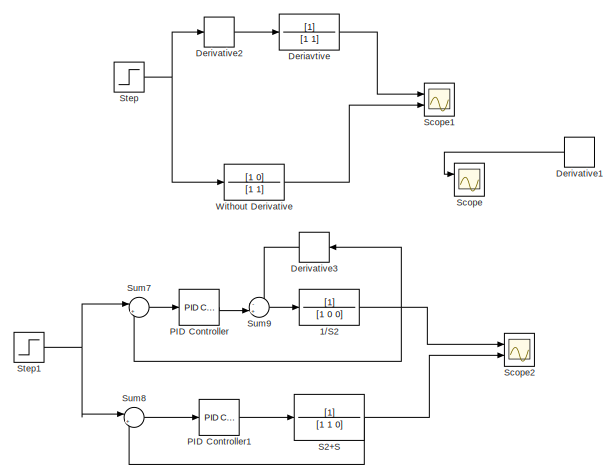
[diagram: root canvas - part 1/8, top center region]
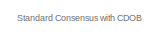
[diagram: root canvas - part 2/8, central region]
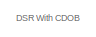
[diagram: root canvas - part 3/8, middle left region]
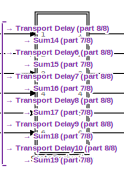
[diagram: root canvas - part 4/8, bottom left region]
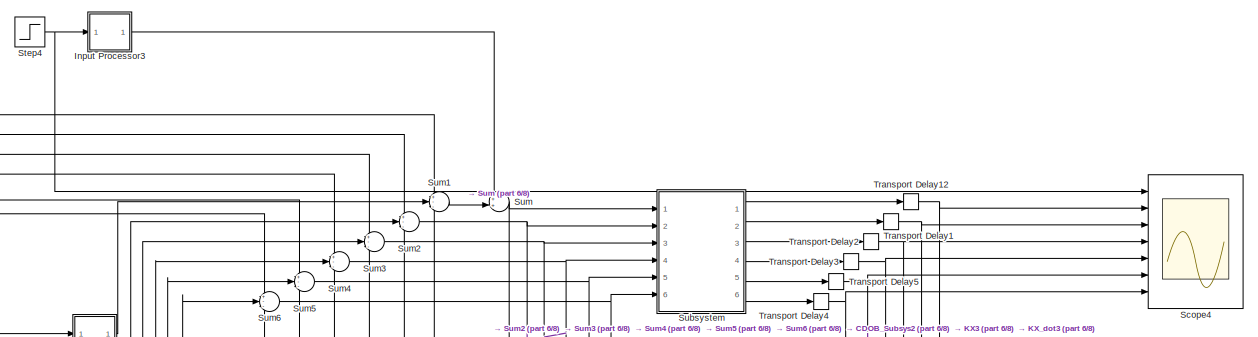
[diagram: root canvas - part 5/8, bottom right region]
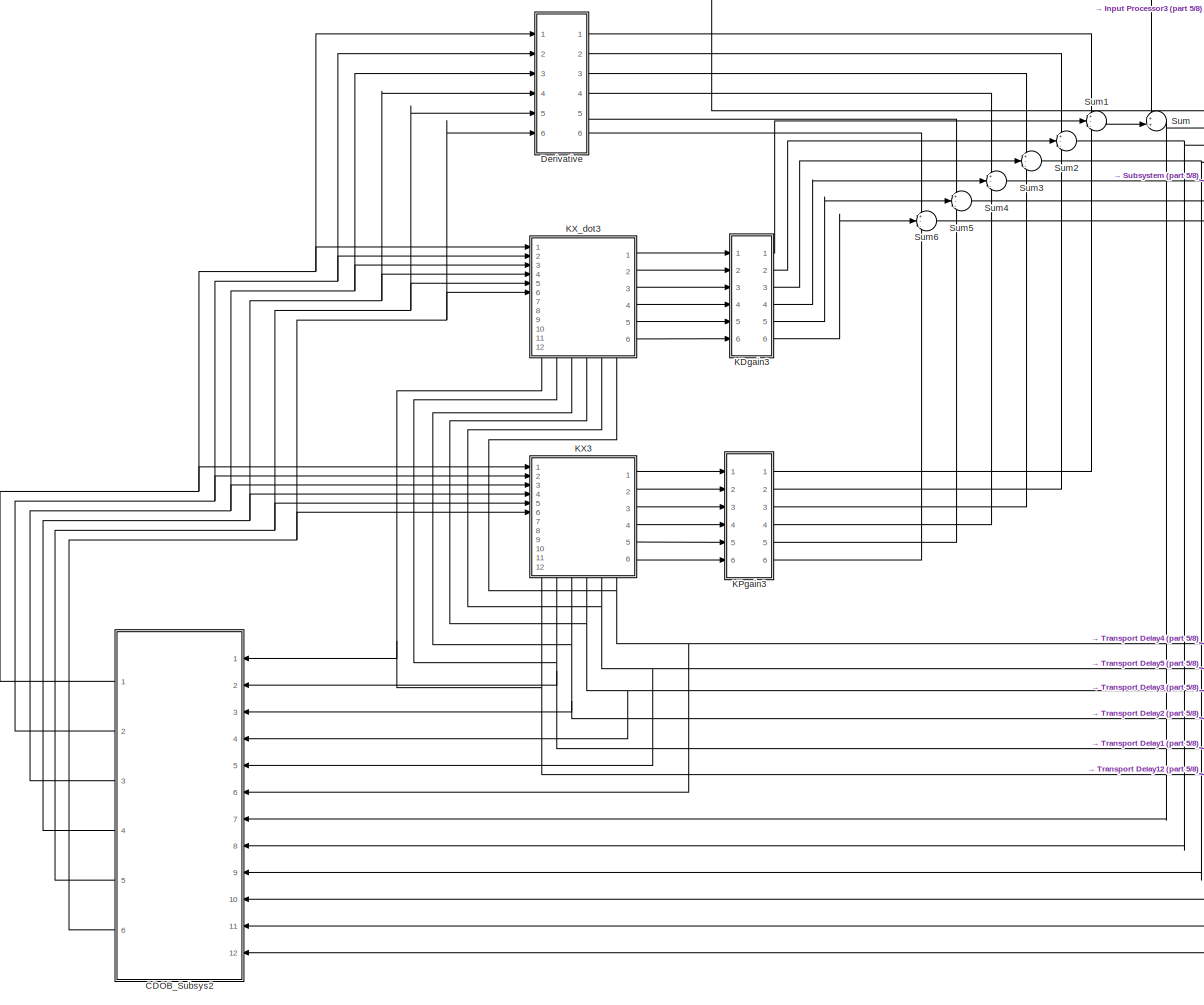
[diagram: root canvas - part 6/8, bottom right region]
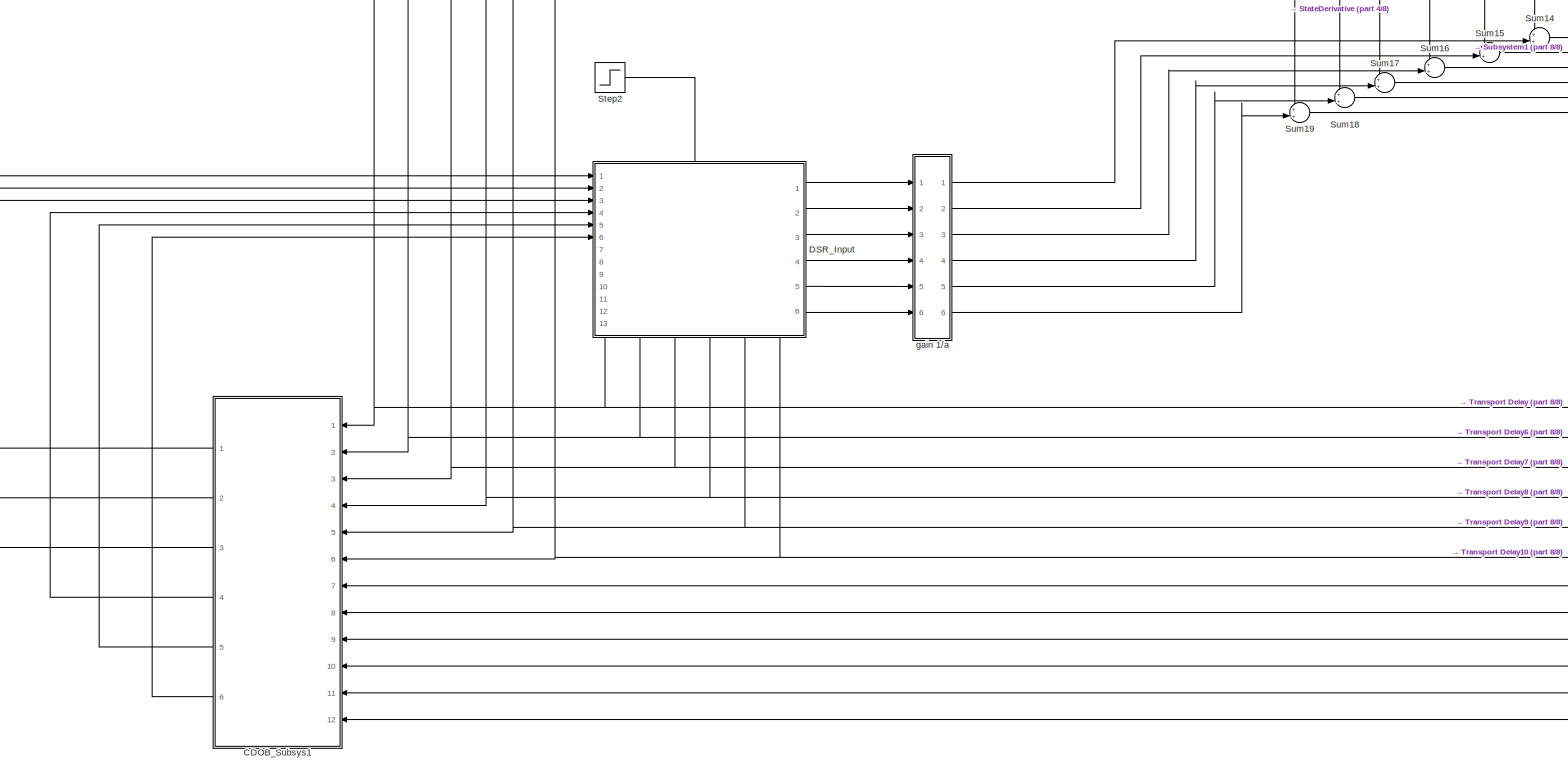
[diagram: root canvas - part 7/8, bottom left region]
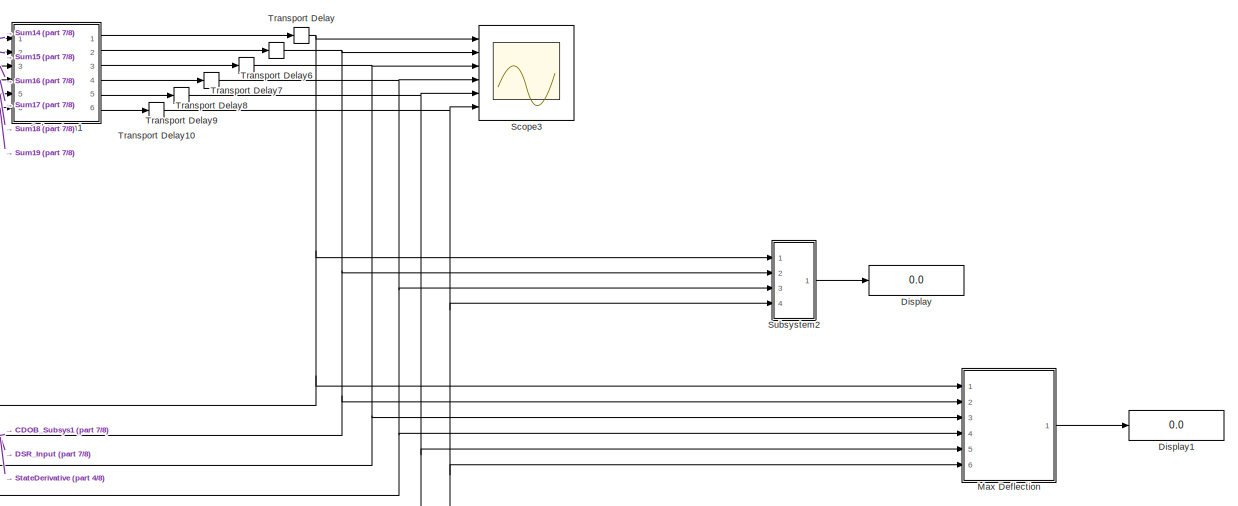
[diagram: root canvas - part 8/8, bottom center region]
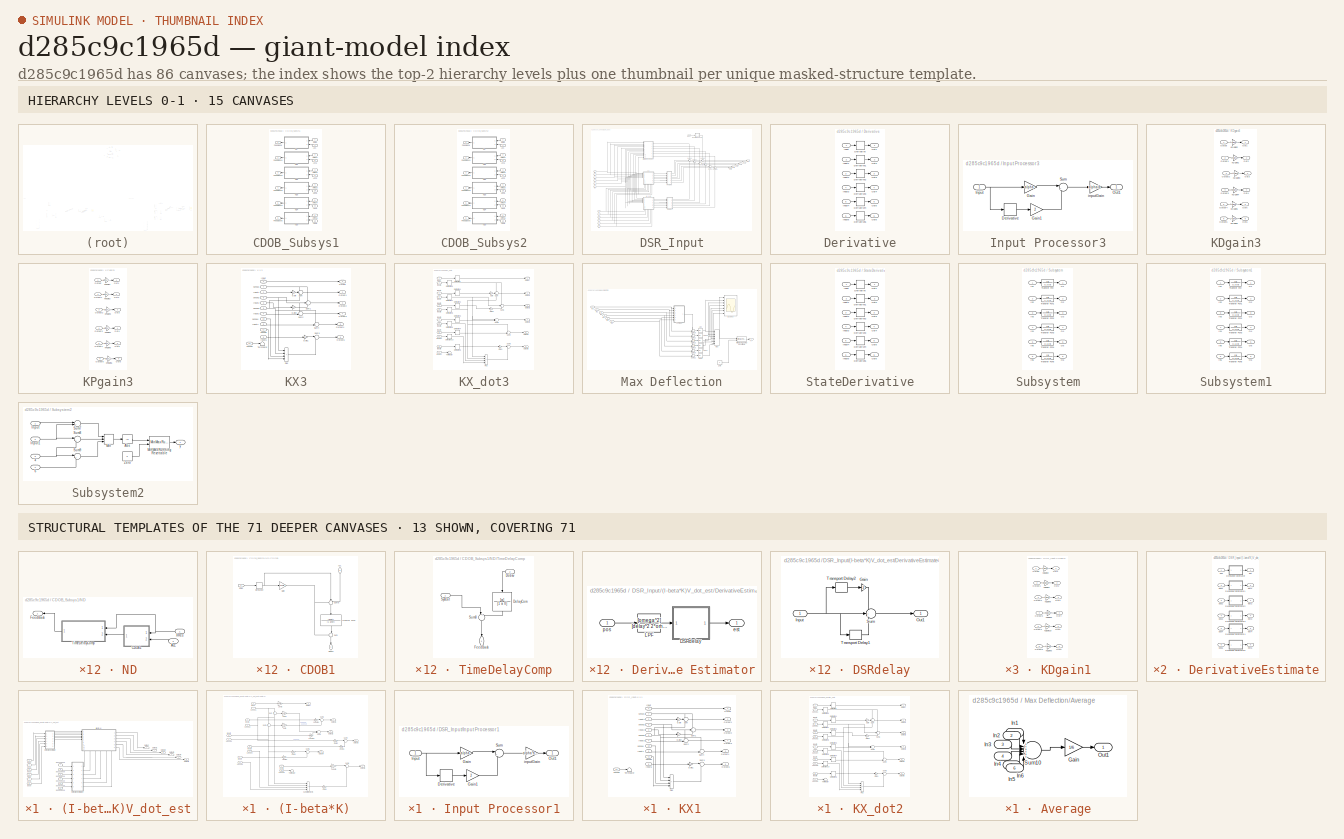
[diagram: thumbnail index - top-2 hierarchy levels (15 canvases) + 13 structural-template representatives of the remaining 71 canvases]
MODEL slx_d285c9c1965d
KIND model
CONFIG AbsTol = auto
CONFIG EnableMultiTasking = off
CONFIG FixedStep = auto
CONFIG MaxStep = auto
CONFIG MinStep = auto
CONFIG RelTol = 1e-3
CONFIG SampleTimeConstraint = Unconstrained
CONFIG SolverName = VariableStepAuto
CONFIG StartTime = 0.0
CONFIG StopTime = 8
BLOCK [TransferFcn]  Deriavtive
  Commented = on
  Denominator = [1 1]
BLOCK [TransferFcn] 1//S2
  Commented = on
  Denominator = [1 0 0]
BLOCK [SubSystem] CDOB_Subsys1
  NameLocation = top
  Ports = [12, 6]
  RequestExecContextInheritance = off
BLOCK [Inport] CDOB_Subsys1/Acc.
  Port = 7
BLOCK [Inport] CDOB_Subsys1/Acc.1
  Port = 8
BLOCK [Inport] CDOB_Subsys1/Acc.2
  Port = 9
BLOCK [Inport] CDOB_Subsys1/Acc.3
  Port = 10
BLOCK [Inport] CDOB_Subsys1/Acc.4
  Port = 11
BLOCK [Inport] CDOB_Subsys1/Acc.5
  Port = 12
BLOCK [Outport] CDOB_Subsys1/FeedBack
BLOCK [Outport] CDOB_Subsys1/FeedBack1
  Port = 2
BLOCK [Outport] CDOB_Subsys1/FeedBack2
  Port = 3
BLOCK [Outport] CDOB_Subsys1/FeedBack3
  Port = 4
BLOCK [Outport] CDOB_Subsys1/FeedBack4
  Port = 5
BLOCK [Outport] CDOB_Subsys1/FeedBack5
  Port = 6
BLOCK [SubSystem] CDOB_Subsys1/ND
  NameLocation = top
  Ports = [2, 1]
  RequestExecContextInheritance = off
BLOCK [Inport] CDOB_Subsys1/ND/Acc.
  Port = 2
BLOCK [SubSystem] CDOB_Subsys1/ND/CDOB1
  NameLocation = top
  Ports = [2, 1]
  RequestExecContextInheritance = off
BLOCK [Inport] CDOB_Subsys1/ND/CDOB1/Acc.
  NameLocation = left
  Port = 2
BLOCK [Derivative] CDOB_Subsys1/ND/CDOB1/Derivative
  CoefficientInTFapproximation = 0
BLOCK [Outport] CDOB_Subsys1/ND/CDOB1/Dobsv
  NameLocation = left
BLOCK [Gain] CDOB_Subsys1/ND/CDOB1/Gain
  Gain = gnet/a
BLOCK [Sum] CDOB_Subsys1/ND/CDOB1/Sum
  Inputs = -+|
  NameLocation = left
  Ports = [2, 1]
BLOCK [Sum] CDOB_Subsys1/ND/CDOB1/Sum8
  Inputs = +-+
  NameLocation = left
  Ports = [3, 1]
BLOCK [TransferFcn] CDOB_Subsys1/ND/CDOB1/Transfer Fcn2
  Denominator = [1 gnet]
  NameLocation = left
  Numerator = [gnet]
BLOCK [Inport] CDOB_Subsys1/ND/CDOB1/XRes
BLOCK [Outport] CDOB_Subsys1/ND/FeedBack
BLOCK [SubSystem] CDOB_Subsys1/ND/TimeDelayComp
  NameLocation = top
  Ports = [2, 1]
  RequestExecContextInheritance = off
BLOCK [TransferFcn] CDOB_Subsys1/ND/TimeDelayComp/DelayCom
  Denominator = [1 a 0]
  NameLocation = left
  Numerator = [a]
BLOCK [Inport] CDOB_Subsys1/ND/TimeDelayComp/Dobsv
  NameLocation = top
  Port = 2
BLOCK [Outport] CDOB_Subsys1/ND/TimeDelayComp/FeedBack
  NameLocation = left
BLOCK [Sum] CDOB_Subsys1/ND/TimeDelayComp/Sum8
  Inputs = |++
  NameLocation = left
  Ports = [2, 1]
BLOCK [Inport] CDOB_Subsys1/ND/TimeDelayComp/SysOut
BLOCK [Inport] CDOB_Subsys1/ND/XRes
BLOCK [SubSystem] CDOB_Subsys1/ND1
  NameLocation = top
  Ports = [2, 1]
  RequestExecContextInheritance = off
BLOCK [Inport] CDOB_Subsys1/ND1/Acc.
  Port = 2
BLOCK [SubSystem] CDOB_Subsys1/ND1/CDOB1
  NameLocation = top
  Ports = [2, 1]
  RequestExecContextInheritance = off
BLOCK [Inport] CDOB_Subsys1/ND1/CDOB1/Acc.
  NameLocation = left
  Port = 2
BLOCK [Derivative] CDOB_Subsys1/ND1/CDOB1/Derivative
  CoefficientInTFapproximation = 0
BLOCK [Outport] CDOB_Subsys1/ND1/CDOB1/Dobsv
  NameLocation = left
BLOCK [Gain] CDOB_Subsys1/ND1/CDOB1/Gain
  Gain = gnet/a
BLOCK [Sum] CDOB_Subsys1/ND1/CDOB1/Sum
  Inputs = -+|
  NameLocation = left
  Ports = [2, 1]
BLOCK [Sum] CDOB_Subsys1/ND1/CDOB1/Sum8
  Inputs = +-+
  NameLocation = left
  Ports = [3, 1]
BLOCK [TransferFcn] CDOB_Subsys1/ND1/CDOB1/Transfer Fcn2
  Denominator = [1 gnet]
  NameLocation = left
  Numerator = [gnet]
BLOCK [Inport] CDOB_Subsys1/ND1/CDOB1/XRes
BLOCK [Outport] CDOB_Subsys1/ND1/FeedBack
BLOCK [SubSystem] CDOB_Subsys1/ND1/TimeDelayComp
  NameLocation = top
  Ports = [2, 1]
  RequestExecContextInheritance = off
BLOCK [TransferFcn] CDOB_Subsys1/ND1/TimeDelayComp/DelayCom
  Denominator = [1 a 0]
  NameLocation = left
  Numerator = [a]
BLOCK [Inport] CDOB_Subsys1/ND1/TimeDelayComp/Dobsv
  NameLocation = top
  Port = 2
BLOCK [Outport] CDOB_Subsys1/ND1/TimeDelayComp/FeedBack
  NameLocation = left
BLOCK [Sum] CDOB_Subsys1/ND1/TimeDelayComp/Sum8
  Inputs = |++
  NameLocation = left
  Ports = [2, 1]
BLOCK [Inport] CDOB_Subsys1/ND1/TimeDelayComp/SysOut
BLOCK [Inport] CDOB_Subsys1/ND1/XRes
BLOCK [SubSystem] CDOB_Subsys1/ND2
  NameLocation = top
  Ports = [2, 1]
  RequestExecContextInheritance = off
BLOCK [Inport] CDOB_Subsys1/ND2/Acc.
  Port = 2
BLOCK [SubSystem] CDOB_Subsys1/ND2/CDOB1
  NameLocation = top
  Ports = [2, 1]
  RequestExecContextInheritance = off
BLOCK [Inport] CDOB_Subsys1/ND2/CDOB1/Acc.
  NameLocation = left
  Port = 2
BLOCK [Derivative] CDOB_Subsys1/ND2/CDOB1/Derivative
  CoefficientInTFapproximation = 0
BLOCK [Outport] CDOB_Subsys1/ND2/CDOB1/Dobsv
  NameLocation = left
BLOCK [Gain] CDOB_Subsys1/ND2/CDOB1/Gain
  Gain = gnet/a
BLOCK [Sum] CDOB_Subsys1/ND2/CDOB1/Sum
  Inputs = -+|
  NameLocation = left
  Ports = [2, 1]
BLOCK [Sum] CDOB_Subsys1/ND2/CDOB1/Sum8
  Inputs = +-+
  NameLocation = left
  Ports = [3, 1]
BLOCK [TransferFcn] CDOB_Subsys1/ND2/CDOB1/Transfer Fcn2
  Denominator = [1 gnet]
  NameLocation = left
  Numerator = [gnet]
BLOCK [Inport] CDOB_Subsys1/ND2/CDOB1/XRes
BLOCK [Outport] CDOB_Subsys1/ND2/FeedBack
BLOCK [SubSystem] CDOB_Subsys1/ND2/TimeDelayComp
  NameLocation = top
  Ports = [2, 1]
  RequestExecContextInheritance = off
BLOCK [TransferFcn] CDOB_Subsys1/ND2/TimeDelayComp/DelayCom
  Denominator = [1 a 0]
  NameLocation = left
  Numerator = [a]
BLOCK [Inport] CDOB_Subsys1/ND2/TimeDelayComp/Dobsv
  NameLocation = top
  Port = 2
BLOCK [Outport] CDOB_Subsys1/ND2/TimeDelayComp/FeedBack
  NameLocation = left
BLOCK [Sum] CDOB_Subsys1/ND2/TimeDelayComp/Sum8
  Inputs = |++
  NameLocation = left
  Ports = [2, 1]
BLOCK [Inport] CDOB_Subsys1/ND2/TimeDelayComp/SysOut
BLOCK [Inport] CDOB_Subsys1/ND2/XRes
BLOCK [SubSystem] CDOB_Subsys1/ND3
  NameLocation = top
  Ports = [2, 1]
  RequestExecContextInheritance = off
BLOCK [Inport] CDOB_Subsys1/ND3/Acc.
  Port = 2
BLOCK [SubSystem] CDOB_Subsys1/ND3/CDOB1
  NameLocation = top
  Ports = [2, 1]
  RequestExecContextInheritance = off
BLOCK [Inport] CDOB_Subsys1/ND3/CDOB1/Acc.
  NameLocation = left
  Port = 2
BLOCK [Derivative] CDOB_Subsys1/ND3/CDOB1/Derivative
  CoefficientInTFapproximation = 0
BLOCK [Outport] CDOB_Subsys1/ND3/CDOB1/Dobsv
  NameLocation = left
BLOCK [Gain] CDOB_Subsys1/ND3/CDOB1/Gain
  Gain = gnet/a
BLOCK [Sum] CDOB_Subsys1/ND3/CDOB1/Sum
  Inputs = -+|
  NameLocation = left
  Ports = [2, 1]
BLOCK [Sum] CDOB_Subsys1/ND3/CDOB1/Sum8
  Inputs = +-+
  NameLocation = left
  Ports = [3, 1]
BLOCK [TransferFcn] CDOB_Subsys1/ND3/CDOB1/Transfer Fcn2
  Denominator = [1 gnet]
  NameLocation = left
  Numerator = [gnet]
BLOCK [Inport] CDOB_Subsys1/ND3/CDOB1/XRes
BLOCK [Outport] CDOB_Subsys1/ND3/FeedBack
BLOCK [SubSystem] CDOB_Subsys1/ND3/TimeDelayComp
  NameLocation = top
  Ports = [2, 1]
  RequestExecContextInheritance = off
BLOCK [TransferFcn] CDOB_Subsys1/ND3/TimeDelayComp/DelayCom
  Denominator = [1 a 0]
  NameLocation = left
  Numerator = [a]
BLOCK [Inport] CDOB_Subsys1/ND3/TimeDelayComp/Dobsv
  NameLocation = top
  Port = 2
BLOCK [Outport] CDOB_Subsys1/ND3/TimeDelayComp/FeedBack
  NameLocation = left
BLOCK [Sum] CDOB_Subsys1/ND3/TimeDelayComp/Sum8
  Inputs = |++
  NameLocation = left
  Ports = [2, 1]
BLOCK [Inport] CDOB_Subsys1/ND3/TimeDelayComp/SysOut
BLOCK [Inport] CDOB_Subsys1/ND3/XRes
BLOCK [SubSystem] CDOB_Subsys1/ND4
  NameLocation = top
  Ports = [2, 1]
  RequestExecContextInheritance = off
BLOCK [Inport] CDOB_Subsys1/ND4/Acc.
  Port = 2
BLOCK [SubSystem] CDOB_Subsys1/ND4/CDOB1
  NameLocation = top
  Ports = [2, 1]
  RequestExecContextInheritance = off
BLOCK [Inport] CDOB_Subsys1/ND4/CDOB1/Acc.
  NameLocation = left
  Port = 2
BLOCK [Derivative] CDOB_Subsys1/ND4/CDOB1/Derivative
  CoefficientInTFapproximation = 0
BLOCK [Outport] CDOB_Subsys1/ND4/CDOB1/Dobsv
  NameLocation = left
BLOCK [Gain] CDOB_Subsys1/ND4/CDOB1/Gain
  Gain = gnet/a
BLOCK [Sum] CDOB_Subsys1/ND4/CDOB1/Sum
  Inputs = -+|
  NameLocation = left
  Ports = [2, 1]
BLOCK [Sum] CDOB_Subsys1/ND4/CDOB1/Sum8
  Inputs = +-+
  NameLocation = left
  Ports = [3, 1]
BLOCK [TransferFcn] CDOB_Subsys1/ND4/CDOB1/Transfer Fcn2
  Denominator = [1 gnet]
  NameLocation = left
  Numerator = [gnet]
BLOCK [Inport] CDOB_Subsys1/ND4/CDOB1/XRes
BLOCK [Outport] CDOB_Subsys1/ND4/FeedBack
BLOCK [SubSystem] CDOB_Subsys1/ND4/TimeDelayComp
  NameLocation = top
  Ports = [2, 1]
  RequestExecContextInheritance = off
BLOCK [TransferFcn] CDOB_Subsys1/ND4/TimeDelayComp/DelayCom
  Denominator = [1 a 0]
  NameLocation = left
  Numerator = [a]
BLOCK [Inport] CDOB_Subsys1/ND4/TimeDelayComp/Dobsv
  NameLocation = top
  Port = 2
BLOCK [Outport] CDOB_Subsys1/ND4/TimeDelayComp/FeedBack
  NameLocation = left
BLOCK [Sum] CDOB_Subsys1/ND4/TimeDelayComp/Sum8
  Inputs = |++
  NameLocation = left
  Ports = [2, 1]
BLOCK [Inport] CDOB_Subsys1/ND4/TimeDelayComp/SysOut
BLOCK [Inport] CDOB_Subsys1/ND4/XRes
BLOCK [SubSystem] CDOB_Subsys1/ND5
  NameLocation = top
  Ports = [2, 1]
  RequestExecContextInheritance = off
BLOCK [Inport] CDOB_Subsys1/ND5/Acc.
  Port = 2
BLOCK [SubSystem] CDOB_Subsys1/ND5/CDOB1
  NameLocation = top
  Ports = [2, 1]
  RequestExecContextInheritance = off
BLOCK [Inport] CDOB_Subsys1/ND5/CDOB1/Acc.
  NameLocation = left
  Port = 2
BLOCK [Derivative] CDOB_Subsys1/ND5/CDOB1/Derivative
  CoefficientInTFapproximation = 0
BLOCK [Outport] CDOB_Subsys1/ND5/CDOB1/Dobsv
  NameLocation = left
BLOCK [Gain] CDOB_Subsys1/ND5/CDOB1/Gain
  Gain = gnet/a
BLOCK [Sum] CDOB_Subsys1/ND5/CDOB1/Sum
  Inputs = -+|
  NameLocation = left
  Ports = [2, 1]
BLOCK [Sum] CDOB_Subsys1/ND5/CDOB1/Sum8
  Inputs = +-+
  NameLocation = left
  Ports = [3, 1]
BLOCK [TransferFcn] CDOB_Subsys1/ND5/CDOB1/Transfer Fcn2
  Denominator = [1 gnet]
  NameLocation = left
  Numerator = [gnet]
BLOCK [Inport] CDOB_Subsys1/ND5/CDOB1/XRes
BLOCK [Outport] CDOB_Subsys1/ND5/FeedBack
BLOCK [SubSystem] CDOB_Subsys1/ND5/TimeDelayComp
  NameLocation = top
  Ports = [2, 1]
  RequestExecContextInheritance = off
BLOCK [TransferFcn] CDOB_Subsys1/ND5/TimeDelayComp/DelayCom
  Denominator = [1 a 0]
  NameLocation = left
  Numerator = [a]
BLOCK [Inport] CDOB_Subsys1/ND5/TimeDelayComp/Dobsv
  NameLocation = top
  Port = 2
BLOCK [Outport] CDOB_Subsys1/ND5/TimeDelayComp/FeedBack
  NameLocation = left
BLOCK [Sum] CDOB_Subsys1/ND5/TimeDelayComp/Sum8
  Inputs = |++
  NameLocation = left
  Ports = [2, 1]
BLOCK [Inport] CDOB_Subsys1/ND5/TimeDelayComp/SysOut
BLOCK [Inport] CDOB_Subsys1/ND5/XRes
BLOCK [Inport] CDOB_Subsys1/XRes
BLOCK [Inport] CDOB_Subsys1/XRes1
  Port = 2
BLOCK [Inport] CDOB_Subsys1/XRes2
  Port = 3
BLOCK [Inport] CDOB_Subsys1/XRes3
  Port = 4
BLOCK [Inport] CDOB_Subsys1/XRes4
  Port = 5
BLOCK [Inport] CDOB_Subsys1/XRes5
  Port = 6
BLOCK [SubSystem] CDOB_Subsys2
  NameLocation = top
  Ports = [12, 6]
  RequestExecContextInheritance = off
BLOCK [Inport] CDOB_Subsys2/Acc.
  Port = 7
BLOCK [Inport] CDOB_Subsys2/Acc.1
  Port = 8
BLOCK [Inport] CDOB_Subsys2/Acc.2
  Port = 9
BLOCK [Inport] CDOB_Subsys2/Acc.3
  Port = 10
BLOCK [Inport] CDOB_Subsys2/Acc.4
  Port = 11
BLOCK [Inport] CDOB_Subsys2/Acc.5
  Port = 12
BLOCK [Outport] CDOB_Subsys2/FeedBack
BLOCK [Outport] CDOB_Subsys2/FeedBack1
  Port = 2
BLOCK [Outport] CDOB_Subsys2/FeedBack2
  Port = 3
BLOCK [Outport] CDOB_Subsys2/FeedBack3
  Port = 4
BLOCK [Outport] CDOB_Subsys2/FeedBack4
  Port = 5
BLOCK [Outport] CDOB_Subsys2/FeedBack5
  Port = 6
BLOCK [SubSystem] CDOB_Subsys2/ND
  NameLocation = top
  Ports = [2, 1]
  RequestExecContextInheritance = off
BLOCK [Inport] CDOB_Subsys2/ND/Acc.
  Port = 2
BLOCK [SubSystem] CDOB_Subsys2/ND/CDOB1
  NameLocation = top
  Ports = [2, 1]
  RequestExecContextInheritance = off
BLOCK [Inport] CDOB_Subsys2/ND/CDOB1/Acc.
  NameLocation = left
  Port = 2
BLOCK [Derivative] CDOB_Subsys2/ND/CDOB1/Derivative
  CoefficientInTFapproximation = 0
BLOCK [Outport] CDOB_Subsys2/ND/CDOB1/Dobsv
  NameLocation = left
BLOCK [Gain] CDOB_Subsys2/ND/CDOB1/Gain
  Gain = gnet/a
BLOCK [Sum] CDOB_Subsys2/ND/CDOB1/Sum
  Inputs = -+|
  NameLocation = left
  Ports = [2, 1]
BLOCK [Sum] CDOB_Subsys2/ND/CDOB1/Sum8
  Inputs = +-+
  NameLocation = left
  Ports = [3, 1]
BLOCK [TransferFcn] CDOB_Subsys2/ND/CDOB1/Transfer Fcn2
  Denominator = [1 gnet]
  NameLocation = left
  Numerator = [gnet]
BLOCK [Inport] CDOB_Subsys2/ND/CDOB1/XRes
BLOCK [Outport] CDOB_Subsys2/ND/FeedBack
BLOCK [SubSystem] CDOB_Subsys2/ND/TimeDelayComp
  NameLocation = top
  Ports = [2, 1]
  RequestExecContextInheritance = off
BLOCK [TransferFcn] CDOB_Subsys2/ND/TimeDelayComp/DelayCom
  Denominator = [1 a 0]
  NameLocation = left
  Numerator = [a]
BLOCK [Inport] CDOB_Subsys2/ND/TimeDelayComp/Dobsv
  NameLocation = top
  Port = 2
BLOCK [Outport] CDOB_Subsys2/ND/TimeDelayComp/FeedBack
  NameLocation = left
BLOCK [Sum] CDOB_Subsys2/ND/TimeDelayComp/Sum8
  Inputs = |++
  NameLocation = left
  Ports = [2, 1]
BLOCK [Inport] CDOB_Subsys2/ND/TimeDelayComp/SysOut
BLOCK [Inport] CDOB_Subsys2/ND/XRes
BLOCK [SubSystem] CDOB_Subsys2/ND1
  NameLocation = top
  Ports = [2, 1]
  RequestExecContextInheritance = off
BLOCK [Inport] CDOB_Subsys2/ND1/Acc.
  Port = 2
BLOCK [SubSystem] CDOB_Subsys2/ND1/CDOB1
  NameLocation = top
  Ports = [2, 1]
  RequestExecContextInheritance = off
BLOCK [Inport] CDOB_Subsys2/ND1/CDOB1/Acc.
  NameLocation = left
  Port = 2
BLOCK [Derivative] CDOB_Subsys2/ND1/CDOB1/Derivative
  CoefficientInTFapproximation = 0
BLOCK [Outport] CDOB_Subsys2/ND1/CDOB1/Dobsv
  NameLocation = left
BLOCK [Gain] CDOB_Subsys2/ND1/CDOB1/Gain
  Gain = gnet/a
BLOCK [Sum] CDOB_Subsys2/ND1/CDOB1/Sum
  Inputs = -+|
  NameLocation = left
  Ports = [2, 1]
BLOCK [Sum] CDOB_Subsys2/ND1/CDOB1/Sum8
  Inputs = +-+
  NameLocation = left
  Ports = [3, 1]
BLOCK [TransferFcn] CDOB_Subsys2/ND1/CDOB1/Transfer Fcn2
  Denominator = [1 gnet]
  NameLocation = left
  Numerator = [gnet]
BLOCK [Inport] CDOB_Subsys2/ND1/CDOB1/XRes
BLOCK [Outport] CDOB_Subsys2/ND1/FeedBack
BLOCK [SubSystem] CDOB_Subsys2/ND1/TimeDelayComp
  NameLocation = top
  Ports = [2, 1]
  RequestExecContextInheritance = off
BLOCK [TransferFcn] CDOB_Subsys2/ND1/TimeDelayComp/DelayCom
  Denominator = [1 a 0]
  NameLocation = left
  Numerator = [a]
BLOCK [Inport] CDOB_Subsys2/ND1/TimeDelayComp/Dobsv
  NameLocation = top
  Port = 2
BLOCK [Outport] CDOB_Subsys2/ND1/TimeDelayComp/FeedBack
  NameLocation = left
BLOCK [Sum] CDOB_Subsys2/ND1/TimeDelayComp/Sum8
  Inputs = |++
  NameLocation = left
  Ports = [2, 1]
BLOCK [Inport] CDOB_Subsys2/ND1/TimeDelayComp/SysOut
BLOCK [Inport] CDOB_Subsys2/ND1/XRes
BLOCK [SubSystem] CDOB_Subsys2/ND2
  NameLocation = top
  Ports = [2, 1]
  RequestExecContextInheritance = off
BLOCK [Inport] CDOB_Subsys2/ND2/Acc.
  Port = 2
BLOCK [SubSystem] CDOB_Subsys2/ND2/CDOB1
  NameLocation = top
  Ports = [2, 1]
  RequestExecContextInheritance = off
BLOCK [Inport] CDOB_Subsys2/ND2/CDOB1/Acc.
  NameLocation = left
  Port = 2
BLOCK [Derivative] CDOB_Subsys2/ND2/CDOB1/Derivative
  CoefficientInTFapproximation = 0
BLOCK [Outport] CDOB_Subsys2/ND2/CDOB1/Dobsv
  NameLocation = left
BLOCK [Gain] CDOB_Subsys2/ND2/CDOB1/Gain
  Gain = gnet/a
BLOCK [Sum] CDOB_Subsys2/ND2/CDOB1/Sum
  Inputs = -+|
  NameLocation = left
  Ports = [2, 1]
BLOCK [Sum] CDOB_Subsys2/ND2/CDOB1/Sum8
  Inputs = +-+
  NameLocation = left
  Ports = [3, 1]
BLOCK [TransferFcn] CDOB_Subsys2/ND2/CDOB1/Transfer Fcn2
  Denominator = [1 gnet]
  NameLocation = left
  Numerator = [gnet]
BLOCK [Inport] CDOB_Subsys2/ND2/CDOB1/XRes
BLOCK [Outport] CDOB_Subsys2/ND2/FeedBack
BLOCK [SubSystem] CDOB_Subsys2/ND2/TimeDelayComp
  NameLocation = top
  Ports = [2, 1]
  RequestExecContextInheritance = off
BLOCK [TransferFcn] CDOB_Subsys2/ND2/TimeDelayComp/DelayCom
  Denominator = [1 a 0]
  NameLocation = left
  Numerator = [a]
BLOCK [Inport] CDOB_Subsys2/ND2/TimeDelayComp/Dobsv
  NameLocation = top
  Port = 2
BLOCK [Outport] CDOB_Subsys2/ND2/TimeDelayComp/FeedBack
  NameLocation = left
BLOCK [Sum] CDOB_Subsys2/ND2/TimeDelayComp/Sum8
  Inputs = |++
  NameLocation = left
  Ports = [2, 1]
BLOCK [Inport] CDOB_Subsys2/ND2/TimeDelayComp/SysOut
BLOCK [Inport] CDOB_Subsys2/ND2/XRes
BLOCK [SubSystem] CDOB_Subsys2/ND3
  NameLocation = top
  Ports = [2, 1]
  RequestExecContextInheritance = off
BLOCK [Inport] CDOB_Subsys2/ND3/Acc.
  Port = 2
BLOCK [SubSystem] CDOB_Subsys2/ND3/CDOB1
  NameLocation = top
  Ports = [2, 1]
  RequestExecContextInheritance = off
BLOCK [Inport] CDOB_Subsys2/ND3/CDOB1/Acc.
  NameLocation = left
  Port = 2
BLOCK [Derivative] CDOB_Subsys2/ND3/CDOB1/Derivative
  CoefficientInTFapproximation = 0
BLOCK [Outport] CDOB_Subsys2/ND3/CDOB1/Dobsv
  NameLocation = left
BLOCK [Gain] CDOB_Subsys2/ND3/CDOB1/Gain
  Gain = gnet/a
BLOCK [Sum] CDOB_Subsys2/ND3/CDOB1/Sum
  Inputs = -+|
  NameLocation = left
  Ports = [2, 1]
BLOCK [Sum] CDOB_Subsys2/ND3/CDOB1/Sum8
  Inputs = +-+
  NameLocation = left
  Ports = [3, 1]
BLOCK [TransferFcn] CDOB_Subsys2/ND3/CDOB1/Transfer Fcn2
  Denominator = [1 gnet]
  NameLocation = left
  Numerator = [gnet]
BLOCK [Inport] CDOB_Subsys2/ND3/CDOB1/XRes
BLOCK [Outport] CDOB_Subsys2/ND3/FeedBack
BLOCK [SubSystem] CDOB_Subsys2/ND3/TimeDelayComp
  NameLocation = top
  Ports = [2, 1]
  RequestExecContextInheritance = off
BLOCK [TransferFcn] CDOB_Subsys2/ND3/TimeDelayComp/DelayCom
  Denominator = [1 a 0]
  NameLocation = left
  Numerator = [a]
BLOCK [Inport] CDOB_Subsys2/ND3/TimeDelayComp/Dobsv
  NameLocation = top
  Port = 2
BLOCK [Outport] CDOB_Subsys2/ND3/TimeDelayComp/FeedBack
  NameLocation = left
BLOCK [Sum] CDOB_Subsys2/ND3/TimeDelayComp/Sum8
  Inputs = |++
  NameLocation = left
  Ports = [2, 1]
BLOCK [Inport] CDOB_Subsys2/ND3/TimeDelayComp/SysOut
BLOCK [Inport] CDOB_Subsys2/ND3/XRes
BLOCK [SubSystem] CDOB_Subsys2/ND4
  NameLocation = top
  Ports = [2, 1]
  RequestExecContextInheritance = off
BLOCK [Inport] CDOB_Subsys2/ND4/Acc.
  Port = 2
BLOCK [SubSystem] CDOB_Subsys2/ND4/CDOB1
  NameLocation = top
  Ports = [2, 1]
  RequestExecContextInheritance = off
BLOCK [Inport] CDOB_Subsys2/ND4/CDOB1/Acc.
  NameLocation = left
  Port = 2
BLOCK [Derivative] CDOB_Subsys2/ND4/CDOB1/Derivative
  CoefficientInTFapproximation = 0
BLOCK [Outport] CDOB_Subsys2/ND4/CDOB1/Dobsv
  NameLocation = left
BLOCK [Gain] CDOB_Subsys2/ND4/CDOB1/Gain
  Gain = gnet/a
BLOCK [Sum] CDOB_Subsys2/ND4/CDOB1/Sum
  Inputs = -+|
  NameLocation = left
  Ports = [2, 1]
BLOCK [Sum] CDOB_Subsys2/ND4/CDOB1/Sum8
  Inputs = +-+
  NameLocation = left
  Ports = [3, 1]
BLOCK [TransferFcn] CDOB_Subsys2/ND4/CDOB1/Transfer Fcn2
  Denominator = [1 gnet]
  NameLocation = left
  Numerator = [gnet]
BLOCK [Inport] CDOB_Subsys2/ND4/CDOB1/XRes
BLOCK [Outport] CDOB_Subsys2/ND4/FeedBack
BLOCK [SubSystem] CDOB_Subsys2/ND4/TimeDelayComp
  NameLocation = top
  Ports = [2, 1]
  RequestExecContextInheritance = off
BLOCK [TransferFcn] CDOB_Subsys2/ND4/TimeDelayComp/DelayCom
  Denominator = [1 a 0]
  NameLocation = left
  Numerator = [a]
BLOCK [Inport] CDOB_Subsys2/ND4/TimeDelayComp/Dobsv
  NameLocation = top
  Port = 2
BLOCK [Outport] CDOB_Subsys2/ND4/TimeDelayComp/FeedBack
  NameLocation = left
BLOCK [Sum] CDOB_Subsys2/ND4/TimeDelayComp/Sum8
  Inputs = |++
  NameLocation = left
  Ports = [2, 1]
BLOCK [Inport] CDOB_Subsys2/ND4/TimeDelayComp/SysOut
BLOCK [Inport] CDOB_Subsys2/ND4/XRes
BLOCK [SubSystem] CDOB_Subsys2/ND5
  NameLocation = top
  Ports = [2, 1]
  RequestExecContextInheritance = off
BLOCK [Inport] CDOB_Subsys2/ND5/Acc.
  Port = 2
BLOCK [SubSystem] CDOB_Subsys2/ND5/CDOB1
  NameLocation = top
  Ports = [2, 1]
  RequestExecContextInheritance = off
BLOCK [Inport] CDOB_Subsys2/ND5/CDOB1/Acc.
  NameLocation = left
  Port = 2
BLOCK [Derivative] CDOB_Subsys2/ND5/CDOB1/Derivative
  CoefficientInTFapproximation = 0
BLOCK [Outport] CDOB_Subsys2/ND5/CDOB1/Dobsv
  NameLocation = left
BLOCK [Gain] CDOB_Subsys2/ND5/CDOB1/Gain
  Gain = gnet/a
BLOCK [Sum] CDOB_Subsys2/ND5/CDOB1/Sum
  Inputs = -+|
  NameLocation = left
  Ports = [2, 1]
BLOCK [Sum] CDOB_Subsys2/ND5/CDOB1/Sum8
  Inputs = +-+
  NameLocation = left
  Ports = [3, 1]
BLOCK [TransferFcn] CDOB_Subsys2/ND5/CDOB1/Transfer Fcn2
  Denominator = [1 gnet]
  NameLocation = left
  Numerator = [gnet]
BLOCK [Inport] CDOB_Subsys2/ND5/CDOB1/XRes
BLOCK [Outport] CDOB_Subsys2/ND5/FeedBack
BLOCK [SubSystem] CDOB_Subsys2/ND5/TimeDelayComp
  NameLocation = top
  Ports = [2, 1]
  RequestExecContextInheritance = off
BLOCK [TransferFcn] CDOB_Subsys2/ND5/TimeDelayComp/DelayCom
  Denominator = [1 a 0]
  NameLocation = left
  Numerator = [a]
BLOCK [Inport] CDOB_Subsys2/ND5/TimeDelayComp/Dobsv
  NameLocation = top
  Port = 2
BLOCK [Outport] CDOB_Subsys2/ND5/TimeDelayComp/FeedBack
  NameLocation = left
BLOCK [Sum] CDOB_Subsys2/ND5/TimeDelayComp/Sum8
  Inputs = |++
  NameLocation = left
  Ports = [2, 1]
BLOCK [Inport] CDOB_Subsys2/ND5/TimeDelayComp/SysOut
BLOCK [Inport] CDOB_Subsys2/ND5/XRes
BLOCK [Inport] CDOB_Subsys2/XRes
BLOCK [Inport] CDOB_Subsys2/XRes1
  Port = 2
BLOCK [Inport] CDOB_Subsys2/XRes2
  Port = 3
BLOCK [Inport] CDOB_Subsys2/XRes3
  Port = 4
BLOCK [Inport] CDOB_Subsys2/XRes4
  Port = 5
BLOCK [Inport] CDOB_Subsys2/XRes5
  Port = 6
BLOCK [SubSystem] DSR_Input
  NameLocation = top
  PortSchema = {"entries":[{"content":{"sides":[{"content":{"connectorIds":["In1","In2","In3","In4","In5","In6"]},"type":"ConnectorPlacement.EquallySpacedRectSide","uuid":"7b8a38d4-2828-429e-a347-8750a0874c90"},{"content":{"connectorIds":["Out1","Out2","Out3","Out4","Out5","Out6"],"side":"RIGHT"},"type":"ConnectorPlacement.EquallySpacedRectSide","uuid":"f1dcdaa7-0a93-43e2-be3b-ce942cee3b23"},{"content":{"connect...<+493ch>
  Ports = [13, 6]
  RequestExecContextInheritance = off
BLOCK [SubSystem] DSR_Input/(I-beta*K)V_dot_est
  Ports = [12, 6]
  RequestExecContextInheritance = off
BLOCK [SubSystem] DSR_Input/(I-beta*K)V_dot_est/(I-beta*K)
  NameLocation = top
  PortSchema = {"entries":[{"content":{"sides":[{"content":{"connectorIds":["In1","In2","In3","In4","In5","In6"]},"type":"ConnectorPlacement.EquallySpacedRectSide","uuid":"24ff0189-2e26-4de2-9c90-2043606e3d63"},{"content":{"connectorIds":["Out1","Out2","Out3","Out4","Out5","Out6"],"side":"RIGHT"},"type":"ConnectorPlacement.EquallySpacedRectSide","uuid":"7efe01dd-8101-429e-adc6-a10b45356e48"},{"content":{"connect...<+487ch>  <repeated x5 — deduplicated; at blocks: (I-beta*K), KX1, KX_dot2, KX3, KX_dot3>
  Ports = [12, 6]
  RequestExecContextInheritance = off
BLOCK [Gain] DSR_Input/(I-beta*K)V_dot_est/(I-beta*K)/1-2beta1
  Gain = 1-2*betac
BLOCK [Gain] DSR_Input/(I-beta*K)V_dot_est/(I-beta*K)/1-2beta2
  Gain = 1-2*betac
BLOCK [Gain] DSR_Input/(I-beta*K)V_dot_est/(I-beta*K)/1-4beta
  Gain = 1-4*betac
BLOCK [Gain] DSR_Input/(I-beta*K)V_dot_est/(I-beta*K)/1-beta
  Gain = 1-betac
BLOCK [Gain] DSR_Input/(I-beta*K)V_dot_est/(I-beta*K)/1-beta1
  Gain = 1-betac
BLOCK [Gain] DSR_Input/(I-beta*K)V_dot_est/(I-beta*K)/1-beta2
  Gain = 1-betac
BLOCK [Inport] DSR_Input/(I-beta*K)V_dot_est/(I-beta*K)/Input
BLOCK [Inport] DSR_Input/(I-beta*K)V_dot_est/(I-beta*K)/Input1
  Port = 2
BLOCK [Inport] DSR_Input/(I-beta*K)V_dot_est/(I-beta*K)/Input2
  Port = 3
BLOCK [Inport] DSR_Input/(I-beta*K)V_dot_est/(I-beta*K)/Input3
  Port = 4
BLOCK [Inport] DSR_Input/(I-beta*K)V_dot_est/(I-beta*K)/Input4
  Port = 5
BLOCK [Inport] DSR_Input/(I-beta*K)V_dot_est/(I-beta*K)/Input5
  Port = 6
BLOCK [Outport] DSR_Input/(I-beta*K)V_dot_est/(I-beta*K)/Output
BLOCK [Outport] DSR_Input/(I-beta*K)V_dot_est/(I-beta*K)/Output1
  Port = 2
BLOCK [Outport] DSR_Input/(I-beta*K)V_dot_est/(I-beta*K)/Output2
  Port = 3
BLOCK [Outport] DSR_Input/(I-beta*K)V_dot_est/(I-beta*K)/Output3
  Port = 4
BLOCK [Outport] DSR_Input/(I-beta*K)V_dot_est/(I-beta*K)/Output4
  Port = 5
BLOCK [Outport] DSR_Input/(I-beta*K)V_dot_est/(I-beta*K)/Output5
  Port = 6
BLOCK [Sum] DSR_Input/(I-beta*K)V_dot_est/(I-beta*K)/Sum
  Inputs = +|+
  Ports = [2, 1]
BLOCK [Sum] DSR_Input/(I-beta*K)V_dot_est/(I-beta*K)/Sum of Elements
  IconShape = rectangular
  Inputs = ++++
  Ports = [4, 1]
BLOCK [Sum] DSR_Input/(I-beta*K)V_dot_est/(I-beta*K)/Sum1
  Inputs = +|+
  Ports = [2, 1]
BLOCK [Sum] DSR_Input/(I-beta*K)V_dot_est/(I-beta*K)/Sum2
  Inputs = |++
  Ports = [2, 1]
BLOCK [Sum] DSR_Input/(I-beta*K)V_dot_est/(I-beta*K)/Sum3
  Inputs = |++
  Ports = [2, 1]
BLOCK [Sum] DSR_Input/(I-beta*K)V_dot_est/(I-beta*K)/Sum4
  Inputs = |++
  Ports = [2, 1]
BLOCK [Sum] DSR_Input/(I-beta*K)V_dot_est/(I-beta*K)/Sum5
  Inputs = |++
  Ports = [2, 1]
BLOCK [Sum] DSR_Input/(I-beta*K)V_dot_est/(I-beta*K)/Sum6
  Inputs = |++
  Ports = [2, 1]
BLOCK [Terminator] DSR_Input/(I-beta*K)V_dot_est/(I-beta*K)/Terminator
BLOCK [Gain] DSR_Input/(I-beta*K)V_dot_est/(I-beta*K)/beta
  Gain = betac
BLOCK [Gain] DSR_Input/(I-beta*K)V_dot_est/(I-beta*K)/beta1
  Gain = betac
BLOCK [Gain] DSR_Input/(I-beta*K)V_dot_est/(I-beta*K)/beta2
  Gain = betac
BLOCK [Gain] DSR_Input/(I-beta*K)V_dot_est/(I-beta*K)/beta3
  Gain = betac
BLOCK [Gain] DSR_Input/(I-beta*K)V_dot_est/(I-beta*K)/beta4
  Gain = betac
BLOCK [Inport] DSR_Input/(I-beta*K)V_dot_est/(I-beta*K)/sense1
  Port = 7
BLOCK [Inport] DSR_Input/(I-beta*K)V_dot_est/(I-beta*K)/sense2
  Port = 8
BLOCK [Inport] DSR_Input/(I-beta*K)V_dot_est/(I-beta*K)/sense3
  Port = 9
BLOCK [Inport] DSR_Input/(I-beta*K)V_dot_est/(I-beta*K)/sense4
  Port = 10
BLOCK [Inport] DSR_Input/(I-beta*K)V_dot_est/(I-beta*K)/sense5
  Port = 11
BLOCK [Inport] DSR_Input/(I-beta*K)V_dot_est/(I-beta*K)/sense6
  Port = 12
BLOCK [SubSystem] DSR_Input/(I-beta*K)V_dot_est/DerivativeEstimate
  Ports = [6, 6]
  RequestExecContextInheritance = off
BLOCK [SubSystem] DSR_Input/(I-beta*K)V_dot_est/DerivativeEstimate/Derivative Estimator
  Ports = [1, 1]
  RequestExecContextInheritance = off
BLOCK [SubSystem] DSR_Input/(I-beta*K)V_dot_est/DerivativeEstimate/Derivative Estimator/DSRdelay
  Ports = [1, 1]
  RequestExecContextInheritance = off
BLOCK [Gain] DSR_Input/(I-beta*K)V_dot_est/DerivativeEstimate/Derivative Estimator/DSRdelay/Gain
  Gain = 2
BLOCK [Inport] DSR_Input/(I-beta*K)V_dot_est/DerivativeEstimate/Derivative Estimator/DSRdelay/Input
BLOCK [Outport] DSR_Input/(I-beta*K)V_dot_est/DerivativeEstimate/Derivative Estimator/DSRdelay/Out1
BLOCK [Sum] DSR_Input/(I-beta*K)V_dot_est/DerivativeEstimate/Derivative Estimator/DSRdelay/Sum
  Inputs = -++
  Ports = [3, 1]
BLOCK [TransportDelay] DSR_Input/(I-beta*K)V_dot_est/DerivativeEstimate/Derivative Estimator/DSRdelay/Transport Delay1
  DelayTime = 2*delay
  Ports = [1, 1]
BLOCK [TransportDelay] DSR_Input/(I-beta*K)V_dot_est/DerivativeEstimate/Derivative Estimator/DSRdelay/Transport Delay2
  DelayTime = delay
  Ports = [1, 1]
BLOCK [TransferFcn] DSR_Input/(I-beta*K)V_dot_est/DerivativeEstimate/Derivative Estimator/LPF
  Denominator = [delay^2 2*omega*delay^2 omega^2*delay^2]
  Numerator = [omega^2]
BLOCK [Outport] DSR_Input/(I-beta*K)V_dot_est/DerivativeEstimate/Derivative Estimator/est
BLOCK [Inport] DSR_Input/(I-beta*K)V_dot_est/DerivativeEstimate/Derivative Estimator/pos
BLOCK [SubSystem] DSR_Input/(I-beta*K)V_dot_est/DerivativeEstimate/Derivative Estimator1
  Ports = [1, 1]
  RequestExecContextInheritance = off
BLOCK [SubSystem] DSR_Input/(I-beta*K)V_dot_est/DerivativeEstimate/Derivative Estimator1/DSRdelay
  Ports = [1, 1]
  RequestExecContextInheritance = off
BLOCK [Gain] DSR_Input/(I-beta*K)V_dot_est/DerivativeEstimate/Derivative Estimator1/DSRdelay/Gain
  Gain = 2
BLOCK [Inport] DSR_Input/(I-beta*K)V_dot_est/DerivativeEstimate/Derivative Estimator1/DSRdelay/Input
BLOCK [Outport] DSR_Input/(I-beta*K)V_dot_est/DerivativeEstimate/Derivative Estimator1/DSRdelay/Out1
BLOCK [Sum] DSR_Input/(I-beta*K)V_dot_est/DerivativeEstimate/Derivative Estimator1/DSRdelay/Sum
  Inputs = -++
  Ports = [3, 1]
BLOCK [TransportDelay] DSR_Input/(I-beta*K)V_dot_est/DerivativeEstimate/Derivative Estimator1/DSRdelay/Transport Delay1
  DelayTime = 2*delay
  Ports = [1, 1]
BLOCK [TransportDelay] DSR_Input/(I-beta*K)V_dot_est/DerivativeEstimate/Derivative Estimator1/DSRdelay/Transport Delay2
  DelayTime = delay
  Ports = [1, 1]
BLOCK [TransferFcn] DSR_Input/(I-beta*K)V_dot_est/DerivativeEstimate/Derivative Estimator1/LPF
  Denominator = [delay^2 2*omega*delay^2 omega^2*delay^2]
  Numerator = [omega^2]
BLOCK [Outport] DSR_Input/(I-beta*K)V_dot_est/DerivativeEstimate/Derivative Estimator1/est
BLOCK [Inport] DSR_Input/(I-beta*K)V_dot_est/DerivativeEstimate/Derivative Estimator1/pos
BLOCK [SubSystem] DSR_Input/(I-beta*K)V_dot_est/DerivativeEstimate/Derivative Estimator2
  Ports = [1, 1]
  RequestExecContextInheritance = off
BLOCK [SubSystem] DSR_Input/(I-beta*K)V_dot_est/DerivativeEstimate/Derivative Estimator2/DSRdelay
  Ports = [1, 1]
  RequestExecContextInheritance = off
BLOCK [Gain] DSR_Input/(I-beta*K)V_dot_est/DerivativeEstimate/Derivative Estimator2/DSRdelay/Gain
  Gain = 2
BLOCK [Inport] DSR_Input/(I-beta*K)V_dot_est/DerivativeEstimate/Derivative Estimator2/DSRdelay/Input
BLOCK [Outport] DSR_Input/(I-beta*K)V_dot_est/DerivativeEstimate/Derivative Estimator2/DSRdelay/Out1
BLOCK [Sum] DSR_Input/(I-beta*K)V_dot_est/DerivativeEstimate/Derivative Estimator2/DSRdelay/Sum
  Inputs = -++
  Ports = [3, 1]
BLOCK [TransportDelay] DSR_Input/(I-beta*K)V_dot_est/DerivativeEstimate/Derivative Estimator2/DSRdelay/Transport Delay1
  DelayTime = 2*delay
  Ports = [1, 1]
BLOCK [TransportDelay] DSR_Input/(I-beta*K)V_dot_est/DerivativeEstimate/Derivative Estimator2/DSRdelay/Transport Delay2
  DelayTime = delay
  Ports = [1, 1]
BLOCK [TransferFcn] DSR_Input/(I-beta*K)V_dot_est/DerivativeEstimate/Derivative Estimator2/LPF
  Denominator = [delay^2 2*omega*delay^2 omega^2*delay^2]
  Numerator = [omega^2]
BLOCK [Outport] DSR_Input/(I-beta*K)V_dot_est/DerivativeEstimate/Derivative Estimator2/est
BLOCK [Inport] DSR_Input/(I-beta*K)V_dot_est/DerivativeEstimate/Derivative Estimator2/pos
BLOCK [SubSystem] DSR_Input/(I-beta*K)V_dot_est/DerivativeEstimate/Derivative Estimator3
  Ports = [1, 1]
  RequestExecContextInheritance = off
BLOCK [SubSystem] DSR_Input/(I-beta*K)V_dot_est/DerivativeEstimate/Derivative Estimator3/DSRdelay
  Ports = [1, 1]
  RequestExecContextInheritance = off
BLOCK [Gain] DSR_Input/(I-beta*K)V_dot_est/DerivativeEstimate/Derivative Estimator3/DSRdelay/Gain
  Gain = 2
BLOCK [Inport] DSR_Input/(I-beta*K)V_dot_est/DerivativeEstimate/Derivative Estimator3/DSRdelay/Input
BLOCK [Outport] DSR_Input/(I-beta*K)V_dot_est/DerivativeEstimate/Derivative Estimator3/DSRdelay/Out1
BLOCK [Sum] DSR_Input/(I-beta*K)V_dot_est/DerivativeEstimate/Derivative Estimator3/DSRdelay/Sum
  Inputs = -++
  Ports = [3, 1]
BLOCK [TransportDelay] DSR_Input/(I-beta*K)V_dot_est/DerivativeEstimate/Derivative Estimator3/DSRdelay/Transport Delay1
  DelayTime = 2*delay
  Ports = [1, 1]
BLOCK [TransportDelay] DSR_Input/(I-beta*K)V_dot_est/DerivativeEstimate/Derivative Estimator3/DSRdelay/Transport Delay2
  DelayTime = delay
  Ports = [1, 1]
BLOCK [TransferFcn] DSR_Input/(I-beta*K)V_dot_est/DerivativeEstimate/Derivative Estimator3/LPF
  Denominator = [delay^2 2*omega*delay^2 omega^2*delay^2]
  Numerator = [omega^2]
BLOCK [Outport] DSR_Input/(I-beta*K)V_dot_est/DerivativeEstimate/Derivative Estimator3/est
BLOCK [Inport] DSR_Input/(I-beta*K)V_dot_est/DerivativeEstimate/Derivative Estimator3/pos
BLOCK [SubSystem] DSR_Input/(I-beta*K)V_dot_est/DerivativeEstimate/Derivative Estimator4
  Ports = [1, 1]
  RequestExecContextInheritance = off
BLOCK [SubSystem] DSR_Input/(I-beta*K)V_dot_est/DerivativeEstimate/Derivative Estimator4/DSRdelay
  Ports = [1, 1]
  RequestExecContextInheritance = off
BLOCK [Gain] DSR_Input/(I-beta*K)V_dot_est/DerivativeEstimate/Derivative Estimator4/DSRdelay/Gain
  Gain = 2
BLOCK [Inport] DSR_Input/(I-beta*K)V_dot_est/DerivativeEstimate/Derivative Estimator4/DSRdelay/Input
BLOCK [Outport] DSR_Input/(I-beta*K)V_dot_est/DerivativeEstimate/Derivative Estimator4/DSRdelay/Out1
BLOCK [Sum] DSR_Input/(I-beta*K)V_dot_est/DerivativeEstimate/Derivative Estimator4/DSRdelay/Sum
  Inputs = -++
  Ports = [3, 1]
BLOCK [TransportDelay] DSR_Input/(I-beta*K)V_dot_est/DerivativeEstimate/Derivative Estimator4/DSRdelay/Transport Delay1
  DelayTime = 2*delay
  Ports = [1, 1]
BLOCK [TransportDelay] DSR_Input/(I-beta*K)V_dot_est/DerivativeEstimate/Derivative Estimator4/DSRdelay/Transport Delay2
  DelayTime = delay
  Ports = [1, 1]
BLOCK [TransferFcn] DSR_Input/(I-beta*K)V_dot_est/DerivativeEstimate/Derivative Estimator4/LPF
  Denominator = [delay^2 2*omega*delay^2 omega^2*delay^2]
  Numerator = [omega^2]
BLOCK [Outport] DSR_Input/(I-beta*K)V_dot_est/DerivativeEstimate/Derivative Estimator4/est
BLOCK [Inport] DSR_Input/(I-beta*K)V_dot_est/DerivativeEstimate/Derivative Estimator4/pos
BLOCK [SubSystem] DSR_Input/(I-beta*K)V_dot_est/DerivativeEstimate/Derivative Estimator5
  Ports = [1, 1]
  RequestExecContextInheritance = off
BLOCK [SubSystem] DSR_Input/(I-beta*K)V_dot_est/DerivativeEstimate/Derivative Estimator5/DSRdelay
  Ports = [1, 1]
  RequestExecContextInheritance = off
BLOCK [Gain] DSR_Input/(I-beta*K)V_dot_est/DerivativeEstimate/Derivative Estimator5/DSRdelay/Gain
  Gain = 2
BLOCK [Inport] DSR_Input/(I-beta*K)V_dot_est/DerivativeEstimate/Derivative Estimator5/DSRdelay/Input
BLOCK [Outport] DSR_Input/(I-beta*K)V_dot_est/DerivativeEstimate/Derivative Estimator5/DSRdelay/Out1
BLOCK [Sum] DSR_Input/(I-beta*K)V_dot_est/DerivativeEstimate/Derivative Estimator5/DSRdelay/Sum
  Inputs = -++
  Ports = [3, 1]
BLOCK [TransportDelay] DSR_Input/(I-beta*K)V_dot_est/DerivativeEstimate/Derivative Estimator5/DSRdelay/Transport Delay1
  DelayTime = 2*delay
  Ports = [1, 1]
BLOCK [TransportDelay] DSR_Input/(I-beta*K)V_dot_est/DerivativeEstimate/Derivative Estimator5/DSRdelay/Transport Delay2
  DelayTime = delay
  Ports = [1, 1]
BLOCK [TransferFcn] DSR_Input/(I-beta*K)V_dot_est/DerivativeEstimate/Derivative Estimator5/LPF
  Denominator = [delay^2 2*omega*delay^2 omega^2*delay^2]
  Numerator = [omega^2]
BLOCK [Outport] DSR_Input/(I-beta*K)V_dot_est/DerivativeEstimate/Derivative Estimator5/est
BLOCK [Inport] DSR_Input/(I-beta*K)V_dot_est/DerivativeEstimate/Derivative Estimator5/pos
BLOCK [Outport] DSR_Input/(I-beta*K)V_dot_est/DerivativeEstimate/est
BLOCK [Outport] DSR_Input/(I-beta*K)V_dot_est/DerivativeEstimate/est1
  Port = 2
BLOCK [Outport] DSR_Input/(I-beta*K)V_dot_est/DerivativeEstimate/est2
  Port = 3
BLOCK [Outport] DSR_Input/(I-beta*K)V_dot_est/DerivativeEstimate/est3
  Port = 4
BLOCK [Outport] DSR_Input/(I-beta*K)V_dot_est/DerivativeEstimate/est4
  Port = 5
BLOCK [Outport] DSR_Input/(I-beta*K)V_dot_est/DerivativeEstimate/est5
  Port = 6
BLOCK [Inport] DSR_Input/(I-beta*K)V_dot_est/DerivativeEstimate/pos
BLOCK [Inport] DSR_Input/(I-beta*K)V_dot_est/DerivativeEstimate/pos1
  Port = 2
BLOCK [Inport] DSR_Input/(I-beta*K)V_dot_est/DerivativeEstimate/pos2
  Port = 3
BLOCK [Inport] DSR_Input/(I-beta*K)V_dot_est/DerivativeEstimate/pos3
  Port = 4
BLOCK [Inport] DSR_Input/(I-beta*K)V_dot_est/DerivativeEstimate/pos4
  Port = 5
BLOCK [Inport] DSR_Input/(I-beta*K)V_dot_est/DerivativeEstimate/pos5
  Port = 6
BLOCK [SubSystem] DSR_Input/(I-beta*K)V_dot_est/DerivativeEstimate1
  Ports = [6, 6]
  RequestExecContextInheritance = off
BLOCK [SubSystem] DSR_Input/(I-beta*K)V_dot_est/DerivativeEstimate1/Derivative Estimator
  Ports = [1, 1]
  RequestExecContextInheritance = off
BLOCK [SubSystem] DSR_Input/(I-beta*K)V_dot_est/DerivativeEstimate1/Derivative Estimator/DSRdelay
  Ports = [1, 1]
  RequestExecContextInheritance = off
BLOCK [Gain] DSR_Input/(I-beta*K)V_dot_est/DerivativeEstimate1/Derivative Estimator/DSRdelay/Gain
  Gain = 2
BLOCK [Inport] DSR_Input/(I-beta*K)V_dot_est/DerivativeEstimate1/Derivative Estimator/DSRdelay/Input
BLOCK [Outport] DSR_Input/(I-beta*K)V_dot_est/DerivativeEstimate1/Derivative Estimator/DSRdelay/Out1
BLOCK [Sum] DSR_Input/(I-beta*K)V_dot_est/DerivativeEstimate1/Derivative Estimator/DSRdelay/Sum
  Inputs = -++
  Ports = [3, 1]
BLOCK [TransportDelay] DSR_Input/(I-beta*K)V_dot_est/DerivativeEstimate1/Derivative Estimator/DSRdelay/Transport Delay1
  DelayTime = 2*delay
  Ports = [1, 1]
BLOCK [TransportDelay] DSR_Input/(I-beta*K)V_dot_est/DerivativeEstimate1/Derivative Estimator/DSRdelay/Transport Delay2
  DelayTime = delay
  Ports = [1, 1]
BLOCK [TransferFcn] DSR_Input/(I-beta*K)V_dot_est/DerivativeEstimate1/Derivative Estimator/LPF
  Denominator = [delay^2 2*omega*delay^2 omega^2*delay^2]
  Numerator = [omega^2]
BLOCK [Outport] DSR_Input/(I-beta*K)V_dot_est/DerivativeEstimate1/Derivative Estimator/est
BLOCK [Inport] DSR_Input/(I-beta*K)V_dot_est/DerivativeEstimate1/Derivative Estimator/pos
BLOCK [SubSystem] DSR_Input/(I-beta*K)V_dot_est/DerivativeEstimate1/Derivative Estimator1
  Ports = [1, 1]
  RequestExecContextInheritance = off
BLOCK [SubSystem] DSR_Input/(I-beta*K)V_dot_est/DerivativeEstimate1/Derivative Estimator1/DSRdelay
  Ports = [1, 1]
  RequestExecContextInheritance = off
BLOCK [Gain] DSR_Input/(I-beta*K)V_dot_est/DerivativeEstimate1/Derivative Estimator1/DSRdelay/Gain
  Gain = 2
BLOCK [Inport] DSR_Input/(I-beta*K)V_dot_est/DerivativeEstimate1/Derivative Estimator1/DSRdelay/Input
BLOCK [Outport] DSR_Input/(I-beta*K)V_dot_est/DerivativeEstimate1/Derivative Estimator1/DSRdelay/Out1
BLOCK [Sum] DSR_Input/(I-beta*K)V_dot_est/DerivativeEstimate1/Derivative Estimator1/DSRdelay/Sum
  Inputs = -++
  Ports = [3, 1]
BLOCK [TransportDelay] DSR_Input/(I-beta*K)V_dot_est/DerivativeEstimate1/Derivative Estimator1/DSRdelay/Transport Delay1
  DelayTime = 2*delay
  Ports = [1, 1]
BLOCK [TransportDelay] DSR_Input/(I-beta*K)V_dot_est/DerivativeEstimate1/Derivative Estimator1/DSRdelay/Transport Delay2
  DelayTime = delay
  Ports = [1, 1]
BLOCK [TransferFcn] DSR_Input/(I-beta*K)V_dot_est/DerivativeEstimate1/Derivative Estimator1/LPF
  Denominator = [delay^2 2*omega*delay^2 omega^2*delay^2]
  Numerator = [omega^2]
BLOCK [Outport] DSR_Input/(I-beta*K)V_dot_est/DerivativeEstimate1/Derivative Estimator1/est
BLOCK [Inport] DSR_Input/(I-beta*K)V_dot_est/DerivativeEstimate1/Derivative Estimator1/pos
BLOCK [SubSystem] DSR_Input/(I-beta*K)V_dot_est/DerivativeEstimate1/Derivative Estimator2
  Ports = [1, 1]
  RequestExecContextInheritance = off
BLOCK [SubSystem] DSR_Input/(I-beta*K)V_dot_est/DerivativeEstimate1/Derivative Estimator2/DSRdelay
  Ports = [1, 1]
  RequestExecContextInheritance = off
BLOCK [Gain] DSR_Input/(I-beta*K)V_dot_est/DerivativeEstimate1/Derivative Estimator2/DSRdelay/Gain
  Gain = 2
BLOCK [Inport] DSR_Input/(I-beta*K)V_dot_est/DerivativeEstimate1/Derivative Estimator2/DSRdelay/Input
BLOCK [Outport] DSR_Input/(I-beta*K)V_dot_est/DerivativeEstimate1/Derivative Estimator2/DSRdelay/Out1
BLOCK [Sum] DSR_Input/(I-beta*K)V_dot_est/DerivativeEstimate1/Derivative Estimator2/DSRdelay/Sum
  Inputs = -++
  Ports = [3, 1]
BLOCK [TransportDelay] DSR_Input/(I-beta*K)V_dot_est/DerivativeEstimate1/Derivative Estimator2/DSRdelay/Transport Delay1
  DelayTime = 2*delay
  Ports = [1, 1]
BLOCK [TransportDelay] DSR_Input/(I-beta*K)V_dot_est/DerivativeEstimate1/Derivative Estimator2/DSRdelay/Transport Delay2
  DelayTime = delay
  Ports = [1, 1]
BLOCK [TransferFcn] DSR_Input/(I-beta*K)V_dot_est/DerivativeEstimate1/Derivative Estimator2/LPF
  Denominator = [delay^2 2*omega*delay^2 omega^2*delay^2]
  Numerator = [omega^2]
BLOCK [Outport] DSR_Input/(I-beta*K)V_dot_est/DerivativeEstimate1/Derivative Estimator2/est
BLOCK [Inport] DSR_Input/(I-beta*K)V_dot_est/DerivativeEstimate1/Derivative Estimator2/pos
BLOCK [SubSystem] DSR_Input/(I-beta*K)V_dot_est/DerivativeEstimate1/Derivative Estimator3
  Ports = [1, 1]
  RequestExecContextInheritance = off
BLOCK [SubSystem] DSR_Input/(I-beta*K)V_dot_est/DerivativeEstimate1/Derivative Estimator3/DSRdelay
  Ports = [1, 1]
  RequestExecContextInheritance = off
BLOCK [Gain] DSR_Input/(I-beta*K)V_dot_est/DerivativeEstimate1/Derivative Estimator3/DSRdelay/Gain
  Gain = 2
BLOCK [Inport] DSR_Input/(I-beta*K)V_dot_est/DerivativeEstimate1/Derivative Estimator3/DSRdelay/Input
BLOCK [Outport] DSR_Input/(I-beta*K)V_dot_est/DerivativeEstimate1/Derivative Estimator3/DSRdelay/Out1
BLOCK [Sum] DSR_Input/(I-beta*K)V_dot_est/DerivativeEstimate1/Derivative Estimator3/DSRdelay/Sum
  Inputs = -++
  Ports = [3, 1]
BLOCK [TransportDelay] DSR_Input/(I-beta*K)V_dot_est/DerivativeEstimate1/Derivative Estimator3/DSRdelay/Transport Delay1
  DelayTime = 2*delay
  Ports = [1, 1]
BLOCK [TransportDelay] DSR_Input/(I-beta*K)V_dot_est/DerivativeEstimate1/Derivative Estimator3/DSRdelay/Transport Delay2
  DelayTime = delay
  Ports = [1, 1]
BLOCK [TransferFcn] DSR_Input/(I-beta*K)V_dot_est/DerivativeEstimate1/Derivative Estimator3/LPF
  Denominator = [delay^2 2*omega*delay^2 omega^2*delay^2]
  Numerator = [omega^2]
BLOCK [Outport] DSR_Input/(I-beta*K)V_dot_est/DerivativeEstimate1/Derivative Estimator3/est
BLOCK [Inport] DSR_Input/(I-beta*K)V_dot_est/DerivativeEstimate1/Derivative Estimator3/pos
BLOCK [SubSystem] DSR_Input/(I-beta*K)V_dot_est/DerivativeEstimate1/Derivative Estimator4
  Ports = [1, 1]
  RequestExecContextInheritance = off
BLOCK [SubSystem] DSR_Input/(I-beta*K)V_dot_est/DerivativeEstimate1/Derivative Estimator4/DSRdelay
  Ports = [1, 1]
  RequestExecContextInheritance = off
BLOCK [Gain] DSR_Input/(I-beta*K)V_dot_est/DerivativeEstimate1/Derivative Estimator4/DSRdelay/Gain
  Gain = 2
BLOCK [Inport] DSR_Input/(I-beta*K)V_dot_est/DerivativeEstimate1/Derivative Estimator4/DSRdelay/Input
BLOCK [Outport] DSR_Input/(I-beta*K)V_dot_est/DerivativeEstimate1/Derivative Estimator4/DSRdelay/Out1
BLOCK [Sum] DSR_Input/(I-beta*K)V_dot_est/DerivativeEstimate1/Derivative Estimator4/DSRdelay/Sum
  Inputs = -++
  Ports = [3, 1]
BLOCK [TransportDelay] DSR_Input/(I-beta*K)V_dot_est/DerivativeEstimate1/Derivative Estimator4/DSRdelay/Transport Delay1
  DelayTime = 2*delay
  Ports = [1, 1]
BLOCK [TransportDelay] DSR_Input/(I-beta*K)V_dot_est/DerivativeEstimate1/Derivative Estimator4/DSRdelay/Transport Delay2
  DelayTime = delay
  Ports = [1, 1]
BLOCK [TransferFcn] DSR_Input/(I-beta*K)V_dot_est/DerivativeEstimate1/Derivative Estimator4/LPF
  Denominator = [delay^2 2*omega*delay^2 omega^2*delay^2]
  Numerator = [omega^2]
BLOCK [Outport] DSR_Input/(I-beta*K)V_dot_est/DerivativeEstimate1/Derivative Estimator4/est
BLOCK [Inport] DSR_Input/(I-beta*K)V_dot_est/DerivativeEstimate1/Derivative Estimator4/pos
BLOCK [SubSystem] DSR_Input/(I-beta*K)V_dot_est/DerivativeEstimate1/Derivative Estimator5
  Ports = [1, 1]
  RequestExecContextInheritance = off
BLOCK [SubSystem] DSR_Input/(I-beta*K)V_dot_est/DerivativeEstimate1/Derivative Estimator5/DSRdelay
  Ports = [1, 1]
  RequestExecContextInheritance = off
BLOCK [Gain] DSR_Input/(I-beta*K)V_dot_est/DerivativeEstimate1/Derivative Estimator5/DSRdelay/Gain
  Gain = 2
BLOCK [Inport] DSR_Input/(I-beta*K)V_dot_est/DerivativeEstimate1/Derivative Estimator5/DSRdelay/Input
BLOCK [Outport] DSR_Input/(I-beta*K)V_dot_est/DerivativeEstimate1/Derivative Estimator5/DSRdelay/Out1
BLOCK [Sum] DSR_Input/(I-beta*K)V_dot_est/DerivativeEstimate1/Derivative Estimator5/DSRdelay/Sum
  Inputs = -++
  Ports = [3, 1]
BLOCK [TransportDelay] DSR_Input/(I-beta*K)V_dot_est/DerivativeEstimate1/Derivative Estimator5/DSRdelay/Transport Delay1
  DelayTime = 2*delay
  Ports = [1, 1]
BLOCK [TransportDelay] DSR_Input/(I-beta*K)V_dot_est/DerivativeEstimate1/Derivative Estimator5/DSRdelay/Transport Delay2
  DelayTime = delay
  Ports = [1, 1]
BLOCK [TransferFcn] DSR_Input/(I-beta*K)V_dot_est/DerivativeEstimate1/Derivative Estimator5/LPF
  Denominator = [delay^2 2*omega*delay^2 omega^2*delay^2]
  Numerator = [omega^2]
BLOCK [Outport] DSR_Input/(I-beta*K)V_dot_est/DerivativeEstimate1/Derivative Estimator5/est
BLOCK [Inport] DSR_Input/(I-beta*K)V_dot_est/DerivativeEstimate1/Derivative Estimator5/pos
BLOCK [Outport] DSR_Input/(I-beta*K)V_dot_est/DerivativeEstimate1/est
BLOCK [Outport] DSR_Input/(I-beta*K)V_dot_est/DerivativeEstimate1/est1
  Port = 2
BLOCK [Outport] DSR_Input/(I-beta*K)V_dot_est/DerivativeEstimate1/est2
  Port = 3
BLOCK [Outport] DSR_Input/(I-beta*K)V_dot_est/DerivativeEstimate1/est3
  Port = 4
BLOCK [Outport] DSR_Input/(I-beta*K)V_dot_est/DerivativeEstimate1/est4
  Port = 5
BLOCK [Outport] DSR_Input/(I-beta*K)V_dot_est/DerivativeEstimate1/est5
  Port = 6
BLOCK [Inport] DSR_Input/(I-beta*K)V_dot_est/DerivativeEstimate1/pos
BLOCK [Inport] DSR_Input/(I-beta*K)V_dot_est/DerivativeEstimate1/pos1
  Port = 2
BLOCK [Inport] DSR_Input/(I-beta*K)V_dot_est/DerivativeEstimate1/pos2
  Port = 3
BLOCK [Inport] DSR_Input/(I-beta*K)V_dot_est/DerivativeEstimate1/pos3
  Port = 4
BLOCK [Inport] DSR_Input/(I-beta*K)V_dot_est/DerivativeEstimate1/pos4
  Port = 5
BLOCK [Inport] DSR_Input/(I-beta*K)V_dot_est/DerivativeEstimate1/pos5
  Port = 6
BLOCK [Outport] DSR_Input/(I-beta*K)V_dot_est/Output
BLOCK [Outport] DSR_Input/(I-beta*K)V_dot_est/Output1
  Port = 2
BLOCK [Outport] DSR_Input/(I-beta*K)V_dot_est/Output2
  Port = 3
BLOCK [Outport] DSR_Input/(I-beta*K)V_dot_est/Output3
  Port = 4
BLOCK [Outport] DSR_Input/(I-beta*K)V_dot_est/Output4
  Port = 5
BLOCK [Outport] DSR_Input/(I-beta*K)V_dot_est/Output5
  Port = 6
BLOCK [Inport] DSR_Input/(I-beta*K)V_dot_est/pos1
BLOCK [Inport] DSR_Input/(I-beta*K)V_dot_est/pos1sense
  Port = 7
BLOCK [Inport] DSR_Input/(I-beta*K)V_dot_est/pos2
  Port = 2
BLOCK [Inport] DSR_Input/(I-beta*K)V_dot_est/pos2sense
  Port = 8
BLOCK [Inport] DSR_Input/(I-beta*K)V_dot_est/pos3
  Port = 3
BLOCK [Inport] DSR_Input/(I-beta*K)V_dot_est/pos3sense
  Port = 9
BLOCK [Inport] DSR_Input/(I-beta*K)V_dot_est/pos4
  Port = 4
BLOCK [Inport] DSR_Input/(I-beta*K)V_dot_est/pos4sense
  Port = 10
BLOCK [Inport] DSR_Input/(I-beta*K)V_dot_est/pos5
  Port = 5
BLOCK [Inport] DSR_Input/(I-beta*K)V_dot_est/pos5sense
  Port = 11
BLOCK [Inport] DSR_Input/(I-beta*K)V_dot_est/pos6
  Port = 6
BLOCK [Inport] DSR_Input/(I-beta*K)V_dot_est/pos6sense
  Port = 12
BLOCK [SubSystem] DSR_Input/Input Processor1
  Ports = [1, 1]
  RequestExecContextInheritance = off
BLOCK [Derivative] DSR_Input/Input Processor1/Derivative
BLOCK [Gain] DSR_Input/Input Processor1/Gain
  Gain = alpha
BLOCK [Gain] DSR_Input/Input Processor1/Gain1
  Gain = 2
BLOCK [Inport] DSR_Input/Input Processor1/Input
BLOCK [Outport] DSR_Input/Input Processor1/Out1
BLOCK [Sum] DSR_Input/Input Processor1/Sum
  Inputs = |++
  Ports = [2, 1]
BLOCK [Gain] DSR_Input/Input Processor1/inputGain
  Gain = alpha*betac*c1
BLOCK [SubSystem] DSR_Input/KDgain1
  Ports = [6, 6]
  RequestExecContextInheritance = off
BLOCK [Gain] DSR_Input/KDgain1/KDgain1
  Gain = 2*alpha*betac*c1
BLOCK [Gain] DSR_Input/KDgain1/KDgain10
  Gain = 2*alpha*betac*c1
BLOCK [Gain] DSR_Input/KDgain1/KDgain2
  Gain = 2*alpha*betac*c1
BLOCK [Gain] DSR_Input/KDgain1/KDgain3
  Gain = 2*alpha*betac*c1
BLOCK [Gain] DSR_Input/KDgain1/KDgain8
  Gain = 2*alpha*betac*c1
BLOCK [Gain] DSR_Input/KDgain1/KDgain9
  Gain = 2*alpha*betac*c1
BLOCK [Outport] DSR_Input/KDgain1/Out1
BLOCK [Outport] DSR_Input/KDgain1/Out2
  Port = 2
BLOCK [Outport] DSR_Input/KDgain1/Out3
  Port = 3
BLOCK [Outport] DSR_Input/KDgain1/Out4
  Port = 4
BLOCK [Outport] DSR_Input/KDgain1/Out5
  Port = 5
BLOCK [Outport] DSR_Input/KDgain1/Out6
  Port = 6
BLOCK [Inport] DSR_Input/KDgain1/Output
BLOCK [Inport] DSR_Input/KDgain1/Output1
  Port = 2
BLOCK [Inport] DSR_Input/KDgain1/Output2
  Port = 3
BLOCK [Inport] DSR_Input/KDgain1/Output3
  Port = 4
BLOCK [Inport] DSR_Input/KDgain1/Output4
  Port = 5
BLOCK [Inport] DSR_Input/KDgain1/Output5
  Port = 6
BLOCK [SubSystem] DSR_Input/KPgain1
  Ports = [6, 6]
  RequestExecContextInheritance = off
BLOCK [Gain] DSR_Input/KPgain1/KPgain1
  Gain = betac*c1*alpha^2
BLOCK [Gain] DSR_Input/KPgain1/KPgain2
  Gain = betac*c1*alpha^2
BLOCK [Gain] DSR_Input/KPgain1/KPgain3
  Gain = betac*c1*alpha^2
BLOCK [Gain] DSR_Input/KPgain1/KPgain4
  Gain = betac*c1*alpha^2
BLOCK [Gain] DSR_Input/KPgain1/KPgain5
  Gain = betac*c1*alpha^2
BLOCK [Gain] DSR_Input/KPgain1/KPgain6
  Gain = betac*c1*alpha^2
BLOCK [Outport] DSR_Input/KPgain1/Out1
BLOCK [Outport] DSR_Input/KPgain1/Out2
  Port = 2
BLOCK [Outport] DSR_Input/KPgain1/Out3
  Port = 3
BLOCK [Outport] DSR_Input/KPgain1/Out4
  Port = 4
BLOCK [Outport] DSR_Input/KPgain1/Out5
  Port = 5
BLOCK [Outport] DSR_Input/KPgain1/Out6
  Port = 6
BLOCK [Inport] DSR_Input/KPgain1/Output
BLOCK [Inport] DSR_Input/KPgain1/Output1
  Port = 2
BLOCK [Inport] DSR_Input/KPgain1/Output2
  Port = 3
BLOCK [Inport] DSR_Input/KPgain1/Output3
  Port = 4
BLOCK [Inport] DSR_Input/KPgain1/Output4
  Port = 5
BLOCK [Inport] DSR_Input/KPgain1/Output5
  Port = 6
BLOCK [SubSystem] DSR_Input/KX1
  NameLocation = top
  Ports = [12, 6]
  RequestExecContextInheritance = off
BLOCK [Gain] DSR_Input/KX1/Gain
  Gain = 2
BLOCK [Gain] DSR_Input/KX1/Gain1
  Gain = 4
BLOCK [Gain] DSR_Input/KX1/Gain2
  Gain = 2
BLOCK [Inport] DSR_Input/KX1/Input
BLOCK [Inport] DSR_Input/KX1/Input1
  Port = 2
BLOCK [Inport] DSR_Input/KX1/Input2
  Port = 3
BLOCK [Inport] DSR_Input/KX1/Input3
  Port = 4
BLOCK [Inport] DSR_Input/KX1/Input4
  Port = 5
BLOCK [Inport] DSR_Input/KX1/Input5
  Port = 6
BLOCK [Outport] DSR_Input/KX1/Output
BLOCK [Outport] DSR_Input/KX1/Output1
  Port = 2
BLOCK [Outport] DSR_Input/KX1/Output2
  Port = 3
BLOCK [Outport] DSR_Input/KX1/Output3
  Port = 4
BLOCK [Outport] DSR_Input/KX1/Output4
  Port = 5
BLOCK [Outport] DSR_Input/KX1/Output5
  Port = 6
BLOCK [Sum] DSR_Input/KX1/Plus
  IconShape = rectangular
  Inputs = ++++
  Ports = [4, 1]
BLOCK [Sum] DSR_Input/KX1/Sum
  Inputs = -+-
  Ports = [3, 1]
BLOCK [Sum] DSR_Input/KX1/Sum1
  Inputs = --+
  Ports = [3, 1]
BLOCK [Sum] DSR_Input/KX1/Sum2
  Inputs = -+|
  Ports = [2, 1]
BLOCK [Sum] DSR_Input/KX1/Sum3
  Inputs = |+-
  Ports = [2, 1]
BLOCK [Sum] DSR_Input/KX1/Sum4
  Inputs = -+|
  Ports = [2, 1]
BLOCK [Terminator] DSR_Input/KX1/Terminator
BLOCK [Inport] DSR_Input/KX1/sense1
  Port = 7
BLOCK [Inport] DSR_Input/KX1/sense2
  Port = 8
BLOCK [Inport] DSR_Input/KX1/sense3
  Port = 9
BLOCK [Inport] DSR_Input/KX1/sense4
  Port = 10
BLOCK [Inport] DSR_Input/KX1/sense5
  Port = 11
BLOCK [Inport] DSR_Input/KX1/sense6
  Port = 12
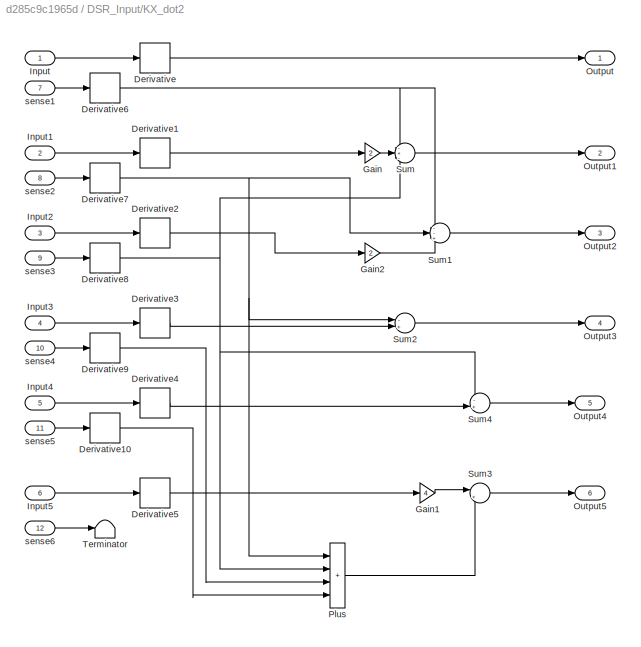
BLOCK [SubSystem] DSR_Input/KX_dot2
  NameLocation = top
  Ports = [12, 6]
  RequestExecContextInheritance = off
BLOCK [Derivative] DSR_Input/KX_dot2/Derivative
BLOCK [Derivative] DSR_Input/KX_dot2/Derivative1
BLOCK [Derivative] DSR_Input/KX_dot2/Derivative10
BLOCK [Derivative] DSR_Input/KX_dot2/Derivative2
BLOCK [Derivative] DSR_Input/KX_dot2/Derivative3
BLOCK [Derivative] DSR_Input/KX_dot2/Derivative4
BLOCK [Derivative] DSR_Input/KX_dot2/Derivative5
BLOCK [Derivative] DSR_Input/KX_dot2/Derivative6
BLOCK [Derivative] DSR_Input/KX_dot2/Derivative7
BLOCK [Derivative] DSR_Input/KX_dot2/Derivative8
BLOCK [Derivative] DSR_Input/KX_dot2/Derivative9
BLOCK [Gain] DSR_Input/KX_dot2/Gain
  Gain = 2
BLOCK [Gain] DSR_Input/KX_dot2/Gain1
  Gain = 4
BLOCK [Gain] DSR_Input/KX_dot2/Gain2
  Gain = 2
BLOCK [Inport] DSR_Input/KX_dot2/Input
BLOCK [Inport] DSR_Input/KX_dot2/Input1
  Port = 2
BLOCK [Inport] DSR_Input/KX_dot2/Input2
  Port = 3
BLOCK [Inport] DSR_Input/KX_dot2/Input3
  Port = 4
BLOCK [Inport] DSR_Input/KX_dot2/Input4
  Port = 5
BLOCK [Inport] DSR_Input/KX_dot2/Input5
  Port = 6
BLOCK [Outport] DSR_Input/KX_dot2/Output
BLOCK [Outport] DSR_Input/KX_dot2/Output1
  Port = 2
BLOCK [Outport] DSR_Input/KX_dot2/Output2
  Port = 3
BLOCK [Outport] DSR_Input/KX_dot2/Output3
  Port = 4
BLOCK [Outport] DSR_Input/KX_dot2/Output4
  Port = 5
BLOCK [Outport] DSR_Input/KX_dot2/Output5
  Port = 6
BLOCK [Sum] DSR_Input/KX_dot2/Plus
  IconShape = rectangular
  Inputs = ++++
  Ports = [4, 1]
BLOCK [Sum] DSR_Input/KX_dot2/Sum
  Inputs = -+-
  Ports = [3, 1]
BLOCK [Sum] DSR_Input/KX_dot2/Sum1
  Inputs = --+
  Ports = [3, 1]
BLOCK [Sum] DSR_Input/KX_dot2/Sum2
  Inputs = -+|
  Ports = [2, 1]
BLOCK [Sum] DSR_Input/KX_dot2/Sum3
  Inputs = |+-
  Ports = [2, 1]
BLOCK [Sum] DSR_Input/KX_dot2/Sum4
  Inputs = -+|
  Ports = [2, 1]
BLOCK [Terminator] DSR_Input/KX_dot2/Terminator
BLOCK [Inport] DSR_Input/KX_dot2/sense1
  Port = 7
BLOCK [Inport] DSR_Input/KX_dot2/sense2
  Port = 8
BLOCK [Inport] DSR_Input/KX_dot2/sense3
  Port = 9
BLOCK [Inport] DSR_Input/KX_dot2/sense4
  Port = 10
BLOCK [Inport] DSR_Input/KX_dot2/sense5
  Port = 11
BLOCK [Inport] DSR_Input/KX_dot2/sense6
  Port = 12
BLOCK [Outport] DSR_Input/Out1
BLOCK [Outport] DSR_Input/Out2
  Port = 2
BLOCK [Outport] DSR_Input/Out3
  Port = 3
BLOCK [Outport] DSR_Input/Out4
  Port = 4
BLOCK [Outport] DSR_Input/Out5
  Port = 5
BLOCK [Outport] DSR_Input/Out6
  Port = 6
BLOCK [Sum] DSR_Input/Sum10
  Inputs = +--
  Ports = [3, 1]
BLOCK [Sum] DSR_Input/Sum11
  Inputs = +--
  Ports = [3, 1]
BLOCK [Sum] DSR_Input/Sum12
  Inputs = +--
  Ports = [3, 1]
BLOCK [Sum] DSR_Input/Sum13
  Inputs = ++|
  Ports = [2, 1]
BLOCK [Sum] DSR_Input/Sum20
  Inputs = +--
  Ports = [3, 1]
BLOCK [Sum] DSR_Input/Sum21
  Inputs = +--
  Ports = [3, 1]
BLOCK [Sum] DSR_Input/Sum22
  Inputs = +--
  Ports = [3, 1]
BLOCK [Inport] DSR_Input/fb1
BLOCK [Inport] DSR_Input/fb2
  Port = 2
BLOCK [Inport] DSR_Input/fb3
  Port = 3
BLOCK [Inport] DSR_Input/fb4
  Port = 4
BLOCK [Inport] DSR_Input/fb5
  Port = 5
BLOCK [Inport] DSR_Input/fb6
  Port = 6
BLOCK [Inport] DSR_Input/input
  Port = 7
BLOCK [Inport] DSR_Input/s1
  Port = 8
BLOCK [Inport] DSR_Input/s2
  Port = 9
BLOCK [Inport] DSR_Input/s3
  Port = 10
BLOCK [Inport] DSR_Input/s4
  Port = 11
BLOCK [Inport] DSR_Input/s5
  Port = 12
BLOCK [Inport] DSR_Input/s6
  Port = 13
BLOCK [SubSystem] Derivative
  Ports = [6, 6]
  RequestExecContextInheritance = off
BLOCK [Derivative] Derivative/Derivative
BLOCK [Derivative] Derivative/Derivative1
BLOCK [Derivative] Derivative/Derivative2
BLOCK [Derivative] Derivative/Derivative3
BLOCK [Derivative] Derivative/Derivative4
BLOCK [Derivative] Derivative/Derivative5
BLOCK [Inport] Derivative/Input
BLOCK [Inport] Derivative/Input1
  Port = 2
BLOCK [Inport] Derivative/Input2
  Port = 3
BLOCK [Inport] Derivative/Input3
  Port = 4
BLOCK [Inport] Derivative/Input4
  Port = 5
BLOCK [Inport] Derivative/Input5
  Port = 6
BLOCK [Outport] Derivative/Out1
BLOCK [Outport] Derivative/Out2
  Port = 2
BLOCK [Outport] Derivative/Out3
  Port = 3
BLOCK [Outport] Derivative/Out4
  Port = 4
BLOCK [Outport] Derivative/Out5
  Port = 5
BLOCK [Outport] Derivative/Out6
  Port = 6
BLOCK [Derivative] Derivative1
  Commented = on
  NameLocation = top
BLOCK [Derivative] Derivative2
  CoefficientInTFapproximation = 100
  Commented = on
BLOCK [Derivative] Derivative3
  Commented = on
BLOCK [Display] Display
  Decimation = 1
  Ports = [1]
BLOCK [Display] Display1
  Decimation = 1
  Ports = [1]
BLOCK [SubSystem] Input Processor3
  Ports = [1, 1]
  RequestExecContextInheritance = off
BLOCK [Derivative] Input Processor3/Derivative
BLOCK [Gain] Input Processor3/Gain
  Gain = alpha
BLOCK [Gain] Input Processor3/Gain1
  Gain = 2
BLOCK [Inport] Input Processor3/Input
BLOCK [Outport] Input Processor3/Out1
BLOCK [Sum] Input Processor3/Sum
  Inputs = |++
  Ports = [2, 1]
BLOCK [Gain] Input Processor3/inputGain
  Gain = alpha/a
BLOCK [SubSystem] KDgain3
  Ports = [6, 6]
  RequestExecContextInheritance = off
BLOCK [Gain] KDgain3/KDgain1
  Gain = 2*alpha/a
BLOCK [Gain] KDgain3/KDgain2
  Gain = 2*alpha/a
BLOCK [Gain] KDgain3/KDgain3
  Gain = 2*alpha/a
BLOCK [Gain] KDgain3/KDgain4
  Gain = 2*alpha/a
BLOCK [Gain] KDgain3/KDgain5
  Gain = 2*alpha/a
BLOCK [Gain] KDgain3/KDgain6
  Gain = 2*alpha/a
BLOCK [Outport] KDgain3/Out1
BLOCK [Outport] KDgain3/Out2
  Port = 2
BLOCK [Outport] KDgain3/Out3
  Port = 3
BLOCK [Outport] KDgain3/Out4
  Port = 4
BLOCK [Outport] KDgain3/Out5
  Port = 5
BLOCK [Outport] KDgain3/Out6
  Port = 6
BLOCK [Inport] KDgain3/Output
BLOCK [Inport] KDgain3/Output1
  Port = 2
BLOCK [Inport] KDgain3/Output2
  Port = 3
BLOCK [Inport] KDgain3/Output3
  Port = 4
BLOCK [Inport] KDgain3/Output4
  Port = 5
BLOCK [Inport] KDgain3/Output5
  Port = 6
BLOCK [SubSystem] KPgain3
  Ports = [6, 6]
  RequestExecContextInheritance = off
BLOCK [Gain] KPgain3/KPgain1
  Gain = alpha^2/a
BLOCK [Gain] KPgain3/KPgain2
  Gain = alpha^2/a
BLOCK [Gain] KPgain3/KPgain3
  Gain = alpha^2/a
BLOCK [Gain] KPgain3/KPgain4
  Gain = alpha^2/a
BLOCK [Gain] KPgain3/KPgain5
  Gain = alpha^2/a
BLOCK [Gain] KPgain3/KPgain6
  Gain = alpha^2/a
BLOCK [Outport] KPgain3/Out1
BLOCK [Outport] KPgain3/Out2
  Port = 2
BLOCK [Outport] KPgain3/Out3
  Port = 3
BLOCK [Outport] KPgain3/Out4
  Port = 4
BLOCK [Outport] KPgain3/Out5
  Port = 5
BLOCK [Outport] KPgain3/Out6
  Port = 6
BLOCK [Inport] KPgain3/Output
BLOCK [Inport] KPgain3/Output1
  Port = 2
BLOCK [Inport] KPgain3/Output2
  Port = 3
BLOCK [Inport] KPgain3/Output3
  Port = 4
BLOCK [Inport] KPgain3/Output4
  Port = 5
BLOCK [Inport] KPgain3/Output5
  Port = 6
BLOCK [SubSystem] KX3
  NameLocation = top
  Ports = [12, 6]
  RequestExecContextInheritance = off
BLOCK [Gain] KX3/Gain
  Gain = 2
BLOCK [Gain] KX3/Gain1
  Gain = 4
BLOCK [Gain] KX3/Gain2
  Gain = 2
BLOCK [Inport] KX3/Input
BLOCK [Inport] KX3/Input1
  Port = 2
BLOCK [Inport] KX3/Input2
  Port = 3
BLOCK [Inport] KX3/Input3
  Port = 4
BLOCK [Inport] KX3/Input4
  Port = 5
BLOCK [Inport] KX3/Input5
  Port = 6
BLOCK [Outport] KX3/Output
BLOCK [Outport] KX3/Output1
  Port = 2
BLOCK [Outport] KX3/Output2
  Port = 3
BLOCK [Outport] KX3/Output3
  Port = 4
BLOCK [Outport] KX3/Output4
  Port = 5
BLOCK [Outport] KX3/Output5
  Port = 6
BLOCK [Sum] KX3/Plus
  IconShape = rectangular
  Inputs = ++++
  Ports = [4, 1]
BLOCK [Sum] KX3/Sum
  Inputs = -+-
  Ports = [3, 1]
BLOCK [Sum] KX3/Sum1
  Inputs = --+
  Ports = [3, 1]
BLOCK [Sum] KX3/Sum2
  Inputs = -+|
  Ports = [2, 1]
BLOCK [Sum] KX3/Sum3
  Inputs = |+-
  Ports = [2, 1]
BLOCK [Sum] KX3/Sum4
  Inputs = -+|
  Ports = [2, 1]
BLOCK [Terminator] KX3/Terminator
BLOCK [Inport] KX3/sense1
  Port = 7
BLOCK [Inport] KX3/sense2
  Port = 8
BLOCK [Inport] KX3/sense3
  Port = 9
BLOCK [Inport] KX3/sense4
  Port = 10
BLOCK [Inport] KX3/sense5
  Port = 11
BLOCK [Inport] KX3/sense6
  Port = 12
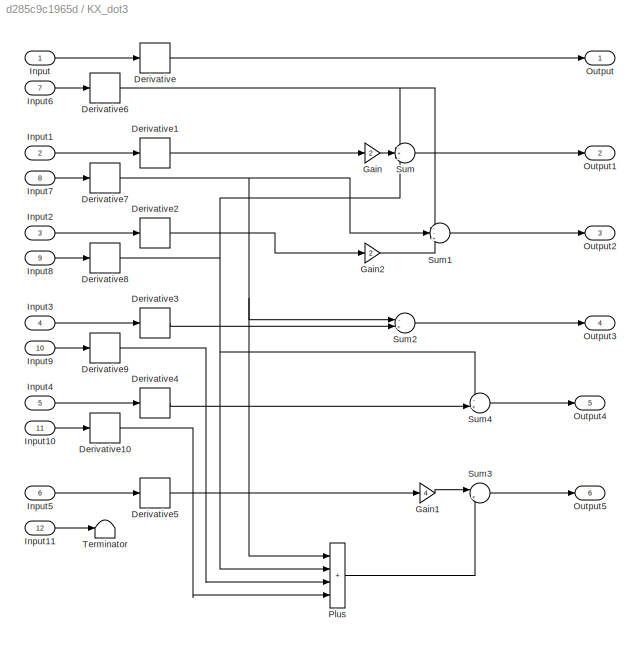
BLOCK [SubSystem] KX_dot3
  NameLocation = top
  Ports = [12, 6]
  RequestExecContextInheritance = off
BLOCK [Derivative] KX_dot3/Derivative
BLOCK [Derivative] KX_dot3/Derivative1
BLOCK [Derivative] KX_dot3/Derivative10
BLOCK [Derivative] KX_dot3/Derivative2
BLOCK [Derivative] KX_dot3/Derivative3
BLOCK [Derivative] KX_dot3/Derivative4
BLOCK [Derivative] KX_dot3/Derivative5
BLOCK [Derivative] KX_dot3/Derivative6
BLOCK [Derivative] KX_dot3/Derivative7
BLOCK [Derivative] KX_dot3/Derivative8
BLOCK [Derivative] KX_dot3/Derivative9
BLOCK [Gain] KX_dot3/Gain
  Gain = 2
BLOCK [Gain] KX_dot3/Gain1
  Gain = 4
BLOCK [Gain] KX_dot3/Gain2
  Gain = 2
BLOCK [Inport] KX_dot3/Input
BLOCK [Inport] KX_dot3/Input1
  Port = 2
BLOCK [Inport] KX_dot3/Input10
  Port = 11
BLOCK [Inport] KX_dot3/Input11
  Port = 12
BLOCK [Inport] KX_dot3/Input2
  Port = 3
BLOCK [Inport] KX_dot3/Input3
  Port = 4
BLOCK [Inport] KX_dot3/Input4
  Port = 5
BLOCK [Inport] KX_dot3/Input5
  Port = 6
BLOCK [Inport] KX_dot3/Input6
  Port = 7
BLOCK [Inport] KX_dot3/Input7
  Port = 8
BLOCK [Inport] KX_dot3/Input8
  Port = 9
BLOCK [Inport] KX_dot3/Input9
  Port = 10
BLOCK [Outport] KX_dot3/Output
BLOCK [Outport] KX_dot3/Output1
  Port = 2
BLOCK [Outport] KX_dot3/Output2
  Port = 3
BLOCK [Outport] KX_dot3/Output3
  Port = 4
BLOCK [Outport] KX_dot3/Output4
  Port = 5
BLOCK [Outport] KX_dot3/Output5
  Port = 6
BLOCK [Sum] KX_dot3/Plus
  IconShape = rectangular
  Inputs = ++++
  Ports = [4, 1]
BLOCK [Sum] KX_dot3/Sum
  Inputs = -+-
  Ports = [3, 1]
BLOCK [Sum] KX_dot3/Sum1
  Inputs = --+
  Ports = [3, 1]
BLOCK [Sum] KX_dot3/Sum2
  Inputs = -+|
  Ports = [2, 1]
BLOCK [Sum] KX_dot3/Sum3
  Inputs = |+-
  Ports = [2, 1]
BLOCK [Sum] KX_dot3/Sum4
  Inputs = -+|
  Ports = [2, 1]
BLOCK [Terminator] KX_dot3/Terminator
BLOCK [SubSystem] Max Deflection
  Ports = [6, 1]
  RequestExecContextInheritance = off
BLOCK [Abs] Max Deflection/Abs
  SaturateOnIntegerOverflow = off
BLOCK [Abs] Max Deflection/Abs1
  SaturateOnIntegerOverflow = off
BLOCK [Abs] Max Deflection/Abs2
  SaturateOnIntegerOverflow = off
BLOCK [Abs] Max Deflection/Abs3
  SaturateOnIntegerOverflow = off
BLOCK [Abs] Max Deflection/Abs4
  SaturateOnIntegerOverflow = off
BLOCK [Abs] Max Deflection/Abs5
  SaturateOnIntegerOverflow = off
BLOCK [SubSystem] Max Deflection/Average
  Ports = [6, 1]
  RequestExecContextInheritance = off
BLOCK [Gain] Max Deflection/Average/Gain
  Gain = 1/6
BLOCK [Inport] Max Deflection/Average/In1
BLOCK [Inport] Max Deflection/Average/In2
  Port = 2
BLOCK [Inport] Max Deflection/Average/In3
  Port = 3
BLOCK [Inport] Max Deflection/Average/In4
  Port = 4
BLOCK [Inport] Max Deflection/Average/In5
  Port = 5
BLOCK [Inport] Max Deflection/Average/In6
  Port = 6
BLOCK [Outport] Max Deflection/Average/Out1
BLOCK [Sum] Max Deflection/Average/Sum10
  Inputs = ++++++
  Ports = [6, 1]
BLOCK [Inport] Max Deflection/In1
BLOCK [Inport] Max Deflection/In2
  Port = 2
BLOCK [Inport] Max Deflection/In3
  Port = 3
BLOCK [Inport] Max Deflection/In4
  Port = 4
BLOCK [Inport] Max Deflection/In5
  Port = 5
BLOCK [Inport] Max Deflection/In6
  Port = 6
BLOCK [MinMax] Max Deflection/Max
  Function = max
  Inputs = 6
  Ports = [6, 1]
BLOCK [Reference] Max Deflection/MinMax Running Resettable  REF=simulink/Math
Operations/MinMax
Running
Resettable
  Ports = [2, 1]
  SourceBlock = simulink/Math\nOperations/MinMax\nRunning\nResettable
  SourceProductBaseCode = SL
  SourceType = MinMax Running Resettable
BLOCK [Scope] Max Deflection/Scope3
  Floating = off
  NumInputPorts = 7
  Ports = [7]
  ScopeSpecificationString = Simulink.scopes.TimeScopeBlockCfg('CurrentConfiguration', extmgr.ConfigurationSet(extmgr.Configuration('Core','General UI',true),extmgr.Configuration('Core','Source UI',true),extmgr.Configuration('Sources','WiredSimulink',true,'DataLoggingVariableName','ScopeData1'),extmgr.Configuration('Visuals','Time Domain',true,'SerializedDisplays',{struct('MinYLimReal','-0.0046','MaxYLimReal','0.0414','YLabel...<+1430ch>
BLOCK [Sum] Max Deflection/Sum10
  Inputs = -+|
  Ports = [2, 1]
BLOCK [Sum] Max Deflection/Sum11
  Inputs = -+|
  Ports = [2, 1]
BLOCK [Sum] Max Deflection/Sum12
  Inputs = -+|
  Ports = [2, 1]
BLOCK [Sum] Max Deflection/Sum13
  Inputs = -+|
  Ports = [2, 1]
BLOCK [Sum] Max Deflection/Sum20
  Inputs = -+|
  Ports = [2, 1]
BLOCK [Sum] Max Deflection/Sum21
  Inputs = -+|
  Ports = [2, 1]
BLOCK [Constant] Max Deflection/Zero
  OutDataTypeStr = Inherit: Inherit via back propagation
  Value = 0
BLOCK [Outport] Max Deflection/y
BLOCK [Reference] PID Controller  REF=slpidlib/PID Controller
  Commented = on
  Ports = [1, 1]
  SourceBlock = slpidlib/PID Controller
  SourceProductBaseCode = SL
  SourceType = PID 1dof
BLOCK [Reference] PID Controller1  REF=slpidlib/PID Controller
  Commented = on
  Ports = [1, 1]
  SourceBlock = slpidlib/PID Controller
  SourceProductBaseCode = SL
  SourceType = PID 1dof
BLOCK [TransferFcn] S2+S
  Commented = on
  Denominator = [1 1 0]
BLOCK [Scope] Scope
  Commented = on
  Floating = off
  NumInputPorts = 2
  Ports = [2]
  ScopeSpecificationString = Simulink.scopes.TimeScopeBlockCfg('CurrentConfiguration', extmgr.ConfigurationSet(extmgr.Configuration('Core','General UI',true),extmgr.Configuration('Core','Source UI',true),extmgr.Configuration('Sources','WiredSimulink',true),extmgr.Configuration('Visuals','Time Domain',true,'SerializedDisplays',{struct('MinYLimReal','-1.00000','MaxYLimReal','1.00000','YLabelReal','','MinYLimMag','0.00000','MaxY...<+1341ch>
BLOCK [Scope] Scope1
  Commented = on
  Floating = off
  NumInputPorts = 2
  Ports = [2]
  ScopeSpecificationString = Simulink.scopes.TimeScopeBlockCfg('CurrentConfiguration', extmgr.ConfigurationSet(extmgr.Configuration('Core','General UI',true),extmgr.Configuration('Core','Source UI',true),extmgr.Configuration('Sources','WiredSimulink',true,'DataLoggingVariableName','ScopeData1'),extmgr.Configuration('Visuals','Time Domain',true,'SerializedDisplays',{struct('MinYLimReal','-0.125','MaxYLimReal','1.125','YLabelRe...<+1410ch>
BLOCK [Scope] Scope2
  Commented = on
  Floating = off
  NumInputPorts = 2
  Ports = [2]
  ScopeSpecificationString = Simulink.scopes.TimeScopeBlockCfg('CurrentConfiguration', extmgr.ConfigurationSet(extmgr.Configuration('Core','General UI',true),extmgr.Configuration('Core','Source UI',true),extmgr.Configuration('Sources','WiredSimulink',true,'DataLoggingVariableName','ScopeData3'),extmgr.Configuration('Visuals','Time Domain',true,'SerializedDisplays',{struct('MinYLimReal','-0.12932','MaxYLimReal','1.16386','YLab...<+1401ch>
BLOCK [Scope] Scope3
  Floating = off
  NumInputPorts = 6
  Ports = [6]
  ScopeSpecificationString = Simulink.scopes.TimeScopeBlockCfg('CurrentConfiguration', extmgr.ConfigurationSet(extmgr.Configuration('Core','General UI',true),extmgr.Configuration('Core','Source UI',true),extmgr.Configuration('Sources','WiredSimulink',true,'DataLoggingVariableName','ScopeData1'),extmgr.Configuration('Visuals','Time Domain',true,'SerializedDisplays',{struct('MinYLimReal','-0.12511','MaxYLimReal','1.12601','YLab...<+1501ch>
BLOCK [Scope] Scope4
  Floating = off
  NumInputPorts = 7
  Ports = [7]
  ScopeSpecificationString = Simulink.scopes.TimeScopeBlockCfg('CurrentConfiguration', extmgr.ConfigurationSet(extmgr.Configuration('Core','General UI',true),extmgr.Configuration('Core','Source UI',true),extmgr.Configuration('Sources','WiredSimulink',true,'DataLoggingVariableName','ScopeData2'),extmgr.Configuration('Visuals','Time Domain',true,'SerializedDisplays',{struct('MinYLimReal','-0.1251','MaxYLimReal','1.12586','YLabe...<+1504ch>
BLOCK [SubSystem] StateDerivative
  Ports = [6, 6]
  RequestExecContextInheritance = off
BLOCK [Derivative] StateDerivative/Derivative
BLOCK [Derivative] StateDerivative/Derivative1
BLOCK [Derivative] StateDerivative/Derivative2
BLOCK [Derivative] StateDerivative/Derivative3
BLOCK [Derivative] StateDerivative/Derivative4
BLOCK [Derivative] StateDerivative/Derivative5
BLOCK [Inport] StateDerivative/Input
BLOCK [Inport] StateDerivative/Input1
  Port = 2
BLOCK [Inport] StateDerivative/Input2
  Port = 3
BLOCK [Inport] StateDerivative/Input3
  Port = 4
BLOCK [Inport] StateDerivative/Input4
  Port = 5
BLOCK [Inport] StateDerivative/Input5
  Port = 6
BLOCK [Outport] StateDerivative/Out1
BLOCK [Outport] StateDerivative/Out2
  Port = 2
BLOCK [Outport] StateDerivative/Out3
  Port = 3
BLOCK [Outport] StateDerivative/Out4
  Port = 4
BLOCK [Outport] StateDerivative/Out5
  Port = 5
BLOCK [Outport] StateDerivative/Out6
  Port = 6
BLOCK [Step] Step
  Commented = on
  SampleTime = 0
BLOCK [Step] Step1
  Commented = on
  SampleTime = 0
BLOCK [Step] Step2
  SampleTime = 0
  Time = 0
BLOCK [Step] Step4
  SampleTime = 0
  Time = 0
BLOCK [SubSystem] Subsystem
  Ports = [6, 6]
  RequestExecContextInheritance = off
BLOCK [Inport] Subsystem/In1
BLOCK [Inport] Subsystem/In2
  Port = 2
BLOCK [Inport] Subsystem/In3
  Port = 3
BLOCK [Inport] Subsystem/In4
  Port = 4
BLOCK [Inport] Subsystem/In5
  Port = 5
BLOCK [Inport] Subsystem/In6
  Port = 6
BLOCK [Outport] Subsystem/O1
BLOCK [Outport] Subsystem/O2
  Port = 2
BLOCK [Outport] Subsystem/O3
  Port = 3
BLOCK [Outport] Subsystem/O4
  Port = 4
BLOCK [Outport] Subsystem/O5
  Port = 5
BLOCK [Outport] Subsystem/O6
  Port = 6
BLOCK [TransferFcn] Subsystem/Transfer Fcn
  Denominator = [1 a 0]
  Numerator = [a]
BLOCK [TransferFcn] Subsystem/Transfer Fcn1
  Denominator = [1 a 0]
  Numerator = [a]
BLOCK [TransferFcn] Subsystem/Transfer Fcn2
  Denominator = [1 a 0]
  Numerator = [a]
BLOCK [TransferFcn] Subsystem/Transfer Fcn3
  Denominator = [1 a 0]
  Numerator = [a]
BLOCK [TransferFcn] Subsystem/Transfer Fcn4
  Denominator = [1 a 0]
  Numerator = [a]
BLOCK [TransferFcn] Subsystem/Transfer Fcn5
  Denominator = [1 a 0]
  Numerator = [a]
BLOCK [SubSystem] Subsystem1
  Ports = [6, 6]
  RequestExecContextInheritance = off
BLOCK [Inport] Subsystem1/In1
BLOCK [Inport] Subsystem1/In2
  Port = 2
BLOCK [Inport] Subsystem1/In3
  Port = 3
BLOCK [Inport] Subsystem1/In4
  Port = 4
BLOCK [Inport] Subsystem1/In5
  Port = 5
BLOCK [Inport] Subsystem1/In6
  Port = 6
BLOCK [Outport] Subsystem1/O1
BLOCK [Outport] Subsystem1/O2
  Port = 2
BLOCK [Outport] Subsystem1/O3
  Port = 3
BLOCK [Outport] Subsystem1/O4
  Port = 4
BLOCK [Outport] Subsystem1/O5
  Port = 5
BLOCK [Outport] Subsystem1/O6
  Port = 6
BLOCK [TransferFcn] Subsystem1/Transfer Fcn
  Denominator = [1 a 0]
  Numerator = [a]
BLOCK [TransferFcn] Subsystem1/Transfer Fcn1
  Denominator = [1 a 0]
  Numerator = [a]
BLOCK [TransferFcn] Subsystem1/Transfer Fcn2
  Denominator = [1 a 0]
  Numerator = [a]
BLOCK [TransferFcn] Subsystem1/Transfer Fcn3
  Denominator = [1 a 0]
  Numerator = [a]
BLOCK [TransferFcn] Subsystem1/Transfer Fcn4
  Denominator = [1 a 0]
  Numerator = [a]
BLOCK [TransferFcn] Subsystem1/Transfer Fcn5
  Denominator = [1 a 0]
  Numerator = [a]
BLOCK [SubSystem] Subsystem2
  Ports = [4, 1]
  RequestExecContextInheritance = off
BLOCK [Inport] Subsystem2/4
  Port = 3
BLOCK [Inport] Subsystem2/6
  Port = 4
BLOCK [Abs] Subsystem2/Abs
  SaturateOnIntegerOverflow = off
BLOCK [Inport] Subsystem2/Input
BLOCK [Inport] Subsystem2/Input1
  Port = 2
BLOCK [MinMax] Subsystem2/Min
  Function = max
  Inputs = 3
  Ports = [3, 1]
BLOCK [Reference] Subsystem2/MinMax Running Resettable  REF=simulink/Math
Operations/MinMax
Running
Resettable
  Ports = [2, 1]
  SourceBlock = simulink/Math\nOperations/MinMax\nRunning\nResettable
  SourceProductBaseCode = SL
  SourceType = MinMax Running Resettable
BLOCK [Sum] Subsystem2/Sum7
  Inputs = |+-
  Ports = [2, 1]
BLOCK [Sum] Subsystem2/Sum8
  Inputs = |+-
  Ports = [2, 1]
BLOCK [Sum] Subsystem2/Sum9
  Inputs = |+-
  Ports = [2, 1]
BLOCK [Constant] Subsystem2/Zero
  OutDataTypeStr = Inherit: Inherit via back propagation
  Value = 0
BLOCK [Outport] Subsystem2/y
BLOCK [Sum] Sum
  Inputs = ++|
  Ports = [2, 1]
BLOCK [Sum] Sum1
  Inputs = +--
  Ports = [3, 1]
BLOCK [Sum] Sum14
  Inputs = ++|
  Ports = [2, 1]
BLOCK [Sum] Sum15
  Inputs = ++|
  Ports = [2, 1]
BLOCK [Sum] Sum16
  Inputs = ++|
  Ports = [2, 1]
BLOCK [Sum] Sum17
  Inputs = ++|
  Ports = [2, 1]
BLOCK [Sum] Sum18
  Inputs = ++|
  Ports = [2, 1]
BLOCK [Sum] Sum19
  Inputs = ++|
  Ports = [2, 1]
BLOCK [Sum] Sum2
  Inputs = +--
  Ports = [3, 1]
BLOCK [Sum] Sum3
  Inputs = +--
  Ports = [3, 1]
BLOCK [Sum] Sum4
  Inputs = +--
  Ports = [3, 1]
BLOCK [Sum] Sum5
  Inputs = +--
  Ports = [3, 1]
BLOCK [Sum] Sum6
  Inputs = +--
  Ports = [3, 1]
BLOCK [Sum] Sum7
  Commented = on
  Inputs = |+-
  Ports = [2, 1]
BLOCK [Sum] Sum8
  Commented = on
  Inputs = |+-
  Ports = [2, 1]
BLOCK [Sum] Sum9
  Commented = on
  Inputs = -+|
  Ports = [2, 1]
BLOCK [TransportDelay] Transport Delay
  DelayTime = delay_a
  Ports = [1, 1]
BLOCK [TransportDelay] Transport Delay1
  DelayTime = delay_a
  Ports = [1, 1]
BLOCK [TransportDelay] Transport Delay10
  DelayTime = delay_a
  Ports = [1, 1]
BLOCK [TransportDelay] Transport Delay12
  DelayTime = delay_a
  Ports = [1, 1]
BLOCK [TransportDelay] Transport Delay2
  DelayTime = delay_a
  Ports = [1, 1]
BLOCK [TransportDelay] Transport Delay3
  DelayTime = delay_a
  Ports = [1, 1]
BLOCK [TransportDelay] Transport Delay4
  DelayTime = delay_a
  Ports = [1, 1]
BLOCK [TransportDelay] Transport Delay5
  DelayTime = delay_a
  Ports = [1, 1]
BLOCK [TransportDelay] Transport Delay6
  DelayTime = delay_a
  Ports = [1, 1]
BLOCK [TransportDelay] Transport Delay7
  DelayTime = delay_a
  Ports = [1, 1]
BLOCK [TransportDelay] Transport Delay8
  DelayTime = delay_a
  Ports = [1, 1]
BLOCK [TransportDelay] Transport Delay9
  DelayTime = delay_a
  Ports = [1, 1]
BLOCK [TransferFcn] Without Derivative
  Commented = on
  Denominator = [1 1]
  Numerator = [1 0]
BLOCK [SubSystem] gain 1//a
  Ports = [6, 6]
  RequestExecContextInheritance = off
BLOCK [Gain] gain 1//a/1//a
  Gain = 1/a
BLOCK [Gain] gain 1//a/1//a1
  Gain = 1/a
BLOCK [Gain] gain 1//a/1//a2
  Gain = 1/a
BLOCK [Gain] gain 1//a/1//a3
  Gain = 1/a
BLOCK [Gain] gain 1//a/1//a4
  Gain = 1/a
BLOCK [Gain] gain 1//a/1//a5
  Gain = 1/a
BLOCK [Inport] gain 1//a/In1
BLOCK [Inport] gain 1//a/In2
  Port = 2
BLOCK [Inport] gain 1//a/In3
  Port = 3
BLOCK [Inport] gain 1//a/In4
  Port = 4
BLOCK [Inport] gain 1//a/In5
  Port = 5
BLOCK [Inport] gain 1//a/In6
  Port = 6
BLOCK [Outport] gain 1//a/Out1
BLOCK [Outport] gain 1//a/Out2
  Port = 2
BLOCK [Outport] gain 1//a/Out3
  Port = 3
BLOCK [Outport] gain 1//a/Out4
  Port = 4
BLOCK [Outport] gain 1//a/Out5
  Port = 5
BLOCK [Outport] gain 1//a/Out6
  Port = 6
ANNOTATION (root): DSR With CDOB
ANNOTATION (root): Standard Consensus with CDOB
LINE  Deriavtive:1 -> Scope1:1
NET 1//S2:1 -> Derivative3:1, Scope2:1, Sum7:2
LINE CDOB_Subsys1/Acc.1:1 -> CDOB_Subsys1/ND1:2
LINE CDOB_Subsys1/Acc.2:1 -> CDOB_Subsys1/ND2:2
LINE CDOB_Subsys1/Acc.3:1 -> CDOB_Subsys1/ND3:2
LINE CDOB_Subsys1/Acc.4:1 -> CDOB_Subsys1/ND4:2
LINE CDOB_Subsys1/Acc.5:1 -> CDOB_Subsys1/ND5:2
LINE CDOB_Subsys1/Acc.:1 -> CDOB_Subsys1/ND:2
LINE CDOB_Subsys1/ND/Acc.:1 -> CDOB_Subsys1/ND/CDOB1:2
LINE CDOB_Subsys1/ND/CDOB1/Acc.:1 -> CDOB_Subsys1/ND/CDOB1/Sum8:3
NET CDOB_Subsys1/ND/CDOB1/Derivative:1 -> CDOB_Subsys1/ND/CDOB1/Gain:1, CDOB_Subsys1/ND/CDOB1/Sum8:2
NET CDOB_Subsys1/ND/CDOB1/Gain:1 -> CDOB_Subsys1/ND/CDOB1/Sum8:1, CDOB_Subsys1/ND/CDOB1/Sum:1
LINE CDOB_Subsys1/ND/CDOB1/Sum8:1 -> CDOB_Subsys1/ND/CDOB1/Transfer Fcn2:1
LINE CDOB_Subsys1/ND/CDOB1/Sum:1 -> CDOB_Subsys1/ND/CDOB1/Dobsv:1
LINE CDOB_Subsys1/ND/CDOB1/Transfer Fcn2:1 -> CDOB_Subsys1/ND/CDOB1/Sum:2
LINE CDOB_Subsys1/ND/CDOB1/XRes:1 -> CDOB_Subsys1/ND/CDOB1/Derivative:1
LINE CDOB_Subsys1/ND/CDOB1:1 -> CDOB_Subsys1/ND/TimeDelayComp:2
LINE CDOB_Subsys1/ND/TimeDelayComp/DelayCom:1 -> CDOB_Subsys1/ND/TimeDelayComp/Sum8:2
LINE CDOB_Subsys1/ND/TimeDelayComp/Dobsv:1 -> CDOB_Subsys1/ND/TimeDelayComp/DelayCom:1
LINE CDOB_Subsys1/ND/TimeDelayComp/Sum8:1 -> CDOB_Subsys1/ND/TimeDelayComp/FeedBack:1
LINE CDOB_Subsys1/ND/TimeDelayComp/SysOut:1 -> CDOB_Subsys1/ND/TimeDelayComp/Sum8:1
LINE CDOB_Subsys1/ND/TimeDelayComp:1 -> CDOB_Subsys1/ND/FeedBack:1
NET CDOB_Subsys1/ND/XRes:1 -> CDOB_Subsys1/ND/CDOB1:1, CDOB_Subsys1/ND/TimeDelayComp:1
LINE CDOB_Subsys1/ND1/Acc.:1 -> CDOB_Subsys1/ND1/CDOB1:2
LINE CDOB_Subsys1/ND1/CDOB1/Acc.:1 -> CDOB_Subsys1/ND1/CDOB1/Sum8:3
NET CDOB_Subsys1/ND1/CDOB1/Derivative:1 -> CDOB_Subsys1/ND1/CDOB1/Gain:1, CDOB_Subsys1/ND1/CDOB1/Sum8:2
NET CDOB_Subsys1/ND1/CDOB1/Gain:1 -> CDOB_Subsys1/ND1/CDOB1/Sum8:1, CDOB_Subsys1/ND1/CDOB1/Sum:1
LINE CDOB_Subsys1/ND1/CDOB1/Sum8:1 -> CDOB_Subsys1/ND1/CDOB1/Transfer Fcn2:1
LINE CDOB_Subsys1/ND1/CDOB1/Sum:1 -> CDOB_Subsys1/ND1/CDOB1/Dobsv:1
LINE CDOB_Subsys1/ND1/CDOB1/Transfer Fcn2:1 -> CDOB_Subsys1/ND1/CDOB1/Sum:2
LINE CDOB_Subsys1/ND1/CDOB1/XRes:1 -> CDOB_Subsys1/ND1/CDOB1/Derivative:1
LINE CDOB_Subsys1/ND1/CDOB1:1 -> CDOB_Subsys1/ND1/TimeDelayComp:2
LINE CDOB_Subsys1/ND1/TimeDelayComp/DelayCom:1 -> CDOB_Subsys1/ND1/TimeDelayComp/Sum8:2
LINE CDOB_Subsys1/ND1/TimeDelayComp/Dobsv:1 -> CDOB_Subsys1/ND1/TimeDelayComp/DelayCom:1
LINE CDOB_Subsys1/ND1/TimeDelayComp/Sum8:1 -> CDOB_Subsys1/ND1/TimeDelayComp/FeedBack:1
LINE CDOB_Subsys1/ND1/TimeDelayComp/SysOut:1 -> CDOB_Subsys1/ND1/TimeDelayComp/Sum8:1
LINE CDOB_Subsys1/ND1/TimeDelayComp:1 -> CDOB_Subsys1/ND1/FeedBack:1
NET CDOB_Subsys1/ND1/XRes:1 -> CDOB_Subsys1/ND1/CDOB1:1, CDOB_Subsys1/ND1/TimeDelayComp:1
LINE CDOB_Subsys1/ND1:1 -> CDOB_Subsys1/FeedBack1:1
LINE CDOB_Subsys1/ND2/Acc.:1 -> CDOB_Subsys1/ND2/CDOB1:2
LINE CDOB_Subsys1/ND2/CDOB1/Acc.:1 -> CDOB_Subsys1/ND2/CDOB1/Sum8:3
NET CDOB_Subsys1/ND2/CDOB1/Derivative:1 -> CDOB_Subsys1/ND2/CDOB1/Gain:1, CDOB_Subsys1/ND2/CDOB1/Sum8:2
NET CDOB_Subsys1/ND2/CDOB1/Gain:1 -> CDOB_Subsys1/ND2/CDOB1/Sum8:1, CDOB_Subsys1/ND2/CDOB1/Sum:1
LINE CDOB_Subsys1/ND2/CDOB1/Sum8:1 -> CDOB_Subsys1/ND2/CDOB1/Transfer Fcn2:1
LINE CDOB_Subsys1/ND2/CDOB1/Sum:1 -> CDOB_Subsys1/ND2/CDOB1/Dobsv:1
LINE CDOB_Subsys1/ND2/CDOB1/Transfer Fcn2:1 -> CDOB_Subsys1/ND2/CDOB1/Sum:2
LINE CDOB_Subsys1/ND2/CDOB1/XRes:1 -> CDOB_Subsys1/ND2/CDOB1/Derivative:1
LINE CDOB_Subsys1/ND2/CDOB1:1 -> CDOB_Subsys1/ND2/TimeDelayComp:2
LINE CDOB_Subsys1/ND2/TimeDelayComp/DelayCom:1 -> CDOB_Subsys1/ND2/TimeDelayComp/Sum8:2
LINE CDOB_Subsys1/ND2/TimeDelayComp/Dobsv:1 -> CDOB_Subsys1/ND2/TimeDelayComp/DelayCom:1
LINE CDOB_Subsys1/ND2/TimeDelayComp/Sum8:1 -> CDOB_Subsys1/ND2/TimeDelayComp/FeedBack:1
LINE CDOB_Subsys1/ND2/TimeDelayComp/SysOut:1 -> CDOB_Subsys1/ND2/TimeDelayComp/Sum8:1
LINE CDOB_Subsys1/ND2/TimeDelayComp:1 -> CDOB_Subsys1/ND2/FeedBack:1
NET CDOB_Subsys1/ND2/XRes:1 -> CDOB_Subsys1/ND2/CDOB1:1, CDOB_Subsys1/ND2/TimeDelayComp:1
LINE CDOB_Subsys1/ND2:1 -> CDOB_Subsys1/FeedBack2:1
LINE CDOB_Subsys1/ND3/Acc.:1 -> CDOB_Subsys1/ND3/CDOB1:2
LINE CDOB_Subsys1/ND3/CDOB1/Acc.:1 -> CDOB_Subsys1/ND3/CDOB1/Sum8:3
NET CDOB_Subsys1/ND3/CDOB1/Derivative:1 -> CDOB_Subsys1/ND3/CDOB1/Gain:1, CDOB_Subsys1/ND3/CDOB1/Sum8:2
NET CDOB_Subsys1/ND3/CDOB1/Gain:1 -> CDOB_Subsys1/ND3/CDOB1/Sum8:1, CDOB_Subsys1/ND3/CDOB1/Sum:1
LINE CDOB_Subsys1/ND3/CDOB1/Sum8:1 -> CDOB_Subsys1/ND3/CDOB1/Transfer Fcn2:1
LINE CDOB_Subsys1/ND3/CDOB1/Sum:1 -> CDOB_Subsys1/ND3/CDOB1/Dobsv:1
LINE CDOB_Subsys1/ND3/CDOB1/Transfer Fcn2:1 -> CDOB_Subsys1/ND3/CDOB1/Sum:2
LINE CDOB_Subsys1/ND3/CDOB1/XRes:1 -> CDOB_Subsys1/ND3/CDOB1/Derivative:1
LINE CDOB_Subsys1/ND3/CDOB1:1 -> CDOB_Subsys1/ND3/TimeDelayComp:2
LINE CDOB_Subsys1/ND3/TimeDelayComp/DelayCom:1 -> CDOB_Subsys1/ND3/TimeDelayComp/Sum8:2
LINE CDOB_Subsys1/ND3/TimeDelayComp/Dobsv:1 -> CDOB_Subsys1/ND3/TimeDelayComp/DelayCom:1
LINE CDOB_Subsys1/ND3/TimeDelayComp/Sum8:1 -> CDOB_Subsys1/ND3/TimeDelayComp/FeedBack:1
LINE CDOB_Subsys1/ND3/TimeDelayComp/SysOut:1 -> CDOB_Subsys1/ND3/TimeDelayComp/Sum8:1
LINE CDOB_Subsys1/ND3/TimeDelayComp:1 -> CDOB_Subsys1/ND3/FeedBack:1
NET CDOB_Subsys1/ND3/XRes:1 -> CDOB_Subsys1/ND3/CDOB1:1, CDOB_Subsys1/ND3/TimeDelayComp:1
LINE CDOB_Subsys1/ND3:1 -> CDOB_Subsys1/FeedBack3:1
LINE CDOB_Subsys1/ND4/Acc.:1 -> CDOB_Subsys1/ND4/CDOB1:2
LINE CDOB_Subsys1/ND4/CDOB1/Acc.:1 -> CDOB_Subsys1/ND4/CDOB1/Sum8:3
NET CDOB_Subsys1/ND4/CDOB1/Derivative:1 -> CDOB_Subsys1/ND4/CDOB1/Gain:1, CDOB_Subsys1/ND4/CDOB1/Sum8:2
NET CDOB_Subsys1/ND4/CDOB1/Gain:1 -> CDOB_Subsys1/ND4/CDOB1/Sum8:1, CDOB_Subsys1/ND4/CDOB1/Sum:1
LINE CDOB_Subsys1/ND4/CDOB1/Sum8:1 -> CDOB_Subsys1/ND4/CDOB1/Transfer Fcn2:1
LINE CDOB_Subsys1/ND4/CDOB1/Sum:1 -> CDOB_Subsys1/ND4/CDOB1/Dobsv:1
LINE CDOB_Subsys1/ND4/CDOB1/Transfer Fcn2:1 -> CDOB_Subsys1/ND4/CDOB1/Sum:2
LINE CDOB_Subsys1/ND4/CDOB1/XRes:1 -> CDOB_Subsys1/ND4/CDOB1/Derivative:1
LINE CDOB_Subsys1/ND4/CDOB1:1 -> CDOB_Subsys1/ND4/TimeDelayComp:2
LINE CDOB_Subsys1/ND4/TimeDelayComp/DelayCom:1 -> CDOB_Subsys1/ND4/TimeDelayComp/Sum8:2
LINE CDOB_Subsys1/ND4/TimeDelayComp/Dobsv:1 -> CDOB_Subsys1/ND4/TimeDelayComp/DelayCom:1
LINE CDOB_Subsys1/ND4/TimeDelayComp/Sum8:1 -> CDOB_Subsys1/ND4/TimeDelayComp/FeedBack:1
LINE CDOB_Subsys1/ND4/TimeDelayComp/SysOut:1 -> CDOB_Subsys1/ND4/TimeDelayComp/Sum8:1
LINE CDOB_Subsys1/ND4/TimeDelayComp:1 -> CDOB_Subsys1/ND4/FeedBack:1
NET CDOB_Subsys1/ND4/XRes:1 -> CDOB_Subsys1/ND4/CDOB1:1, CDOB_Subsys1/ND4/TimeDelayComp:1
LINE CDOB_Subsys1/ND4:1 -> CDOB_Subsys1/FeedBack4:1
LINE CDOB_Subsys1/ND5/Acc.:1 -> CDOB_Subsys1/ND5/CDOB1:2
LINE CDOB_Subsys1/ND5/CDOB1/Acc.:1 -> CDOB_Subsys1/ND5/CDOB1/Sum8:3
NET CDOB_Subsys1/ND5/CDOB1/Derivative:1 -> CDOB_Subsys1/ND5/CDOB1/Gain:1, CDOB_Subsys1/ND5/CDOB1/Sum8:2
NET CDOB_Subsys1/ND5/CDOB1/Gain:1 -> CDOB_Subsys1/ND5/CDOB1/Sum8:1, CDOB_Subsys1/ND5/CDOB1/Sum:1
LINE CDOB_Subsys1/ND5/CDOB1/Sum8:1 -> CDOB_Subsys1/ND5/CDOB1/Transfer Fcn2:1
LINE CDOB_Subsys1/ND5/CDOB1/Sum:1 -> CDOB_Subsys1/ND5/CDOB1/Dobsv:1
LINE CDOB_Subsys1/ND5/CDOB1/Transfer Fcn2:1 -> CDOB_Subsys1/ND5/CDOB1/Sum:2
LINE CDOB_Subsys1/ND5/CDOB1/XRes:1 -> CDOB_Subsys1/ND5/CDOB1/Derivative:1
LINE CDOB_Subsys1/ND5/CDOB1:1 -> CDOB_Subsys1/ND5/TimeDelayComp:2
LINE CDOB_Subsys1/ND5/TimeDelayComp/DelayCom:1 -> CDOB_Subsys1/ND5/TimeDelayComp/Sum8:2
LINE CDOB_Subsys1/ND5/TimeDelayComp/Dobsv:1 -> CDOB_Subsys1/ND5/TimeDelayComp/DelayCom:1
LINE CDOB_Subsys1/ND5/TimeDelayComp/Sum8:1 -> CDOB_Subsys1/ND5/TimeDelayComp/FeedBack:1
LINE CDOB_Subsys1/ND5/TimeDelayComp/SysOut:1 -> CDOB_Subsys1/ND5/TimeDelayComp/Sum8:1
LINE CDOB_Subsys1/ND5/TimeDelayComp:1 -> CDOB_Subsys1/ND5/FeedBack:1
NET CDOB_Subsys1/ND5/XRes:1 -> CDOB_Subsys1/ND5/CDOB1:1, CDOB_Subsys1/ND5/TimeDelayComp:1
LINE CDOB_Subsys1/ND5:1 -> CDOB_Subsys1/FeedBack5:1
LINE CDOB_Subsys1/ND:1 -> CDOB_Subsys1/FeedBack:1
LINE CDOB_Subsys1/XRes1:1 -> CDOB_Subsys1/ND1:1
LINE CDOB_Subsys1/XRes2:1 -> CDOB_Subsys1/ND2:1
LINE CDOB_Subsys1/XRes3:1 -> CDOB_Subsys1/ND3:1
LINE CDOB_Subsys1/XRes4:1 -> CDOB_Subsys1/ND4:1
LINE CDOB_Subsys1/XRes5:1 -> CDOB_Subsys1/ND5:1
LINE CDOB_Subsys1/XRes:1 -> CDOB_Subsys1/ND:1
LINE CDOB_Subsys1:1 -> DSR_Input:1
LINE CDOB_Subsys1:2 -> DSR_Input:2
LINE CDOB_Subsys1:3 -> DSR_Input:3
LINE CDOB_Subsys1:4 -> DSR_Input:4
LINE CDOB_Subsys1:5 -> DSR_Input:5
LINE CDOB_Subsys1:6 -> DSR_Input:6
LINE CDOB_Subsys2/Acc.1:1 -> CDOB_Subsys2/ND1:2
LINE CDOB_Subsys2/Acc.2:1 -> CDOB_Subsys2/ND2:2
LINE CDOB_Subsys2/Acc.3:1 -> CDOB_Subsys2/ND3:2
LINE CDOB_Subsys2/Acc.4:1 -> CDOB_Subsys2/ND4:2
LINE CDOB_Subsys2/Acc.5:1 -> CDOB_Subsys2/ND5:2
LINE CDOB_Subsys2/Acc.:1 -> CDOB_Subsys2/ND:2
LINE CDOB_Subsys2/ND/Acc.:1 -> CDOB_Subsys2/ND/CDOB1:2
LINE CDOB_Subsys2/ND/CDOB1/Acc.:1 -> CDOB_Subsys2/ND/CDOB1/Sum8:3
NET CDOB_Subsys2/ND/CDOB1/Derivative:1 -> CDOB_Subsys2/ND/CDOB1/Gain:1, CDOB_Subsys2/ND/CDOB1/Sum8:2
NET CDOB_Subsys2/ND/CDOB1/Gain:1 -> CDOB_Subsys2/ND/CDOB1/Sum8:1, CDOB_Subsys2/ND/CDOB1/Sum:1
LINE CDOB_Subsys2/ND/CDOB1/Sum8:1 -> CDOB_Subsys2/ND/CDOB1/Transfer Fcn2:1
LINE CDOB_Subsys2/ND/CDOB1/Sum:1 -> CDOB_Subsys2/ND/CDOB1/Dobsv:1
LINE CDOB_Subsys2/ND/CDOB1/Transfer Fcn2:1 -> CDOB_Subsys2/ND/CDOB1/Sum:2
LINE CDOB_Subsys2/ND/CDOB1/XRes:1 -> CDOB_Subsys2/ND/CDOB1/Derivative:1
LINE CDOB_Subsys2/ND/CDOB1:1 -> CDOB_Subsys2/ND/TimeDelayComp:2
LINE CDOB_Subsys2/ND/TimeDelayComp/DelayCom:1 -> CDOB_Subsys2/ND/TimeDelayComp/Sum8:2
LINE CDOB_Subsys2/ND/TimeDelayComp/Dobsv:1 -> CDOB_Subsys2/ND/TimeDelayComp/DelayCom:1
LINE CDOB_Subsys2/ND/TimeDelayComp/Sum8:1 -> CDOB_Subsys2/ND/TimeDelayComp/FeedBack:1
LINE CDOB_Subsys2/ND/TimeDelayComp/SysOut:1 -> CDOB_Subsys2/ND/TimeDelayComp/Sum8:1
LINE CDOB_Subsys2/ND/TimeDelayComp:1 -> CDOB_Subsys2/ND/FeedBack:1
NET CDOB_Subsys2/ND/XRes:1 -> CDOB_Subsys2/ND/CDOB1:1, CDOB_Subsys2/ND/TimeDelayComp:1
LINE CDOB_Subsys2/ND1/Acc.:1 -> CDOB_Subsys2/ND1/CDOB1:2
LINE CDOB_Subsys2/ND1/CDOB1/Acc.:1 -> CDOB_Subsys2/ND1/CDOB1/Sum8:3
NET CDOB_Subsys2/ND1/CDOB1/Derivative:1 -> CDOB_Subsys2/ND1/CDOB1/Gain:1, CDOB_Subsys2/ND1/CDOB1/Sum8:2
NET CDOB_Subsys2/ND1/CDOB1/Gain:1 -> CDOB_Subsys2/ND1/CDOB1/Sum8:1, CDOB_Subsys2/ND1/CDOB1/Sum:1
LINE CDOB_Subsys2/ND1/CDOB1/Sum8:1 -> CDOB_Subsys2/ND1/CDOB1/Transfer Fcn2:1
LINE CDOB_Subsys2/ND1/CDOB1/Sum:1 -> CDOB_Subsys2/ND1/CDOB1/Dobsv:1
LINE CDOB_Subsys2/ND1/CDOB1/Transfer Fcn2:1 -> CDOB_Subsys2/ND1/CDOB1/Sum:2
LINE CDOB_Subsys2/ND1/CDOB1/XRes:1 -> CDOB_Subsys2/ND1/CDOB1/Derivative:1
LINE CDOB_Subsys2/ND1/CDOB1:1 -> CDOB_Subsys2/ND1/TimeDelayComp:2
LINE CDOB_Subsys2/ND1/TimeDelayComp/DelayCom:1 -> CDOB_Subsys2/ND1/TimeDelayComp/Sum8:2
LINE CDOB_Subsys2/ND1/TimeDelayComp/Dobsv:1 -> CDOB_Subsys2/ND1/TimeDelayComp/DelayCom:1
LINE CDOB_Subsys2/ND1/TimeDelayComp/Sum8:1 -> CDOB_Subsys2/ND1/TimeDelayComp/FeedBack:1
LINE CDOB_Subsys2/ND1/TimeDelayComp/SysOut:1 -> CDOB_Subsys2/ND1/TimeDelayComp/Sum8:1
LINE CDOB_Subsys2/ND1/TimeDelayComp:1 -> CDOB_Subsys2/ND1/FeedBack:1
NET CDOB_Subsys2/ND1/XRes:1 -> CDOB_Subsys2/ND1/CDOB1:1, CDOB_Subsys2/ND1/TimeDelayComp:1
LINE CDOB_Subsys2/ND1:1 -> CDOB_Subsys2/FeedBack1:1
LINE CDOB_Subsys2/ND2/Acc.:1 -> CDOB_Subsys2/ND2/CDOB1:2
LINE CDOB_Subsys2/ND2/CDOB1/Acc.:1 -> CDOB_Subsys2/ND2/CDOB1/Sum8:3
NET CDOB_Subsys2/ND2/CDOB1/Derivative:1 -> CDOB_Subsys2/ND2/CDOB1/Gain:1, CDOB_Subsys2/ND2/CDOB1/Sum8:2
NET CDOB_Subsys2/ND2/CDOB1/Gain:1 -> CDOB_Subsys2/ND2/CDOB1/Sum8:1, CDOB_Subsys2/ND2/CDOB1/Sum:1
LINE CDOB_Subsys2/ND2/CDOB1/Sum8:1 -> CDOB_Subsys2/ND2/CDOB1/Transfer Fcn2:1
LINE CDOB_Subsys2/ND2/CDOB1/Sum:1 -> CDOB_Subsys2/ND2/CDOB1/Dobsv:1
LINE CDOB_Subsys2/ND2/CDOB1/Transfer Fcn2:1 -> CDOB_Subsys2/ND2/CDOB1/Sum:2
LINE CDOB_Subsys2/ND2/CDOB1/XRes:1 -> CDOB_Subsys2/ND2/CDOB1/Derivative:1
LINE CDOB_Subsys2/ND2/CDOB1:1 -> CDOB_Subsys2/ND2/TimeDelayComp:2
LINE CDOB_Subsys2/ND2/TimeDelayComp/DelayCom:1 -> CDOB_Subsys2/ND2/TimeDelayComp/Sum8:2
LINE CDOB_Subsys2/ND2/TimeDelayComp/Dobsv:1 -> CDOB_Subsys2/ND2/TimeDelayComp/DelayCom:1
LINE CDOB_Subsys2/ND2/TimeDelayComp/Sum8:1 -> CDOB_Subsys2/ND2/TimeDelayComp/FeedBack:1
LINE CDOB_Subsys2/ND2/TimeDelayComp/SysOut:1 -> CDOB_Subsys2/ND2/TimeDelayComp/Sum8:1
LINE CDOB_Subsys2/ND2/TimeDelayComp:1 -> CDOB_Subsys2/ND2/FeedBack:1
NET CDOB_Subsys2/ND2/XRes:1 -> CDOB_Subsys2/ND2/CDOB1:1, CDOB_Subsys2/ND2/TimeDelayComp:1
LINE CDOB_Subsys2/ND2:1 -> CDOB_Subsys2/FeedBack2:1
LINE CDOB_Subsys2/ND3/Acc.:1 -> CDOB_Subsys2/ND3/CDOB1:2
LINE CDOB_Subsys2/ND3/CDOB1/Acc.:1 -> CDOB_Subsys2/ND3/CDOB1/Sum8:3
NET CDOB_Subsys2/ND3/CDOB1/Derivative:1 -> CDOB_Subsys2/ND3/CDOB1/Gain:1, CDOB_Subsys2/ND3/CDOB1/Sum8:2
NET CDOB_Subsys2/ND3/CDOB1/Gain:1 -> CDOB_Subsys2/ND3/CDOB1/Sum8:1, CDOB_Subsys2/ND3/CDOB1/Sum:1
LINE CDOB_Subsys2/ND3/CDOB1/Sum8:1 -> CDOB_Subsys2/ND3/CDOB1/Transfer Fcn2:1
LINE CDOB_Subsys2/ND3/CDOB1/Sum:1 -> CDOB_Subsys2/ND3/CDOB1/Dobsv:1
LINE CDOB_Subsys2/ND3/CDOB1/Transfer Fcn2:1 -> CDOB_Subsys2/ND3/CDOB1/Sum:2
LINE CDOB_Subsys2/ND3/CDOB1/XRes:1 -> CDOB_Subsys2/ND3/CDOB1/Derivative:1
LINE CDOB_Subsys2/ND3/CDOB1:1 -> CDOB_Subsys2/ND3/TimeDelayComp:2
LINE CDOB_Subsys2/ND3/TimeDelayComp/DelayCom:1 -> CDOB_Subsys2/ND3/TimeDelayComp/Sum8:2
LINE CDOB_Subsys2/ND3/TimeDelayComp/Dobsv:1 -> CDOB_Subsys2/ND3/TimeDelayComp/DelayCom:1
LINE CDOB_Subsys2/ND3/TimeDelayComp/Sum8:1 -> CDOB_Subsys2/ND3/TimeDelayComp/FeedBack:1
LINE CDOB_Subsys2/ND3/TimeDelayComp/SysOut:1 -> CDOB_Subsys2/ND3/TimeDelayComp/Sum8:1
LINE CDOB_Subsys2/ND3/TimeDelayComp:1 -> CDOB_Subsys2/ND3/FeedBack:1
NET CDOB_Subsys2/ND3/XRes:1 -> CDOB_Subsys2/ND3/CDOB1:1, CDOB_Subsys2/ND3/TimeDelayComp:1
LINE CDOB_Subsys2/ND3:1 -> CDOB_Subsys2/FeedBack3:1
LINE CDOB_Subsys2/ND4/Acc.:1 -> CDOB_Subsys2/ND4/CDOB1:2
LINE CDOB_Subsys2/ND4/CDOB1/Acc.:1 -> CDOB_Subsys2/ND4/CDOB1/Sum8:3
NET CDOB_Subsys2/ND4/CDOB1/Derivative:1 -> CDOB_Subsys2/ND4/CDOB1/Gain:1, CDOB_Subsys2/ND4/CDOB1/Sum8:2
NET CDOB_Subsys2/ND4/CDOB1/Gain:1 -> CDOB_Subsys2/ND4/CDOB1/Sum8:1, CDOB_Subsys2/ND4/CDOB1/Sum:1
LINE CDOB_Subsys2/ND4/CDOB1/Sum8:1 -> CDOB_Subsys2/ND4/CDOB1/Transfer Fcn2:1
LINE CDOB_Subsys2/ND4/CDOB1/Sum:1 -> CDOB_Subsys2/ND4/CDOB1/Dobsv:1
LINE CDOB_Subsys2/ND4/CDOB1/Transfer Fcn2:1 -> CDOB_Subsys2/ND4/CDOB1/Sum:2
LINE CDOB_Subsys2/ND4/CDOB1/XRes:1 -> CDOB_Subsys2/ND4/CDOB1/Derivative:1
LINE CDOB_Subsys2/ND4/CDOB1:1 -> CDOB_Subsys2/ND4/TimeDelayComp:2
LINE CDOB_Subsys2/ND4/TimeDelayComp/DelayCom:1 -> CDOB_Subsys2/ND4/TimeDelayComp/Sum8:2
LINE CDOB_Subsys2/ND4/TimeDelayComp/Dobsv:1 -> CDOB_Subsys2/ND4/TimeDelayComp/DelayCom:1
LINE CDOB_Subsys2/ND4/TimeDelayComp/Sum8:1 -> CDOB_Subsys2/ND4/TimeDelayComp/FeedBack:1
LINE CDOB_Subsys2/ND4/TimeDelayComp/SysOut:1 -> CDOB_Subsys2/ND4/TimeDelayComp/Sum8:1
LINE CDOB_Subsys2/ND4/TimeDelayComp:1 -> CDOB_Subsys2/ND4/FeedBack:1
NET CDOB_Subsys2/ND4/XRes:1 -> CDOB_Subsys2/ND4/CDOB1:1, CDOB_Subsys2/ND4/TimeDelayComp:1
LINE CDOB_Subsys2/ND4:1 -> CDOB_Subsys2/FeedBack4:1
LINE CDOB_Subsys2/ND5/Acc.:1 -> CDOB_Subsys2/ND5/CDOB1:2
LINE CDOB_Subsys2/ND5/CDOB1/Acc.:1 -> CDOB_Subsys2/ND5/CDOB1/Sum8:3
NET CDOB_Subsys2/ND5/CDOB1/Derivative:1 -> CDOB_Subsys2/ND5/CDOB1/Gain:1, CDOB_Subsys2/ND5/CDOB1/Sum8:2
NET CDOB_Subsys2/ND5/CDOB1/Gain:1 -> CDOB_Subsys2/ND5/CDOB1/Sum8:1, CDOB_Subsys2/ND5/CDOB1/Sum:1
LINE CDOB_Subsys2/ND5/CDOB1/Sum8:1 -> CDOB_Subsys2/ND5/CDOB1/Transfer Fcn2:1
LINE CDOB_Subsys2/ND5/CDOB1/Sum:1 -> CDOB_Subsys2/ND5/CDOB1/Dobsv:1
LINE CDOB_Subsys2/ND5/CDOB1/Transfer Fcn2:1 -> CDOB_Subsys2/ND5/CDOB1/Sum:2
LINE CDOB_Subsys2/ND5/CDOB1/XRes:1 -> CDOB_Subsys2/ND5/CDOB1/Derivative:1
LINE CDOB_Subsys2/ND5/CDOB1:1 -> CDOB_Subsys2/ND5/TimeDelayComp:2
LINE CDOB_Subsys2/ND5/TimeDelayComp/DelayCom:1 -> CDOB_Subsys2/ND5/TimeDelayComp/Sum8:2
LINE CDOB_Subsys2/ND5/TimeDelayComp/Dobsv:1 -> CDOB_Subsys2/ND5/TimeDelayComp/DelayCom:1
LINE CDOB_Subsys2/ND5/TimeDelayComp/Sum8:1 -> CDOB_Subsys2/ND5/TimeDelayComp/FeedBack:1
LINE CDOB_Subsys2/ND5/TimeDelayComp/SysOut:1 -> CDOB_Subsys2/ND5/TimeDelayComp/Sum8:1
LINE CDOB_Subsys2/ND5/TimeDelayComp:1 -> CDOB_Subsys2/ND5/FeedBack:1
NET CDOB_Subsys2/ND5/XRes:1 -> CDOB_Subsys2/ND5/CDOB1:1, CDOB_Subsys2/ND5/TimeDelayComp:1
LINE CDOB_Subsys2/ND5:1 -> CDOB_Subsys2/FeedBack5:1
LINE CDOB_Subsys2/ND:1 -> CDOB_Subsys2/FeedBack:1
LINE CDOB_Subsys2/XRes1:1 -> CDOB_Subsys2/ND1:1
LINE CDOB_Subsys2/XRes2:1 -> CDOB_Subsys2/ND2:1
LINE CDOB_Subsys2/XRes3:1 -> CDOB_Subsys2/ND3:1
LINE CDOB_Subsys2/XRes4:1 -> CDOB_Subsys2/ND4:1
LINE CDOB_Subsys2/XRes5:1 -> CDOB_Subsys2/ND5:1
LINE CDOB_Subsys2/XRes:1 -> CDOB_Subsys2/ND:1
NET CDOB_Subsys2:1 -> Derivative:1, KX3:1, KX_dot3:1
NET CDOB_Subsys2:2 -> Derivative:2, KX3:2, KX_dot3:2
NET CDOB_Subsys2:3 -> Derivative:3, KX3:3, KX_dot3:3
NET CDOB_Subsys2:4 -> Derivative:4, KX3:4, KX_dot3:4
NET CDOB_Subsys2:5 -> Derivative:5, KX3:5, KX_dot3:5
NET CDOB_Subsys2:6 -> Derivative:6, KX3:6, KX_dot3:6
LINE DSR_Input/(I-beta*K)V_dot_est/(I-beta*K)/1-2beta1:1 -> DSR_Input/(I-beta*K)V_dot_est/(I-beta*K)/Sum2:1
LINE DSR_Input/(I-beta*K)V_dot_est/(I-beta*K)/1-2beta2:1 -> DSR_Input/(I-beta*K)V_dot_est/(I-beta*K)/Sum3:2
LINE DSR_Input/(I-beta*K)V_dot_est/(I-beta*K)/1-4beta:1 -> DSR_Input/(I-beta*K)V_dot_est/(I-beta*K)/Sum6:1
LINE DSR_Input/(I-beta*K)V_dot_est/(I-beta*K)/1-beta1:1 -> DSR_Input/(I-beta*K)V_dot_est/(I-beta*K)/Sum4:2
LINE DSR_Input/(I-beta*K)V_dot_est/(I-beta*K)/1-beta2:1 -> DSR_Input/(I-beta*K)V_dot_est/(I-beta*K)/Sum5:2
LINE DSR_Input/(I-beta*K)V_dot_est/(I-beta*K)/1-beta:1 -> DSR_Input/(I-beta*K)V_dot_est/(I-beta*K)/Output:1
LINE DSR_Input/(I-beta*K)V_dot_est/(I-beta*K)/Input1:1 -> DSR_Input/(I-beta*K)V_dot_est/(I-beta*K)/1-2beta1:1
LINE DSR_Input/(I-beta*K)V_dot_est/(I-beta*K)/Input2:1 -> DSR_Input/(I-beta*K)V_dot_est/(I-beta*K)/1-2beta2:1
LINE DSR_Input/(I-beta*K)V_dot_est/(I-beta*K)/Input3:1 -> DSR_Input/(I-beta*K)V_dot_est/(I-beta*K)/1-beta1:1
LINE DSR_Input/(I-beta*K)V_dot_est/(I-beta*K)/Input4:1 -> DSR_Input/(I-beta*K)V_dot_est/(I-beta*K)/1-beta2:1
LINE DSR_Input/(I-beta*K)V_dot_est/(I-beta*K)/Input5:1 -> DSR_Input/(I-beta*K)V_dot_est/(I-beta*K)/1-4beta:1
LINE DSR_Input/(I-beta*K)V_dot_est/(I-beta*K)/Input:1 -> DSR_Input/(I-beta*K)V_dot_est/(I-beta*K)/1-beta:1
LINE DSR_Input/(I-beta*K)V_dot_est/(I-beta*K)/Sum of Elements:1 -> DSR_Input/(I-beta*K)V_dot_est/(I-beta*K)/beta4:1
LINE DSR_Input/(I-beta*K)V_dot_est/(I-beta*K)/Sum1:1 -> DSR_Input/(I-beta*K)V_dot_est/(I-beta*K)/beta:1
LINE DSR_Input/(I-beta*K)V_dot_est/(I-beta*K)/Sum2:1 -> DSR_Input/(I-beta*K)V_dot_est/(I-beta*K)/Output1:1
LINE DSR_Input/(I-beta*K)V_dot_est/(I-beta*K)/Sum3:1 -> DSR_Input/(I-beta*K)V_dot_est/(I-beta*K)/Output2:1
LINE DSR_Input/(I-beta*K)V_dot_est/(I-beta*K)/Sum4:1 -> DSR_Input/(I-beta*K)V_dot_est/(I-beta*K)/Output3:1
LINE DSR_Input/(I-beta*K)V_dot_est/(I-beta*K)/Sum5:1 -> DSR_Input/(I-beta*K)V_dot_est/(I-beta*K)/Output4:1
LINE DSR_Input/(I-beta*K)V_dot_est/(I-beta*K)/Sum6:1 -> DSR_Input/(I-beta*K)V_dot_est/(I-beta*K)/Output5:1
LINE DSR_Input/(I-beta*K)V_dot_est/(I-beta*K)/Sum:1 -> DSR_Input/(I-beta*K)V_dot_est/(I-beta*K)/beta1:1
LINE DSR_Input/(I-beta*K)V_dot_est/(I-beta*K)/beta1:1 -> DSR_Input/(I-beta*K)V_dot_est/(I-beta*K)/Sum3:1
LINE DSR_Input/(I-beta*K)V_dot_est/(I-beta*K)/beta2:1 -> DSR_Input/(I-beta*K)V_dot_est/(I-beta*K)/Sum4:1
LINE DSR_Input/(I-beta*K)V_dot_est/(I-beta*K)/beta3:1 -> DSR_Input/(I-beta*K)V_dot_est/(I-beta*K)/Sum5:1
LINE DSR_Input/(I-beta*K)V_dot_est/(I-beta*K)/beta4:1 -> DSR_Input/(I-beta*K)V_dot_est/(I-beta*K)/Sum6:2
LINE DSR_Input/(I-beta*K)V_dot_est/(I-beta*K)/beta:1 -> DSR_Input/(I-beta*K)V_dot_est/(I-beta*K)/Sum2:2
NET DSR_Input/(I-beta*K)V_dot_est/(I-beta*K)/sense1:1 -> DSR_Input/(I-beta*K)V_dot_est/(I-beta*K)/Sum1:1, DSR_Input/(I-beta*K)V_dot_est/(I-beta*K)/Sum:1
NET DSR_Input/(I-beta*K)V_dot_est/(I-beta*K)/sense2:1 -> DSR_Input/(I-beta*K)V_dot_est/(I-beta*K)/Sum of Elements:1, DSR_Input/(I-beta*K)V_dot_est/(I-beta*K)/Sum:2, DSR_Input/(I-beta*K)V_dot_est/(I-beta*K)/beta2:1
NET DSR_Input/(I-beta*K)V_dot_est/(I-beta*K)/sense3:1 -> DSR_Input/(I-beta*K)V_dot_est/(I-beta*K)/Sum of Elements:2, DSR_Input/(I-beta*K)V_dot_est/(I-beta*K)/Sum1:2, DSR_Input/(I-beta*K)V_dot_est/(I-beta*K)/beta3:1
LINE DSR_Input/(I-beta*K)V_dot_est/(I-beta*K)/sense4:1 -> DSR_Input/(I-beta*K)V_dot_est/(I-beta*K)/Sum of Elements:3
LINE DSR_Input/(I-beta*K)V_dot_est/(I-beta*K)/sense5:1 -> DSR_Input/(I-beta*K)V_dot_est/(I-beta*K)/Sum of Elements:4
LINE DSR_Input/(I-beta*K)V_dot_est/(I-beta*K)/sense6:1 -> DSR_Input/(I-beta*K)V_dot_est/(I-beta*K)/Terminator:1
LINE DSR_Input/(I-beta*K)V_dot_est/(I-beta*K):1 -> DSR_Input/(I-beta*K)V_dot_est/Output:1
LINE DSR_Input/(I-beta*K)V_dot_est/(I-beta*K):2 -> DSR_Input/(I-beta*K)V_dot_est/Output1:1
LINE DSR_Input/(I-beta*K)V_dot_est/(I-beta*K):3 -> DSR_Input/(I-beta*K)V_dot_est/Output2:1
LINE DSR_Input/(I-beta*K)V_dot_est/(I-beta*K):4 -> DSR_Input/(I-beta*K)V_dot_est/Output3:1
LINE DSR_Input/(I-beta*K)V_dot_est/(I-beta*K):5 -> DSR_Input/(I-beta*K)V_dot_est/Output4:1
LINE DSR_Input/(I-beta*K)V_dot_est/(I-beta*K):6 -> DSR_Input/(I-beta*K)V_dot_est/Output5:1
LINE DSR_Input/(I-beta*K)V_dot_est/DerivativeEstimate/Derivative Estimator/DSRdelay/Gain:1 -> DSR_Input/(I-beta*K)V_dot_est/DerivativeEstimate/Derivative Estimator/DSRdelay/Sum:1
NET DSR_Input/(I-beta*K)V_dot_est/DerivativeEstimate/Derivative Estimator/DSRdelay/Input:1 -> DSR_Input/(I-beta*K)V_dot_est/DerivativeEstimate/Derivative Estimator/DSRdelay/Sum:2, DSR_Input/(I-beta*K)V_dot_est/DerivativeEstimate/Derivative Estimator/DSRdelay/Transport Delay1:1, DSR_Input/(I-beta*K)V_dot_est/DerivativeEstimate/Derivative Estimator/DSRdelay/Transport Delay2:1
LINE DSR_Input/(I-beta*K)V_dot_est/DerivativeEstimate/Derivative Estimator/DSRdelay/Sum:1 -> DSR_Input/(I-beta*K)V_dot_est/DerivativeEstimate/Derivative Estimator/DSRdelay/Out1:1
LINE DSR_Input/(I-beta*K)V_dot_est/DerivativeEstimate/Derivative Estimator/DSRdelay/Transport Delay1:1 -> DSR_Input/(I-beta*K)V_dot_est/DerivativeEstimate/Derivative Estimator/DSRdelay/Sum:3
LINE DSR_Input/(I-beta*K)V_dot_est/DerivativeEstimate/Derivative Estimator/DSRdelay/Transport Delay2:1 -> DSR_Input/(I-beta*K)V_dot_est/DerivativeEstimate/Derivative Estimator/DSRdelay/Gain:1
LINE DSR_Input/(I-beta*K)V_dot_est/DerivativeEstimate/Derivative Estimator/DSRdelay:1 -> DSR_Input/(I-beta*K)V_dot_est/DerivativeEstimate/Derivative Estimator/est:1
LINE DSR_Input/(I-beta*K)V_dot_est/DerivativeEstimate/Derivative Estimator/LPF:1 -> DSR_Input/(I-beta*K)V_dot_est/DerivativeEstimate/Derivative Estimator/DSRdelay:1
LINE DSR_Input/(I-beta*K)V_dot_est/DerivativeEstimate/Derivative Estimator/pos:1 -> DSR_Input/(I-beta*K)V_dot_est/DerivativeEstimate/Derivative Estimator/LPF:1
LINE DSR_Input/(I-beta*K)V_dot_est/DerivativeEstimate/Derivative Estimator1/DSRdelay/Gain:1 -> DSR_Input/(I-beta*K)V_dot_est/DerivativeEstimate/Derivative Estimator1/DSRdelay/Sum:1
NET DSR_Input/(I-beta*K)V_dot_est/DerivativeEstimate/Derivative Estimator1/DSRdelay/Input:1 -> DSR_Input/(I-beta*K)V_dot_est/DerivativeEstimate/Derivative Estimator1/DSRdelay/Sum:2, DSR_Input/(I-beta*K)V_dot_est/DerivativeEstimate/Derivative Estimator1/DSRdelay/Transport Delay1:1, DSR_Input/(I-beta*K)V_dot_est/DerivativeEstimate/Derivative Estimator1/DSRdelay/Transport Delay2:1
LINE DSR_Input/(I-beta*K)V_dot_est/DerivativeEstimate/Derivative Estimator1/DSRdelay/Sum:1 -> DSR_Input/(I-beta*K)V_dot_est/DerivativeEstimate/Derivative Estimator1/DSRdelay/Out1:1
LINE DSR_Input/(I-beta*K)V_dot_est/DerivativeEstimate/Derivative Estimator1/DSRdelay/Transport Delay1:1 -> DSR_Input/(I-beta*K)V_dot_est/DerivativeEstimate/Derivative Estimator1/DSRdelay/Sum:3
LINE DSR_Input/(I-beta*K)V_dot_est/DerivativeEstimate/Derivative Estimator1/DSRdelay/Transport Delay2:1 -> DSR_Input/(I-beta*K)V_dot_est/DerivativeEstimate/Derivative Estimator1/DSRdelay/Gain:1
LINE DSR_Input/(I-beta*K)V_dot_est/DerivativeEstimate/Derivative Estimator1/DSRdelay:1 -> DSR_Input/(I-beta*K)V_dot_est/DerivativeEstimate/Derivative Estimator1/est:1
LINE DSR_Input/(I-beta*K)V_dot_est/DerivativeEstimate/Derivative Estimator1/LPF:1 -> DSR_Input/(I-beta*K)V_dot_est/DerivativeEstimate/Derivative Estimator1/DSRdelay:1
LINE DSR_Input/(I-beta*K)V_dot_est/DerivativeEstimate/Derivative Estimator1/pos:1 -> DSR_Input/(I-beta*K)V_dot_est/DerivativeEstimate/Derivative Estimator1/LPF:1
LINE DSR_Input/(I-beta*K)V_dot_est/DerivativeEstimate/Derivative Estimator1:1 -> DSR_Input/(I-beta*K)V_dot_est/DerivativeEstimate/est1:1
LINE DSR_Input/(I-beta*K)V_dot_est/DerivativeEstimate/Derivative Estimator2/DSRdelay/Gain:1 -> DSR_Input/(I-beta*K)V_dot_est/DerivativeEstimate/Derivative Estimator2/DSRdelay/Sum:1
NET DSR_Input/(I-beta*K)V_dot_est/DerivativeEstimate/Derivative Estimator2/DSRdelay/Input:1 -> DSR_Input/(I-beta*K)V_dot_est/DerivativeEstimate/Derivative Estimator2/DSRdelay/Sum:2, DSR_Input/(I-beta*K)V_dot_est/DerivativeEstimate/Derivative Estimator2/DSRdelay/Transport Delay1:1, DSR_Input/(I-beta*K)V_dot_est/DerivativeEstimate/Derivative Estimator2/DSRdelay/Transport Delay2:1
LINE DSR_Input/(I-beta*K)V_dot_est/DerivativeEstimate/Derivative Estimator2/DSRdelay/Sum:1 -> DSR_Input/(I-beta*K)V_dot_est/DerivativeEstimate/Derivative Estimator2/DSRdelay/Out1:1
LINE DSR_Input/(I-beta*K)V_dot_est/DerivativeEstimate/Derivative Estimator2/DSRdelay/Transport Delay1:1 -> DSR_Input/(I-beta*K)V_dot_est/DerivativeEstimate/Derivative Estimator2/DSRdelay/Sum:3
LINE DSR_Input/(I-beta*K)V_dot_est/DerivativeEstimate/Derivative Estimator2/DSRdelay/Transport Delay2:1 -> DSR_Input/(I-beta*K)V_dot_est/DerivativeEstimate/Derivative Estimator2/DSRdelay/Gain:1
LINE DSR_Input/(I-beta*K)V_dot_est/DerivativeEstimate/Derivative Estimator2/DSRdelay:1 -> DSR_Input/(I-beta*K)V_dot_est/DerivativeEstimate/Derivative Estimator2/est:1
LINE DSR_Input/(I-beta*K)V_dot_est/DerivativeEstimate/Derivative Estimator2/LPF:1 -> DSR_Input/(I-beta*K)V_dot_est/DerivativeEstimate/Derivative Estimator2/DSRdelay:1
LINE DSR_Input/(I-beta*K)V_dot_est/DerivativeEstimate/Derivative Estimator2/pos:1 -> DSR_Input/(I-beta*K)V_dot_est/DerivativeEstimate/Derivative Estimator2/LPF:1
LINE DSR_Input/(I-beta*K)V_dot_est/DerivativeEstimate/Derivative Estimator2:1 -> DSR_Input/(I-beta*K)V_dot_est/DerivativeEstimate/est2:1
LINE DSR_Input/(I-beta*K)V_dot_est/DerivativeEstimate/Derivative Estimator3/DSRdelay/Gain:1 -> DSR_Input/(I-beta*K)V_dot_est/DerivativeEstimate/Derivative Estimator3/DSRdelay/Sum:1
NET DSR_Input/(I-beta*K)V_dot_est/DerivativeEstimate/Derivative Estimator3/DSRdelay/Input:1 -> DSR_Input/(I-beta*K)V_dot_est/DerivativeEstimate/Derivative Estimator3/DSRdelay/Sum:2, DSR_Input/(I-beta*K)V_dot_est/DerivativeEstimate/Derivative Estimator3/DSRdelay/Transport Delay1:1, DSR_Input/(I-beta*K)V_dot_est/DerivativeEstimate/Derivative Estimator3/DSRdelay/Transport Delay2:1
LINE DSR_Input/(I-beta*K)V_dot_est/DerivativeEstimate/Derivative Estimator3/DSRdelay/Sum:1 -> DSR_Input/(I-beta*K)V_dot_est/DerivativeEstimate/Derivative Estimator3/DSRdelay/Out1:1
LINE DSR_Input/(I-beta*K)V_dot_est/DerivativeEstimate/Derivative Estimator3/DSRdelay/Transport Delay1:1 -> DSR_Input/(I-beta*K)V_dot_est/DerivativeEstimate/Derivative Estimator3/DSRdelay/Sum:3
LINE DSR_Input/(I-beta*K)V_dot_est/DerivativeEstimate/Derivative Estimator3/DSRdelay/Transport Delay2:1 -> DSR_Input/(I-beta*K)V_dot_est/DerivativeEstimate/Derivative Estimator3/DSRdelay/Gain:1
LINE DSR_Input/(I-beta*K)V_dot_est/DerivativeEstimate/Derivative Estimator3/DSRdelay:1 -> DSR_Input/(I-beta*K)V_dot_est/DerivativeEstimate/Derivative Estimator3/est:1
LINE DSR_Input/(I-beta*K)V_dot_est/DerivativeEstimate/Derivative Estimator3/LPF:1 -> DSR_Input/(I-beta*K)V_dot_est/DerivativeEstimate/Derivative Estimator3/DSRdelay:1
LINE DSR_Input/(I-beta*K)V_dot_est/DerivativeEstimate/Derivative Estimator3/pos:1 -> DSR_Input/(I-beta*K)V_dot_est/DerivativeEstimate/Derivative Estimator3/LPF:1
LINE DSR_Input/(I-beta*K)V_dot_est/DerivativeEstimate/Derivative Estimator3:1 -> DSR_Input/(I-beta*K)V_dot_est/DerivativeEstimate/est3:1
LINE DSR_Input/(I-beta*K)V_dot_est/DerivativeEstimate/Derivative Estimator4/DSRdelay/Gain:1 -> DSR_Input/(I-beta*K)V_dot_est/DerivativeEstimate/Derivative Estimator4/DSRdelay/Sum:1
NET DSR_Input/(I-beta*K)V_dot_est/DerivativeEstimate/Derivative Estimator4/DSRdelay/Input:1 -> DSR_Input/(I-beta*K)V_dot_est/DerivativeEstimate/Derivative Estimator4/DSRdelay/Sum:2, DSR_Input/(I-beta*K)V_dot_est/DerivativeEstimate/Derivative Estimator4/DSRdelay/Transport Delay1:1, DSR_Input/(I-beta*K)V_dot_est/DerivativeEstimate/Derivative Estimator4/DSRdelay/Transport Delay2:1
LINE DSR_Input/(I-beta*K)V_dot_est/DerivativeEstimate/Derivative Estimator4/DSRdelay/Sum:1 -> DSR_Input/(I-beta*K)V_dot_est/DerivativeEstimate/Derivative Estimator4/DSRdelay/Out1:1
LINE DSR_Input/(I-beta*K)V_dot_est/DerivativeEstimate/Derivative Estimator4/DSRdelay/Transport Delay1:1 -> DSR_Input/(I-beta*K)V_dot_est/DerivativeEstimate/Derivative Estimator4/DSRdelay/Sum:3
LINE DSR_Input/(I-beta*K)V_dot_est/DerivativeEstimate/Derivative Estimator4/DSRdelay/Transport Delay2:1 -> DSR_Input/(I-beta*K)V_dot_est/DerivativeEstimate/Derivative Estimator4/DSRdelay/Gain:1
LINE DSR_Input/(I-beta*K)V_dot_est/DerivativeEstimate/Derivative Estimator4/DSRdelay:1 -> DSR_Input/(I-beta*K)V_dot_est/DerivativeEstimate/Derivative Estimator4/est:1
LINE DSR_Input/(I-beta*K)V_dot_est/DerivativeEstimate/Derivative Estimator4/LPF:1 -> DSR_Input/(I-beta*K)V_dot_est/DerivativeEstimate/Derivative Estimator4/DSRdelay:1
LINE DSR_Input/(I-beta*K)V_dot_est/DerivativeEstimate/Derivative Estimator4/pos:1 -> DSR_Input/(I-beta*K)V_dot_est/DerivativeEstimate/Derivative Estimator4/LPF:1
LINE DSR_Input/(I-beta*K)V_dot_est/DerivativeEstimate/Derivative Estimator4:1 -> DSR_Input/(I-beta*K)V_dot_est/DerivativeEstimate/est4:1
LINE DSR_Input/(I-beta*K)V_dot_est/DerivativeEstimate/Derivative Estimator5/DSRdelay/Gain:1 -> DSR_Input/(I-beta*K)V_dot_est/DerivativeEstimate/Derivative Estimator5/DSRdelay/Sum:1
NET DSR_Input/(I-beta*K)V_dot_est/DerivativeEstimate/Derivative Estimator5/DSRdelay/Input:1 -> DSR_Input/(I-beta*K)V_dot_est/DerivativeEstimate/Derivative Estimator5/DSRdelay/Sum:2, DSR_Input/(I-beta*K)V_dot_est/DerivativeEstimate/Derivative Estimator5/DSRdelay/Transport Delay1:1, DSR_Input/(I-beta*K)V_dot_est/DerivativeEstimate/Derivative Estimator5/DSRdelay/Transport Delay2:1
LINE DSR_Input/(I-beta*K)V_dot_est/DerivativeEstimate/Derivative Estimator5/DSRdelay/Sum:1 -> DSR_Input/(I-beta*K)V_dot_est/DerivativeEstimate/Derivative Estimator5/DSRdelay/Out1:1
LINE DSR_Input/(I-beta*K)V_dot_est/DerivativeEstimate/Derivative Estimator5/DSRdelay/Transport Delay1:1 -> DSR_Input/(I-beta*K)V_dot_est/DerivativeEstimate/Derivative Estimator5/DSRdelay/Sum:3
LINE DSR_Input/(I-beta*K)V_dot_est/DerivativeEstimate/Derivative Estimator5/DSRdelay/Transport Delay2:1 -> DSR_Input/(I-beta*K)V_dot_est/DerivativeEstimate/Derivative Estimator5/DSRdelay/Gain:1
LINE DSR_Input/(I-beta*K)V_dot_est/DerivativeEstimate/Derivative Estimator5/DSRdelay:1 -> DSR_Input/(I-beta*K)V_dot_est/DerivativeEstimate/Derivative Estimator5/est:1
LINE DSR_Input/(I-beta*K)V_dot_est/DerivativeEstimate/Derivative Estimator5/LPF:1 -> DSR_Input/(I-beta*K)V_dot_est/DerivativeEstimate/Derivative Estimator5/DSRdelay:1
LINE DSR_Input/(I-beta*K)V_dot_est/DerivativeEstimate/Derivative Estimator5/pos:1 -> DSR_Input/(I-beta*K)V_dot_est/DerivativeEstimate/Derivative Estimator5/LPF:1
LINE DSR_Input/(I-beta*K)V_dot_est/DerivativeEstimate/Derivative Estimator5:1 -> DSR_Input/(I-beta*K)V_dot_est/DerivativeEstimate/est5:1
LINE DSR_Input/(I-beta*K)V_dot_est/DerivativeEstimate/Derivative Estimator:1 -> DSR_Input/(I-beta*K)V_dot_est/DerivativeEstimate/est:1
LINE DSR_Input/(I-beta*K)V_dot_est/DerivativeEstimate/pos1:1 -> DSR_Input/(I-beta*K)V_dot_est/DerivativeEstimate/Derivative Estimator1:1
LINE DSR_Input/(I-beta*K)V_dot_est/DerivativeEstimate/pos2:1 -> DSR_Input/(I-beta*K)V_dot_est/DerivativeEstimate/Derivative Estimator2:1
LINE DSR_Input/(I-beta*K)V_dot_est/DerivativeEstimate/pos3:1 -> DSR_Input/(I-beta*K)V_dot_est/DerivativeEstimate/Derivative Estimator3:1
LINE DSR_Input/(I-beta*K)V_dot_est/DerivativeEstimate/pos4:1 -> DSR_Input/(I-beta*K)V_dot_est/DerivativeEstimate/Derivative Estimator4:1
LINE DSR_Input/(I-beta*K)V_dot_est/DerivativeEstimate/pos5:1 -> DSR_Input/(I-beta*K)V_dot_est/DerivativeEstimate/Derivative Estimator5:1
LINE DSR_Input/(I-beta*K)V_dot_est/DerivativeEstimate/pos:1 -> DSR_Input/(I-beta*K)V_dot_est/DerivativeEstimate/Derivative Estimator:1
LINE DSR_Input/(I-beta*K)V_dot_est/DerivativeEstimate1/Derivative Estimator/DSRdelay/Gain:1 -> DSR_Input/(I-beta*K)V_dot_est/DerivativeEstimate1/Derivative Estimator/DSRdelay/Sum:1
NET DSR_Input/(I-beta*K)V_dot_est/DerivativeEstimate1/Derivative Estimator/DSRdelay/Input:1 -> DSR_Input/(I-beta*K)V_dot_est/DerivativeEstimate1/Derivative Estimator/DSRdelay/Sum:2, DSR_Input/(I-beta*K)V_dot_est/DerivativeEstimate1/Derivative Estimator/DSRdelay/Transport Delay1:1, DSR_Input/(I-beta*K)V_dot_est/DerivativeEstimate1/Derivative Estimator/DSRdelay/Transport Delay2:1
LINE DSR_Input/(I-beta*K)V_dot_est/DerivativeEstimate1/Derivative Estimator/DSRdelay/Sum:1 -> DSR_Input/(I-beta*K)V_dot_est/DerivativeEstimate1/Derivative Estimator/DSRdelay/Out1:1
LINE DSR_Input/(I-beta*K)V_dot_est/DerivativeEstimate1/Derivative Estimator/DSRdelay/Transport Delay1:1 -> DSR_Input/(I-beta*K)V_dot_est/DerivativeEstimate1/Derivative Estimator/DSRdelay/Sum:3
LINE DSR_Input/(I-beta*K)V_dot_est/DerivativeEstimate1/Derivative Estimator/DSRdelay/Transport Delay2:1 -> DSR_Input/(I-beta*K)V_dot_est/DerivativeEstimate1/Derivative Estimator/DSRdelay/Gain:1
LINE DSR_Input/(I-beta*K)V_dot_est/DerivativeEstimate1/Derivative Estimator/DSRdelay:1 -> DSR_Input/(I-beta*K)V_dot_est/DerivativeEstimate1/Derivative Estimator/est:1
LINE DSR_Input/(I-beta*K)V_dot_est/DerivativeEstimate1/Derivative Estimator/LPF:1 -> DSR_Input/(I-beta*K)V_dot_est/DerivativeEstimate1/Derivative Estimator/DSRdelay:1
LINE DSR_Input/(I-beta*K)V_dot_est/DerivativeEstimate1/Derivative Estimator/pos:1 -> DSR_Input/(I-beta*K)V_dot_est/DerivativeEstimate1/Derivative Estimator/LPF:1
LINE DSR_Input/(I-beta*K)V_dot_est/DerivativeEstimate1/Derivative Estimator1/DSRdelay/Gain:1 -> DSR_Input/(I-beta*K)V_dot_est/DerivativeEstimate1/Derivative Estimator1/DSRdelay/Sum:1
NET DSR_Input/(I-beta*K)V_dot_est/DerivativeEstimate1/Derivative Estimator1/DSRdelay/Input:1 -> DSR_Input/(I-beta*K)V_dot_est/DerivativeEstimate1/Derivative Estimator1/DSRdelay/Sum:2, DSR_Input/(I-beta*K)V_dot_est/DerivativeEstimate1/Derivative Estimator1/DSRdelay/Transport Delay1:1, DSR_Input/(I-beta*K)V_dot_est/DerivativeEstimate1/Derivative Estimator1/DSRdelay/Transport Delay2:1
LINE DSR_Input/(I-beta*K)V_dot_est/DerivativeEstimate1/Derivative Estimator1/DSRdelay/Sum:1 -> DSR_Input/(I-beta*K)V_dot_est/DerivativeEstimate1/Derivative Estimator1/DSRdelay/Out1:1
LINE DSR_Input/(I-beta*K)V_dot_est/DerivativeEstimate1/Derivative Estimator1/DSRdelay/Transport Delay1:1 -> DSR_Input/(I-beta*K)V_dot_est/DerivativeEstimate1/Derivative Estimator1/DSRdelay/Sum:3
LINE DSR_Input/(I-beta*K)V_dot_est/DerivativeEstimate1/Derivative Estimator1/DSRdelay/Transport Delay2:1 -> DSR_Input/(I-beta*K)V_dot_est/DerivativeEstimate1/Derivative Estimator1/DSRdelay/Gain:1
LINE DSR_Input/(I-beta*K)V_dot_est/DerivativeEstimate1/Derivative Estimator1/DSRdelay:1 -> DSR_Input/(I-beta*K)V_dot_est/DerivativeEstimate1/Derivative Estimator1/est:1
LINE DSR_Input/(I-beta*K)V_dot_est/DerivativeEstimate1/Derivative Estimator1/LPF:1 -> DSR_Input/(I-beta*K)V_dot_est/DerivativeEstimate1/Derivative Estimator1/DSRdelay:1
LINE DSR_Input/(I-beta*K)V_dot_est/DerivativeEstimate1/Derivative Estimator1/pos:1 -> DSR_Input/(I-beta*K)V_dot_est/DerivativeEstimate1/Derivative Estimator1/LPF:1
LINE DSR_Input/(I-beta*K)V_dot_est/DerivativeEstimate1/Derivative Estimator1:1 -> DSR_Input/(I-beta*K)V_dot_est/DerivativeEstimate1/est1:1
LINE DSR_Input/(I-beta*K)V_dot_est/DerivativeEstimate1/Derivative Estimator2/DSRdelay/Gain:1 -> DSR_Input/(I-beta*K)V_dot_est/DerivativeEstimate1/Derivative Estimator2/DSRdelay/Sum:1
NET DSR_Input/(I-beta*K)V_dot_est/DerivativeEstimate1/Derivative Estimator2/DSRdelay/Input:1 -> DSR_Input/(I-beta*K)V_dot_est/DerivativeEstimate1/Derivative Estimator2/DSRdelay/Sum:2, DSR_Input/(I-beta*K)V_dot_est/DerivativeEstimate1/Derivative Estimator2/DSRdelay/Transport Delay1:1, DSR_Input/(I-beta*K)V_dot_est/DerivativeEstimate1/Derivative Estimator2/DSRdelay/Transport Delay2:1
LINE DSR_Input/(I-beta*K)V_dot_est/DerivativeEstimate1/Derivative Estimator2/DSRdelay/Sum:1 -> DSR_Input/(I-beta*K)V_dot_est/DerivativeEstimate1/Derivative Estimator2/DSRdelay/Out1:1
LINE DSR_Input/(I-beta*K)V_dot_est/DerivativeEstimate1/Derivative Estimator2/DSRdelay/Transport Delay1:1 -> DSR_Input/(I-beta*K)V_dot_est/DerivativeEstimate1/Derivative Estimator2/DSRdelay/Sum:3
LINE DSR_Input/(I-beta*K)V_dot_est/DerivativeEstimate1/Derivative Estimator2/DSRdelay/Transport Delay2:1 -> DSR_Input/(I-beta*K)V_dot_est/DerivativeEstimate1/Derivative Estimator2/DSRdelay/Gain:1
LINE DSR_Input/(I-beta*K)V_dot_est/DerivativeEstimate1/Derivative Estimator2/DSRdelay:1 -> DSR_Input/(I-beta*K)V_dot_est/DerivativeEstimate1/Derivative Estimator2/est:1
LINE DSR_Input/(I-beta*K)V_dot_est/DerivativeEstimate1/Derivative Estimator2/LPF:1 -> DSR_Input/(I-beta*K)V_dot_est/DerivativeEstimate1/Derivative Estimator2/DSRdelay:1
LINE DSR_Input/(I-beta*K)V_dot_est/DerivativeEstimate1/Derivative Estimator2/pos:1 -> DSR_Input/(I-beta*K)V_dot_est/DerivativeEstimate1/Derivative Estimator2/LPF:1
LINE DSR_Input/(I-beta*K)V_dot_est/DerivativeEstimate1/Derivative Estimator2:1 -> DSR_Input/(I-beta*K)V_dot_est/DerivativeEstimate1/est2:1
LINE DSR_Input/(I-beta*K)V_dot_est/DerivativeEstimate1/Derivative Estimator3/DSRdelay/Gain:1 -> DSR_Input/(I-beta*K)V_dot_est/DerivativeEstimate1/Derivative Estimator3/DSRdelay/Sum:1
NET DSR_Input/(I-beta*K)V_dot_est/DerivativeEstimate1/Derivative Estimator3/DSRdelay/Input:1 -> DSR_Input/(I-beta*K)V_dot_est/DerivativeEstimate1/Derivative Estimator3/DSRdelay/Sum:2, DSR_Input/(I-beta*K)V_dot_est/DerivativeEstimate1/Derivative Estimator3/DSRdelay/Transport Delay1:1, DSR_Input/(I-beta*K)V_dot_est/DerivativeEstimate1/Derivative Estimator3/DSRdelay/Transport Delay2:1
LINE DSR_Input/(I-beta*K)V_dot_est/DerivativeEstimate1/Derivative Estimator3/DSRdelay/Sum:1 -> DSR_Input/(I-beta*K)V_dot_est/DerivativeEstimate1/Derivative Estimator3/DSRdelay/Out1:1
LINE DSR_Input/(I-beta*K)V_dot_est/DerivativeEstimate1/Derivative Estimator3/DSRdelay/Transport Delay1:1 -> DSR_Input/(I-beta*K)V_dot_est/DerivativeEstimate1/Derivative Estimator3/DSRdelay/Sum:3
LINE DSR_Input/(I-beta*K)V_dot_est/DerivativeEstimate1/Derivative Estimator3/DSRdelay/Transport Delay2:1 -> DSR_Input/(I-beta*K)V_dot_est/DerivativeEstimate1/Derivative Estimator3/DSRdelay/Gain:1
LINE DSR_Input/(I-beta*K)V_dot_est/DerivativeEstimate1/Derivative Estimator3/DSRdelay:1 -> DSR_Input/(I-beta*K)V_dot_est/DerivativeEstimate1/Derivative Estimator3/est:1
LINE DSR_Input/(I-beta*K)V_dot_est/DerivativeEstimate1/Derivative Estimator3/LPF:1 -> DSR_Input/(I-beta*K)V_dot_est/DerivativeEstimate1/Derivative Estimator3/DSRdelay:1
LINE DSR_Input/(I-beta*K)V_dot_est/DerivativeEstimate1/Derivative Estimator3/pos:1 -> DSR_Input/(I-beta*K)V_dot_est/DerivativeEstimate1/Derivative Estimator3/LPF:1
LINE DSR_Input/(I-beta*K)V_dot_est/DerivativeEstimate1/Derivative Estimator3:1 -> DSR_Input/(I-beta*K)V_dot_est/DerivativeEstimate1/est3:1
LINE DSR_Input/(I-beta*K)V_dot_est/DerivativeEstimate1/Derivative Estimator4/DSRdelay/Gain:1 -> DSR_Input/(I-beta*K)V_dot_est/DerivativeEstimate1/Derivative Estimator4/DSRdelay/Sum:1
NET DSR_Input/(I-beta*K)V_dot_est/DerivativeEstimate1/Derivative Estimator4/DSRdelay/Input:1 -> DSR_Input/(I-beta*K)V_dot_est/DerivativeEstimate1/Derivative Estimator4/DSRdelay/Sum:2, DSR_Input/(I-beta*K)V_dot_est/DerivativeEstimate1/Derivative Estimator4/DSRdelay/Transport Delay1:1, DSR_Input/(I-beta*K)V_dot_est/DerivativeEstimate1/Derivative Estimator4/DSRdelay/Transport Delay2:1
LINE DSR_Input/(I-beta*K)V_dot_est/DerivativeEstimate1/Derivative Estimator4/DSRdelay/Sum:1 -> DSR_Input/(I-beta*K)V_dot_est/DerivativeEstimate1/Derivative Estimator4/DSRdelay/Out1:1
LINE DSR_Input/(I-beta*K)V_dot_est/DerivativeEstimate1/Derivative Estimator4/DSRdelay/Transport Delay1:1 -> DSR_Input/(I-beta*K)V_dot_est/DerivativeEstimate1/Derivative Estimator4/DSRdelay/Sum:3
LINE DSR_Input/(I-beta*K)V_dot_est/DerivativeEstimate1/Derivative Estimator4/DSRdelay/Transport Delay2:1 -> DSR_Input/(I-beta*K)V_dot_est/DerivativeEstimate1/Derivative Estimator4/DSRdelay/Gain:1
LINE DSR_Input/(I-beta*K)V_dot_est/DerivativeEstimate1/Derivative Estimator4/DSRdelay:1 -> DSR_Input/(I-beta*K)V_dot_est/DerivativeEstimate1/Derivative Estimator4/est:1
LINE DSR_Input/(I-beta*K)V_dot_est/DerivativeEstimate1/Derivative Estimator4/LPF:1 -> DSR_Input/(I-beta*K)V_dot_est/DerivativeEstimate1/Derivative Estimator4/DSRdelay:1
LINE DSR_Input/(I-beta*K)V_dot_est/DerivativeEstimate1/Derivative Estimator4/pos:1 -> DSR_Input/(I-beta*K)V_dot_est/DerivativeEstimate1/Derivative Estimator4/LPF:1
LINE DSR_Input/(I-beta*K)V_dot_est/DerivativeEstimate1/Derivative Estimator4:1 -> DSR_Input/(I-beta*K)V_dot_est/DerivativeEstimate1/est4:1
LINE DSR_Input/(I-beta*K)V_dot_est/DerivativeEstimate1/Derivative Estimator5/DSRdelay/Gain:1 -> DSR_Input/(I-beta*K)V_dot_est/DerivativeEstimate1/Derivative Estimator5/DSRdelay/Sum:1
NET DSR_Input/(I-beta*K)V_dot_est/DerivativeEstimate1/Derivative Estimator5/DSRdelay/Input:1 -> DSR_Input/(I-beta*K)V_dot_est/DerivativeEstimate1/Derivative Estimator5/DSRdelay/Sum:2, DSR_Input/(I-beta*K)V_dot_est/DerivativeEstimate1/Derivative Estimator5/DSRdelay/Transport Delay1:1, DSR_Input/(I-beta*K)V_dot_est/DerivativeEstimate1/Derivative Estimator5/DSRdelay/Transport Delay2:1
LINE DSR_Input/(I-beta*K)V_dot_est/DerivativeEstimate1/Derivative Estimator5/DSRdelay/Sum:1 -> DSR_Input/(I-beta*K)V_dot_est/DerivativeEstimate1/Derivative Estimator5/DSRdelay/Out1:1
LINE DSR_Input/(I-beta*K)V_dot_est/DerivativeEstimate1/Derivative Estimator5/DSRdelay/Transport Delay1:1 -> DSR_Input/(I-beta*K)V_dot_est/DerivativeEstimate1/Derivative Estimator5/DSRdelay/Sum:3
LINE DSR_Input/(I-beta*K)V_dot_est/DerivativeEstimate1/Derivative Estimator5/DSRdelay/Transport Delay2:1 -> DSR_Input/(I-beta*K)V_dot_est/DerivativeEstimate1/Derivative Estimator5/DSRdelay/Gain:1
LINE DSR_Input/(I-beta*K)V_dot_est/DerivativeEstimate1/Derivative Estimator5/DSRdelay:1 -> DSR_Input/(I-beta*K)V_dot_est/DerivativeEstimate1/Derivative Estimator5/est:1
LINE DSR_Input/(I-beta*K)V_dot_est/DerivativeEstimate1/Derivative Estimator5/LPF:1 -> DSR_Input/(I-beta*K)V_dot_est/DerivativeEstimate1/Derivative Estimator5/DSRdelay:1
LINE DSR_Input/(I-beta*K)V_dot_est/DerivativeEstimate1/Derivative Estimator5/pos:1 -> DSR_Input/(I-beta*K)V_dot_est/DerivativeEstimate1/Derivative Estimator5/LPF:1
LINE DSR_Input/(I-beta*K)V_dot_est/DerivativeEstimate1/Derivative Estimator5:1 -> DSR_Input/(I-beta*K)V_dot_est/DerivativeEstimate1/est5:1
LINE DSR_Input/(I-beta*K)V_dot_est/DerivativeEstimate1/Derivative Estimator:1 -> DSR_Input/(I-beta*K)V_dot_est/DerivativeEstimate1/est:1
LINE DSR_Input/(I-beta*K)V_dot_est/DerivativeEstimate1/pos1:1 -> DSR_Input/(I-beta*K)V_dot_est/DerivativeEstimate1/Derivative Estimator1:1
LINE DSR_Input/(I-beta*K)V_dot_est/DerivativeEstimate1/pos2:1 -> DSR_Input/(I-beta*K)V_dot_est/DerivativeEstimate1/Derivative Estimator2:1
LINE DSR_Input/(I-beta*K)V_dot_est/DerivativeEstimate1/pos3:1 -> DSR_Input/(I-beta*K)V_dot_est/DerivativeEstimate1/Derivative Estimator3:1
LINE DSR_Input/(I-beta*K)V_dot_est/DerivativeEstimate1/pos4:1 -> DSR_Input/(I-beta*K)V_dot_est/DerivativeEstimate1/Derivative Estimator4:1
LINE DSR_Input/(I-beta*K)V_dot_est/DerivativeEstimate1/pos5:1 -> DSR_Input/(I-beta*K)V_dot_est/DerivativeEstimate1/Derivative Estimator5:1
LINE DSR_Input/(I-beta*K)V_dot_est/DerivativeEstimate1/pos:1 -> DSR_Input/(I-beta*K)V_dot_est/DerivativeEstimate1/Derivative Estimator:1
LINE DSR_Input/(I-beta*K)V_dot_est/DerivativeEstimate1:1 -> DSR_Input/(I-beta*K)V_dot_est/(I-beta*K):7
LINE DSR_Input/(I-beta*K)V_dot_est/DerivativeEstimate1:2 -> DSR_Input/(I-beta*K)V_dot_est/(I-beta*K):8
LINE DSR_Input/(I-beta*K)V_dot_est/DerivativeEstimate1:3 -> DSR_Input/(I-beta*K)V_dot_est/(I-beta*K):9
LINE DSR_Input/(I-beta*K)V_dot_est/DerivativeEstimate1:4 -> DSR_Input/(I-beta*K)V_dot_est/(I-beta*K):10
LINE DSR_Input/(I-beta*K)V_dot_est/DerivativeEstimate1:5 -> DSR_Input/(I-beta*K)V_dot_est/(I-beta*K):11
LINE DSR_Input/(I-beta*K)V_dot_est/DerivativeEstimate1:6 -> DSR_Input/(I-beta*K)V_dot_est/(I-beta*K):12
LINE DSR_Input/(I-beta*K)V_dot_est/DerivativeEstimate:1 -> DSR_Input/(I-beta*K)V_dot_est/(I-beta*K):1
LINE DSR_Input/(I-beta*K)V_dot_est/DerivativeEstimate:2 -> DSR_Input/(I-beta*K)V_dot_est/(I-beta*K):2
LINE DSR_Input/(I-beta*K)V_dot_est/DerivativeEstimate:3 -> DSR_Input/(I-beta*K)V_dot_est/(I-beta*K):3
LINE DSR_Input/(I-beta*K)V_dot_est/DerivativeEstimate:4 -> DSR_Input/(I-beta*K)V_dot_est/(I-beta*K):4
LINE DSR_Input/(I-beta*K)V_dot_est/DerivativeEstimate:5 -> DSR_Input/(I-beta*K)V_dot_est/(I-beta*K):5
LINE DSR_Input/(I-beta*K)V_dot_est/DerivativeEstimate:6 -> DSR_Input/(I-beta*K)V_dot_est/(I-beta*K):6
LINE DSR_Input/(I-beta*K)V_dot_est/pos1:1 -> DSR_Input/(I-beta*K)V_dot_est/DerivativeEstimate:1
LINE DSR_Input/(I-beta*K)V_dot_est/pos1sense:1 -> DSR_Input/(I-beta*K)V_dot_est/DerivativeEstimate1:1
LINE DSR_Input/(I-beta*K)V_dot_est/pos2:1 -> DSR_Input/(I-beta*K)V_dot_est/DerivativeEstimate:2
LINE DSR_Input/(I-beta*K)V_dot_est/pos2sense:1 -> DSR_Input/(I-beta*K)V_dot_est/DerivativeEstimate1:2
LINE DSR_Input/(I-beta*K)V_dot_est/pos3:1 -> DSR_Input/(I-beta*K)V_dot_est/DerivativeEstimate:3
LINE DSR_Input/(I-beta*K)V_dot_est/pos3sense:1 -> DSR_Input/(I-beta*K)V_dot_est/DerivativeEstimate1:3
LINE DSR_Input/(I-beta*K)V_dot_est/pos4:1 -> DSR_Input/(I-beta*K)V_dot_est/DerivativeEstimate:4
LINE DSR_Input/(I-beta*K)V_dot_est/pos4sense:1 -> DSR_Input/(I-beta*K)V_dot_est/DerivativeEstimate1:4
LINE DSR_Input/(I-beta*K)V_dot_est/pos5:1 -> DSR_Input/(I-beta*K)V_dot_est/DerivativeEstimate:5
LINE DSR_Input/(I-beta*K)V_dot_est/pos5sense:1 -> DSR_Input/(I-beta*K)V_dot_est/DerivativeEstimate1:5
LINE DSR_Input/(I-beta*K)V_dot_est/pos6:1 -> DSR_Input/(I-beta*K)V_dot_est/DerivativeEstimate:6
LINE DSR_Input/(I-beta*K)V_dot_est/pos6sense:1 -> DSR_Input/(I-beta*K)V_dot_est/DerivativeEstimate1:6
LINE DSR_Input/(I-beta*K)V_dot_est:1 -> DSR_Input/Sum20:1
LINE DSR_Input/(I-beta*K)V_dot_est:2 -> DSR_Input/Sum21:1
LINE DSR_Input/(I-beta*K)V_dot_est:3 -> DSR_Input/Sum22:1
LINE DSR_Input/(I-beta*K)V_dot_est:4 -> DSR_Input/Sum10:1
LINE DSR_Input/(I-beta*K)V_dot_est:5 -> DSR_Input/Sum11:1
LINE DSR_Input/(I-beta*K)V_dot_est:6 -> DSR_Input/Sum12:1
LINE DSR_Input/Input Processor1/Derivative:1 -> DSR_Input/Input Processor1/Gain1:1
LINE DSR_Input/Input Processor1/Gain1:1 -> DSR_Input/Input Processor1/Sum:2
LINE DSR_Input/Input Processor1/Gain:1 -> DSR_Input/Input Processor1/Sum:1
NET DSR_Input/Input Processor1/Input:1 -> DSR_Input/Input Processor1/Derivative:1, DSR_Input/Input Processor1/Gain:1
LINE DSR_Input/Input Processor1/Sum:1 -> DSR_Input/Input Processor1/inputGain:1
LINE DSR_Input/Input Processor1/inputGain:1 -> DSR_Input/Input Processor1/Out1:1
LINE DSR_Input/Input Processor1:1 -> DSR_Input/Sum13:1
LINE DSR_Input/KDgain1/KDgain10:1 -> DSR_Input/KDgain1/Out5:1
LINE DSR_Input/KDgain1/KDgain1:1 -> DSR_Input/KDgain1/Out2:1
LINE DSR_Input/KDgain1/KDgain2:1 -> DSR_Input/KDgain1/Out1:1
LINE DSR_Input/KDgain1/KDgain3:1 -> DSR_Input/KDgain1/Out6:1
LINE DSR_Input/KDgain1/KDgain8:1 -> DSR_Input/KDgain1/Out3:1
LINE DSR_Input/KDgain1/KDgain9:1 -> DSR_Input/KDgain1/Out4:1
LINE DSR_Input/KDgain1/Output1:1 -> DSR_Input/KDgain1/KDgain1:1
LINE DSR_Input/KDgain1/Output2:1 -> DSR_Input/KDgain1/KDgain8:1
LINE DSR_Input/KDgain1/Output3:1 -> DSR_Input/KDgain1/KDgain9:1
LINE DSR_Input/KDgain1/Output4:1 -> DSR_Input/KDgain1/KDgain10:1
LINE DSR_Input/KDgain1/Output5:1 -> DSR_Input/KDgain1/KDgain3:1
LINE DSR_Input/KDgain1/Output:1 -> DSR_Input/KDgain1/KDgain2:1
LINE DSR_Input/KDgain1:1 -> DSR_Input/Sum20:3
LINE DSR_Input/KDgain1:2 -> DSR_Input/Sum21:3
LINE DSR_Input/KDgain1:3 -> DSR_Input/Sum22:3
LINE DSR_Input/KDgain1:4 -> DSR_Input/Sum10:3
LINE DSR_Input/KDgain1:5 -> DSR_Input/Sum11:3
LINE DSR_Input/KDgain1:6 -> DSR_Input/Sum12:3
LINE DSR_Input/KPgain1/KPgain1:1 -> DSR_Input/KPgain1/Out1:1
LINE DSR_Input/KPgain1/KPgain2:1 -> DSR_Input/KPgain1/Out2:1
LINE DSR_Input/KPgain1/KPgain3:1 -> DSR_Input/KPgain1/Out3:1
LINE DSR_Input/KPgain1/KPgain4:1 -> DSR_Input/KPgain1/Out4:1
LINE DSR_Input/KPgain1/KPgain5:1 -> DSR_Input/KPgain1/Out5:1
LINE DSR_Input/KPgain1/KPgain6:1 -> DSR_Input/KPgain1/Out6:1
LINE DSR_Input/KPgain1/Output1:1 -> DSR_Input/KPgain1/KPgain2:1
LINE DSR_Input/KPgain1/Output2:1 -> DSR_Input/KPgain1/KPgain3:1
LINE DSR_Input/KPgain1/Output3:1 -> DSR_Input/KPgain1/KPgain4:1
LINE DSR_Input/KPgain1/Output4:1 -> DSR_Input/KPgain1/KPgain5:1
LINE DSR_Input/KPgain1/Output5:1 -> DSR_Input/KPgain1/KPgain6:1
LINE DSR_Input/KPgain1/Output:1 -> DSR_Input/KPgain1/KPgain1:1
LINE DSR_Input/KPgain1:1 -> DSR_Input/Sum20:2
LINE DSR_Input/KPgain1:2 -> DSR_Input/Sum21:2
LINE DSR_Input/KPgain1:3 -> DSR_Input/Sum22:2
LINE DSR_Input/KPgain1:4 -> DSR_Input/Sum10:2
LINE DSR_Input/KPgain1:5 -> DSR_Input/Sum11:2
LINE DSR_Input/KPgain1:6 -> DSR_Input/Sum12:2
LINE DSR_Input/KX1/Gain1:1 -> DSR_Input/KX1/Sum3:1
LINE DSR_Input/KX1/Gain2:1 -> DSR_Input/KX1/Sum1:3
LINE DSR_Input/KX1/Gain:1 -> DSR_Input/KX1/Sum:2
LINE DSR_Input/KX1/Input1:1 -> DSR_Input/KX1/Gain:1
LINE DSR_Input/KX1/Input2:1 -> DSR_Input/KX1/Gain2:1
LINE DSR_Input/KX1/Input3:1 -> DSR_Input/KX1/Sum2:2
LINE DSR_Input/KX1/Input4:1 -> DSR_Input/KX1/Sum4:2
LINE DSR_Input/KX1/Input5:1 -> DSR_Input/KX1/Gain1:1
LINE DSR_Input/KX1/Input:1 -> DSR_Input/KX1/Output:1
LINE DSR_Input/KX1/Plus:1 -> DSR_Input/KX1/Sum3:2
LINE DSR_Input/KX1/Sum1:1 -> DSR_Input/KX1/Output2:1
LINE DSR_Input/KX1/Sum2:1 -> DSR_Input/KX1/Output3:1
LINE DSR_Input/KX1/Sum3:1 -> DSR_Input/KX1/Output5:1
LINE DSR_Input/KX1/Sum4:1 -> DSR_Input/KX1/Output4:1
LINE DSR_Input/KX1/Sum:1 -> DSR_Input/KX1/Output1:1
NET DSR_Input/KX1/sense1:1 -> DSR_Input/KX1/Sum1:1, DSR_Input/KX1/Sum:1
NET DSR_Input/KX1/sense2:1 -> DSR_Input/KX1/Plus:1, DSR_Input/KX1/Sum1:2, DSR_Input/KX1/Sum2:1
NET DSR_Input/KX1/sense3:1 -> DSR_Input/KX1/Plus:2, DSR_Input/KX1/Sum4:1, DSR_Input/KX1/Sum:3
LINE DSR_Input/KX1/sense4:1 -> DSR_Input/KX1/Plus:3
LINE DSR_Input/KX1/sense5:1 -> DSR_Input/KX1/Plus:4
LINE DSR_Input/KX1/sense6:1 -> DSR_Input/KX1/Terminator:1
LINE DSR_Input/KX1:1 -> DSR_Input/KPgain1:1
LINE DSR_Input/KX1:2 -> DSR_Input/KPgain1:2
LINE DSR_Input/KX1:3 -> DSR_Input/KPgain1:3
LINE DSR_Input/KX1:4 -> DSR_Input/KPgain1:4
LINE DSR_Input/KX1:5 -> DSR_Input/KPgain1:5
LINE DSR_Input/KX1:6 -> DSR_Input/KPgain1:6
LINE DSR_Input/KX_dot2/Derivative10:1 -> DSR_Input/KX_dot2/Plus:4
LINE DSR_Input/KX_dot2/Derivative1:1 -> DSR_Input/KX_dot2/Gain:1
LINE DSR_Input/KX_dot2/Derivative2:1 -> DSR_Input/KX_dot2/Gain2:1
LINE DSR_Input/KX_dot2/Derivative3:1 -> DSR_Input/KX_dot2/Sum2:2
LINE DSR_Input/KX_dot2/Derivative4:1 -> DSR_Input/KX_dot2/Sum4:2
LINE DSR_Input/KX_dot2/Derivative5:1 -> DSR_Input/KX_dot2/Gain1:1
NET DSR_Input/KX_dot2/Derivative6:1 -> DSR_Input/KX_dot2/Sum1:1, DSR_Input/KX_dot2/Sum:1
NET DSR_Input/KX_dot2/Derivative7:1 -> DSR_Input/KX_dot2/Plus:1, DSR_Input/KX_dot2/Sum1:2, DSR_Input/KX_dot2/Sum2:1
NET DSR_Input/KX_dot2/Derivative8:1 -> DSR_Input/KX_dot2/Plus:2, DSR_Input/KX_dot2/Sum4:1, DSR_Input/KX_dot2/Sum:3
LINE DSR_Input/KX_dot2/Derivative9:1 -> DSR_Input/KX_dot2/Plus:3
LINE DSR_Input/KX_dot2/Derivative:1 -> DSR_Input/KX_dot2/Output:1
LINE DSR_Input/KX_dot2/Gain1:1 -> DSR_Input/KX_dot2/Sum3:1
LINE DSR_Input/KX_dot2/Gain2:1 -> DSR_Input/KX_dot2/Sum1:3
LINE DSR_Input/KX_dot2/Gain:1 -> DSR_Input/KX_dot2/Sum:2
LINE DSR_Input/KX_dot2/Input1:1 -> DSR_Input/KX_dot2/Derivative1:1
LINE DSR_Input/KX_dot2/Input2:1 -> DSR_Input/KX_dot2/Derivative2:1
LINE DSR_Input/KX_dot2/Input3:1 -> DSR_Input/KX_dot2/Derivative3:1
LINE DSR_Input/KX_dot2/Input4:1 -> DSR_Input/KX_dot2/Derivative4:1
LINE DSR_Input/KX_dot2/Input5:1 -> DSR_Input/KX_dot2/Derivative5:1
LINE DSR_Input/KX_dot2/Input:1 -> DSR_Input/KX_dot2/Derivative:1
LINE DSR_Input/KX_dot2/Plus:1 -> DSR_Input/KX_dot2/Sum3:2
LINE DSR_Input/KX_dot2/Sum1:1 -> DSR_Input/KX_dot2/Output2:1
LINE DSR_Input/KX_dot2/Sum2:1 -> DSR_Input/KX_dot2/Output3:1
LINE DSR_Input/KX_dot2/Sum3:1 -> DSR_Input/KX_dot2/Output5:1
LINE DSR_Input/KX_dot2/Sum4:1 -> DSR_Input/KX_dot2/Output4:1
LINE DSR_Input/KX_dot2/Sum:1 -> DSR_Input/KX_dot2/Output1:1
LINE DSR_Input/KX_dot2/sense1:1 -> DSR_Input/KX_dot2/Derivative6:1
LINE DSR_Input/KX_dot2/sense2:1 -> DSR_Input/KX_dot2/Derivative7:1
LINE DSR_Input/KX_dot2/sense3:1 -> DSR_Input/KX_dot2/Derivative8:1
LINE DSR_Input/KX_dot2/sense4:1 -> DSR_Input/KX_dot2/Derivative9:1
LINE DSR_Input/KX_dot2/sense5:1 -> DSR_Input/KX_dot2/Derivative10:1
LINE DSR_Input/KX_dot2/sense6:1 -> DSR_Input/KX_dot2/Terminator:1
LINE DSR_Input/KX_dot2:1 -> DSR_Input/KDgain1:1
LINE DSR_Input/KX_dot2:2 -> DSR_Input/KDgain1:2
LINE DSR_Input/KX_dot2:3 -> DSR_Input/KDgain1:3
LINE DSR_Input/KX_dot2:4 -> DSR_Input/KDgain1:4
LINE DSR_Input/KX_dot2:5 -> DSR_Input/KDgain1:5
LINE DSR_Input/KX_dot2:6 -> DSR_Input/KDgain1:6
LINE DSR_Input/Sum10:1 -> DSR_Input/Out4:1
LINE DSR_Input/Sum11:1 -> DSR_Input/Out5:1
LINE DSR_Input/Sum12:1 -> DSR_Input/Out6:1
LINE DSR_Input/Sum13:1 -> DSR_Input/Out1:1
LINE DSR_Input/Sum20:1 -> DSR_Input/Sum13:2
LINE DSR_Input/Sum21:1 -> DSR_Input/Out2:1
LINE DSR_Input/Sum22:1 -> DSR_Input/Out3:1
NET DSR_Input/fb1:1 -> DSR_Input/(I-beta*K)V_dot_est:1, DSR_Input/KX1:1, DSR_Input/KX_dot2:1
NET DSR_Input/fb2:1 -> DSR_Input/(I-beta*K)V_dot_est:2, DSR_Input/KX1:2, DSR_Input/KX_dot2:2
NET DSR_Input/fb3:1 -> DSR_Input/(I-beta*K)V_dot_est:3, DSR_Input/KX1:3, DSR_Input/KX_dot2:3
NET DSR_Input/fb4:1 -> DSR_Input/(I-beta*K)V_dot_est:4, DSR_Input/KX1:4, DSR_Input/KX_dot2:4
NET DSR_Input/fb5:1 -> DSR_Input/(I-beta*K)V_dot_est:5, DSR_Input/KX1:5, DSR_Input/KX_dot2:5
NET DSR_Input/fb6:1 -> DSR_Input/(I-beta*K)V_dot_est:6, DSR_Input/KX1:6, DSR_Input/KX_dot2:6
LINE DSR_Input/input:1 -> DSR_Input/Input Processor1:1
NET DSR_Input/s1:1 -> DSR_Input/(I-beta*K)V_dot_est:7, DSR_Input/KX1:7, DSR_Input/KX_dot2:7
NET DSR_Input/s2:1 -> DSR_Input/(I-beta*K)V_dot_est:8, DSR_Input/KX1:8, DSR_Input/KX_dot2:8
NET DSR_Input/s3:1 -> DSR_Input/(I-beta*K)V_dot_est:9, DSR_Input/KX1:9, DSR_Input/KX_dot2:9
NET DSR_Input/s4:1 -> DSR_Input/(I-beta*K)V_dot_est:10, DSR_Input/KX1:10, DSR_Input/KX_dot2:10
NET DSR_Input/s5:1 -> DSR_Input/(I-beta*K)V_dot_est:11, DSR_Input/KX1:11, DSR_Input/KX_dot2:11
NET DSR_Input/s6:1 -> DSR_Input/(I-beta*K)V_dot_est:12, DSR_Input/KX1:12, DSR_Input/KX_dot2:12
LINE DSR_Input:1 -> gain 1//a:1
LINE DSR_Input:2 -> gain 1//a:2
LINE DSR_Input:3 -> gain 1//a:3
LINE DSR_Input:4 -> gain 1//a:4
LINE DSR_Input:5 -> gain 1//a:5
LINE DSR_Input:6 -> gain 1//a:6
LINE Derivative/Derivative1:1 -> Derivative/Out2:1
LINE Derivative/Derivative2:1 -> Derivative/Out3:1
LINE Derivative/Derivative3:1 -> Derivative/Out4:1
LINE Derivative/Derivative4:1 -> Derivative/Out5:1
LINE Derivative/Derivative5:1 -> Derivative/Out6:1
LINE Derivative/Derivative:1 -> Derivative/Out1:1
LINE Derivative/Input1:1 -> Derivative/Derivative1:1
LINE Derivative/Input2:1 -> Derivative/Derivative2:1
LINE Derivative/Input3:1 -> Derivative/Derivative3:1
LINE Derivative/Input4:1 -> Derivative/Derivative4:1
LINE Derivative/Input5:1 -> Derivative/Derivative5:1
LINE Derivative/Input:1 -> Derivative/Derivative:1
LINE Derivative1:1 -> Scope:1
LINE Derivative2:1 ->  Deriavtive:1
LINE Derivative3:1 -> Sum9:1
LINE Derivative:1 -> Sum1:1
LINE Derivative:2 -> Sum2:1
LINE Derivative:3 -> Sum3:1
LINE Derivative:4 -> Sum4:1
LINE Derivative:5 -> Sum5:1
LINE Derivative:6 -> Sum6:1
LINE Input Processor3/Derivative:1 -> Input Processor3/Gain1:1
LINE Input Processor3/Gain1:1 -> Input Processor3/Sum:2
LINE Input Processor3/Gain:1 -> Input Processor3/Sum:1
NET Input Processor3/Input:1 -> Input Processor3/Derivative:1, Input Processor3/Gain:1
LINE Input Processor3/Sum:1 -> Input Processor3/inputGain:1
LINE Input Processor3/inputGain:1 -> Input Processor3/Out1:1
LINE Input Processor3:1 -> Sum:1
LINE KDgain3/KDgain1:1 -> KDgain3/Out2:1
LINE KDgain3/KDgain2:1 -> KDgain3/Out1:1
LINE KDgain3/KDgain3:1 -> KDgain3/Out3:1
LINE KDgain3/KDgain4:1 -> KDgain3/Out4:1
LINE KDgain3/KDgain5:1 -> KDgain3/Out5:1
LINE KDgain3/KDgain6:1 -> KDgain3/Out6:1
LINE KDgain3/Output1:1 -> KDgain3/KDgain1:1
LINE KDgain3/Output2:1 -> KDgain3/KDgain3:1
LINE KDgain3/Output3:1 -> KDgain3/KDgain4:1
LINE KDgain3/Output4:1 -> KDgain3/KDgain5:1
LINE KDgain3/Output5:1 -> KDgain3/KDgain6:1
LINE KDgain3/Output:1 -> KDgain3/KDgain2:1
LINE KDgain3:1 -> Sum1:2
LINE KDgain3:2 -> Sum2:2
LINE KDgain3:3 -> Sum3:2
LINE KDgain3:4 -> Sum4:2
LINE KDgain3:5 -> Sum5:2
LINE KDgain3:6 -> Sum6:2
LINE KPgain3/KPgain1:1 -> KPgain3/Out1:1
LINE KPgain3/KPgain2:1 -> KPgain3/Out2:1
LINE KPgain3/KPgain3:1 -> KPgain3/Out3:1
LINE KPgain3/KPgain4:1 -> KPgain3/Out4:1
LINE KPgain3/KPgain5:1 -> KPgain3/Out5:1
LINE KPgain3/KPgain6:1 -> KPgain3/Out6:1
LINE KPgain3/Output1:1 -> KPgain3/KPgain2:1
LINE KPgain3/Output2:1 -> KPgain3/KPgain3:1
LINE KPgain3/Output3:1 -> KPgain3/KPgain4:1
LINE KPgain3/Output4:1 -> KPgain3/KPgain5:1
LINE KPgain3/Output5:1 -> KPgain3/KPgain6:1
LINE KPgain3/Output:1 -> KPgain3/KPgain1:1
LINE KPgain3:1 -> Sum1:3
LINE KPgain3:2 -> Sum2:3
LINE KPgain3:3 -> Sum3:3
LINE KPgain3:4 -> Sum4:3
LINE KPgain3:5 -> Sum5:3
LINE KPgain3:6 -> Sum6:3
LINE KX3/Gain1:1 -> KX3/Sum3:1
LINE KX3/Gain2:1 -> KX3/Sum1:3
LINE KX3/Gain:1 -> KX3/Sum:2
LINE KX3/Input1:1 -> KX3/Gain:1
LINE KX3/Input2:1 -> KX3/Gain2:1
LINE KX3/Input3:1 -> KX3/Sum2:2
LINE KX3/Input4:1 -> KX3/Sum4:2
LINE KX3/Input5:1 -> KX3/Gain1:1
LINE KX3/Input:1 -> KX3/Output:1
LINE KX3/Plus:1 -> KX3/Sum3:2
LINE KX3/Sum1:1 -> KX3/Output2:1
LINE KX3/Sum2:1 -> KX3/Output3:1
LINE KX3/Sum3:1 -> KX3/Output5:1
LINE KX3/Sum4:1 -> KX3/Output4:1
LINE KX3/Sum:1 -> KX3/Output1:1
NET KX3/sense1:1 -> KX3/Sum1:1, KX3/Sum:1
NET KX3/sense2:1 -> KX3/Plus:1, KX3/Sum1:2, KX3/Sum2:1
NET KX3/sense3:1 -> KX3/Plus:2, KX3/Sum4:1, KX3/Sum:3
LINE KX3/sense4:1 -> KX3/Plus:3
LINE KX3/sense5:1 -> KX3/Plus:4
LINE KX3/sense6:1 -> KX3/Terminator:1
LINE KX3:1 -> KPgain3:1
LINE KX3:2 -> KPgain3:2
LINE KX3:3 -> KPgain3:3
LINE KX3:4 -> KPgain3:4
LINE KX3:5 -> KPgain3:5
LINE KX3:6 -> KPgain3:6
LINE KX_dot3/Derivative10:1 -> KX_dot3/Plus:4
LINE KX_dot3/Derivative1:1 -> KX_dot3/Gain:1
LINE KX_dot3/Derivative2:1 -> KX_dot3/Gain2:1
LINE KX_dot3/Derivative3:1 -> KX_dot3/Sum2:2
LINE KX_dot3/Derivative4:1 -> KX_dot3/Sum4:2
LINE KX_dot3/Derivative5:1 -> KX_dot3/Gain1:1
NET KX_dot3/Derivative6:1 -> KX_dot3/Sum1:1, KX_dot3/Sum:1
NET KX_dot3/Derivative7:1 -> KX_dot3/Plus:1, KX_dot3/Sum1:2, KX_dot3/Sum2:1
NET KX_dot3/Derivative8:1 -> KX_dot3/Plus:2, KX_dot3/Sum4:1, KX_dot3/Sum:3
LINE KX_dot3/Derivative9:1 -> KX_dot3/Plus:3
LINE KX_dot3/Derivative:1 -> KX_dot3/Output:1
LINE KX_dot3/Gain1:1 -> KX_dot3/Sum3:1
LINE KX_dot3/Gain2:1 -> KX_dot3/Sum1:3
LINE KX_dot3/Gain:1 -> KX_dot3/Sum:2
LINE KX_dot3/Input10:1 -> KX_dot3/Derivative10:1
LINE KX_dot3/Input11:1 -> KX_dot3/Terminator:1
LINE KX_dot3/Input1:1 -> KX_dot3/Derivative1:1
LINE KX_dot3/Input2:1 -> KX_dot3/Derivative2:1
LINE KX_dot3/Input3:1 -> KX_dot3/Derivative3:1
LINE KX_dot3/Input4:1 -> KX_dot3/Derivative4:1
LINE KX_dot3/Input5:1 -> KX_dot3/Derivative5:1
LINE KX_dot3/Input6:1 -> KX_dot3/Derivative6:1
LINE KX_dot3/Input7:1 -> KX_dot3/Derivative7:1
LINE KX_dot3/Input8:1 -> KX_dot3/Derivative8:1
LINE KX_dot3/Input9:1 -> KX_dot3/Derivative9:1
LINE KX_dot3/Input:1 -> KX_dot3/Derivative:1
LINE KX_dot3/Plus:1 -> KX_dot3/Sum3:2
LINE KX_dot3/Sum1:1 -> KX_dot3/Output2:1
LINE KX_dot3/Sum2:1 -> KX_dot3/Output3:1
LINE KX_dot3/Sum3:1 -> KX_dot3/Output5:1
LINE KX_dot3/Sum4:1 -> KX_dot3/Output4:1
LINE KX_dot3/Sum:1 -> KX_dot3/Output1:1
LINE KX_dot3:1 -> KDgain3:1
LINE KX_dot3:2 -> KDgain3:2
LINE KX_dot3:3 -> KDgain3:3
LINE KX_dot3:4 -> KDgain3:4
LINE KX_dot3:5 -> KDgain3:5
LINE KX_dot3:6 -> KDgain3:6
NET Max Deflection/Abs1:1 -> Max Deflection/Max:2, Max Deflection/Scope3:3
NET Max Deflection/Abs2:1 -> Max Deflection/Max:3, Max Deflection/Scope3:4
NET Max Deflection/Abs3:1 -> Max Deflection/Max:4, Max Deflection/Scope3:5
NET Max Deflection/Abs4:1 -> Max Deflection/Max:5, Max Deflection/Scope3:6
NET Max Deflection/Abs5:1 -> Max Deflection/Max:6, Max Deflection/Scope3:7
NET Max Deflection/Abs:1 -> Max Deflection/Max:1, Max Deflection/Scope3:2
LINE Max Deflection/Average/Gain:1 -> Max Deflection/Average/Out1:1
LINE Max Deflection/Average/In1:1 -> Max Deflection/Average/Sum10:1
LINE Max Deflection/Average/In2:1 -> Max Deflection/Average/Sum10:2
LINE Max Deflection/Average/In3:1 -> Max Deflection/Average/Sum10:3
LINE Max Deflection/Average/In4:1 -> Max Deflection/Average/Sum10:4
LINE Max Deflection/Average/In5:1 -> Max Deflection/Average/Sum10:5
LINE Max Deflection/Average/In6:1 -> Max Deflection/Average/Sum10:6
LINE Max Deflection/Average/Sum10:1 -> Max Deflection/Average/Gain:1
NET Max Deflection/Average:1 -> Max Deflection/Sum10:1, Max Deflection/Sum11:1, Max Deflection/Sum12:1, Max Deflection/Sum13:1, Max Deflection/Sum20:1, Max Deflection/Sum21:1
NET Max Deflection/In1:1 -> Max Deflection/Average:1, Max Deflection/Sum10:2
NET Max Deflection/In2:1 -> Max Deflection/Average:2, Max Deflection/Sum11:2
NET Max Deflection/In3:1 -> Max Deflection/Average:3, Max Deflection/Sum12:2
NET Max Deflection/In4:1 -> Max Deflection/Average:4, Max Deflection/Sum13:2
NET Max Deflection/In5:1 -> Max Deflection/Average:5, Max Deflection/Sum20:2
NET Max Deflection/In6:1 -> Max Deflection/Average:6, Max Deflection/Sum21:2
NET Max Deflection/Max:1 -> Max Deflection/MinMax Running Resettable:1, Max Deflection/Scope3:1
LINE Max Deflection/MinMax Running Resettable:1 -> Max Deflection/y:1
LINE Max Deflection/Sum10:1 -> Max Deflection/Abs:1
LINE Max Deflection/Sum11:1 -> Max Deflection/Abs1:1
LINE Max Deflection/Sum12:1 -> Max Deflection/Abs2:1
LINE Max Deflection/Sum13:1 -> Max Deflection/Abs3:1
LINE Max Deflection/Sum20:1 -> Max Deflection/Abs4:1
LINE Max Deflection/Sum21:1 -> Max Deflection/Abs5:1
LINE Max Deflection/Zero:1 -> Max Deflection/MinMax Running Resettable:2
LINE Max Deflection:1 -> Display1:1
LINE PID Controller1:1 -> S2+S:1
LINE PID Controller:1 -> Sum9:2
NET S2+S:1 -> Scope2:2, Sum8:2
LINE StateDerivative/Derivative1:1 -> StateDerivative/Out2:1
LINE StateDerivative/Derivative2:1 -> StateDerivative/Out3:1
LINE StateDerivative/Derivative3:1 -> StateDerivative/Out4:1
LINE StateDerivative/Derivative4:1 -> StateDerivative/Out5:1
LINE StateDerivative/Derivative5:1 -> StateDerivative/Out6:1
LINE StateDerivative/Derivative:1 -> StateDerivative/Out1:1
LINE StateDerivative/Input1:1 -> StateDerivative/Derivative1:1
LINE StateDerivative/Input2:1 -> StateDerivative/Derivative2:1
LINE StateDerivative/Input3:1 -> StateDerivative/Derivative3:1
LINE StateDerivative/Input4:1 -> StateDerivative/Derivative4:1
LINE StateDerivative/Input5:1 -> StateDerivative/Derivative5:1
LINE StateDerivative/Input:1 -> StateDerivative/Derivative:1
LINE StateDerivative:1 -> Sum14:1
LINE StateDerivative:2 -> Sum15:1
LINE StateDerivative:3 -> Sum16:1
LINE StateDerivative:4 -> Sum17:1
LINE StateDerivative:5 -> Sum18:1
LINE StateDerivative:6 -> Sum19:1
NET Step1:1 -> Sum7:1, Sum8:1
LINE Step2:1 -> DSR_Input:7
NET Step4:1 -> Input Processor3:1, Scope4:1
NET Step:1 -> Derivative2:1, Without Derivative:1
LINE Subsystem/In1:1 -> Subsystem/Transfer Fcn:1
LINE Subsystem/In2:1 -> Subsystem/Transfer Fcn1:1
LINE Subsystem/In3:1 -> Subsystem/Transfer Fcn2:1
LINE Subsystem/In4:1 -> Subsystem/Transfer Fcn3:1
LINE Subsystem/In5:1 -> Subsystem/Transfer Fcn4:1
LINE Subsystem/In6:1 -> Subsystem/Transfer Fcn5:1
LINE Subsystem/Transfer Fcn1:1 -> Subsystem/O2:1
LINE Subsystem/Transfer Fcn2:1 -> Subsystem/O3:1
LINE Subsystem/Transfer Fcn3:1 -> Subsystem/O4:1
LINE Subsystem/Transfer Fcn4:1 -> Subsystem/O5:1
LINE Subsystem/Transfer Fcn5:1 -> Subsystem/O6:1
LINE Subsystem/Transfer Fcn:1 -> Subsystem/O1:1
LINE Subsystem1/In1:1 -> Subsystem1/Transfer Fcn:1
LINE Subsystem1/In2:1 -> Subsystem1/Transfer Fcn1:1
LINE Subsystem1/In3:1 -> Subsystem1/Transfer Fcn2:1
LINE Subsystem1/In4:1 -> Subsystem1/Transfer Fcn3:1
LINE Subsystem1/In5:1 -> Subsystem1/Transfer Fcn4:1
LINE Subsystem1/In6:1 -> Subsystem1/Transfer Fcn5:1
LINE Subsystem1/Transfer Fcn1:1 -> Subsystem1/O2:1
LINE Subsystem1/Transfer Fcn2:1 -> Subsystem1/O3:1
LINE Subsystem1/Transfer Fcn3:1 -> Subsystem1/O4:1
LINE Subsystem1/Transfer Fcn4:1 -> Subsystem1/O5:1
LINE Subsystem1/Transfer Fcn5:1 -> Subsystem1/O6:1
LINE Subsystem1/Transfer Fcn:1 -> Subsystem1/O1:1
LINE Subsystem1:1 -> Transport Delay:1
LINE Subsystem1:2 -> Transport Delay6:1
LINE Subsystem1:3 -> Transport Delay7:1
LINE Subsystem1:4 -> Transport Delay8:1
LINE Subsystem1:5 -> Transport Delay9:1
LINE Subsystem1:6 -> Transport Delay10:1
NET Subsystem2/4:1 -> Subsystem2/Sum8:2, Subsystem2/Sum9:1
LINE Subsystem2/6:1 -> Subsystem2/Sum9:2
LINE Subsystem2/Abs:1 -> Subsystem2/MinMax Running Resettable:1
NET Subsystem2/Input1:1 -> Subsystem2/Sum7:2, Subsystem2/Sum8:1
LINE Subsystem2/Input:1 -> Subsystem2/Sum7:1
LINE Subsystem2/Min:1 -> Subsystem2/Abs:1
LINE Subsystem2/MinMax Running Resettable:1 -> Subsystem2/y:1
LINE Subsystem2/Sum7:1 -> Subsystem2/Min:1
LINE Subsystem2/Sum8:1 -> Subsystem2/Min:2
LINE Subsystem2/Sum9:1 -> Subsystem2/Min:3
LINE Subsystem2/Zero:1 -> Subsystem2/MinMax Running Resettable:2
LINE Subsystem2:1 -> Display:1
LINE Subsystem:1 -> Transport Delay12:1
LINE Subsystem:2 -> Transport Delay1:1
LINE Subsystem:3 -> Transport Delay2:1
LINE Subsystem:4 -> Transport Delay3:1
LINE Subsystem:5 -> Transport Delay5:1
LINE Subsystem:6 -> Transport Delay4:1
NET Sum14:1 -> CDOB_Subsys1:7, Subsystem1:1
NET Sum15:1 -> CDOB_Subsys1:8, Subsystem1:2
NET Sum16:1 -> CDOB_Subsys1:9, Subsystem1:3
NET Sum17:1 -> CDOB_Subsys1:10, Subsystem1:4
NET Sum18:1 -> CDOB_Subsys1:11, Subsystem1:5
NET Sum19:1 -> CDOB_Subsys1:12, Subsystem1:6
LINE Sum1:1 -> Sum:2
NET Sum2:1 -> CDOB_Subsys2:8, Subsystem:2
NET Sum3:1 -> CDOB_Subsys2:9, Subsystem:3
NET Sum4:1 -> CDOB_Subsys2:10, Subsystem:4
NET Sum5:1 -> CDOB_Subsys2:11, Subsystem:5
NET Sum6:1 -> CDOB_Subsys2:12, Subsystem:6
LINE Sum7:1 -> PID Controller:1
LINE Sum8:1 -> PID Controller1:1
LINE Sum9:1 -> 1//S2:1
NET Sum:1 -> CDOB_Subsys2:7, Subsystem:1
NET Transport Delay10:1 -> CDOB_Subsys1:6, DSR_Input:13, Max Deflection:6, Scope3:6, StateDerivative:6, Subsystem2:4
NET Transport Delay12:1 -> CDOB_Subsys2:1, KX3:7, KX_dot3:7, Scope4:2
NET Transport Delay1:1 -> CDOB_Subsys2:2, KX3:8, KX_dot3:8, Scope4:3
NET Transport Delay2:1 -> CDOB_Subsys2:3, KX3:9, KX_dot3:9, Scope4:4
NET Transport Delay3:1 -> CDOB_Subsys2:4, KX3:10, KX_dot3:10, Scope4:5
NET Transport Delay4:1 -> CDOB_Subsys2:6, KX3:12, KX_dot3:12, Scope4:7
NET Transport Delay5:1 -> CDOB_Subsys2:5, KX3:11, KX_dot3:11, Scope4:6
NET Transport Delay6:1 -> CDOB_Subsys1:2, DSR_Input:9, Max Deflection:2, Scope3:2, StateDerivative:2, Subsystem2:2
NET Transport Delay7:1 -> CDOB_Subsys1:3, DSR_Input:10, Max Deflection:3, Scope3:3, StateDerivative:3
NET Transport Delay8:1 -> CDOB_Subsys1:4, DSR_Input:11, Max Deflection:4, Scope3:4, StateDerivative:4, Subsystem2:3
NET Transport Delay9:1 -> CDOB_Subsys1:5, DSR_Input:12, Max Deflection:5, Scope3:5, StateDerivative:5
NET Transport Delay:1 -> CDOB_Subsys1:1, DSR_Input:8, Max Deflection:1, Scope3:1, StateDerivative:1, Subsystem2:1
LINE Without Derivative:1 -> Scope1:2
LINE gain 1//a/1//a1:1 -> gain 1//a/Out2:1
LINE gain 1//a/1//a2:1 -> gain 1//a/Out3:1
LINE gain 1//a/1//a3:1 -> gain 1//a/Out4:1
LINE gain 1//a/1//a4:1 -> gain 1//a/Out5:1
LINE gain 1//a/1//a5:1 -> gain 1//a/Out6:1
LINE gain 1//a/1//a:1 -> gain 1//a/Out1:1
LINE gain 1//a/In1:1 -> gain 1//a/1//a:1
LINE gain 1//a/In2:1 -> gain 1//a/1//a1:1
LINE gain 1//a/In3:1 -> gain 1//a/1//a2:1
LINE gain 1//a/In4:1 -> gain 1//a/1//a3:1
LINE gain 1//a/In5:1 -> gain 1//a/1//a4:1
LINE gain 1//a/In6:1 -> gain 1//a/1//a5:1
LINE gain 1//a:1 -> Sum14:2
LINE gain 1//a:2 -> Sum15:2
LINE gain 1//a:3 -> Sum16:2
LINE gain 1//a:4 -> Sum17:2
LINE gain 1//a:5 -> Sum18:2
LINE gain 1//a:6 -> Sum19:2
note: NET lines group one-source signal fan-out (src -> all destinations, sorted); 1:1 wires keep LINE
